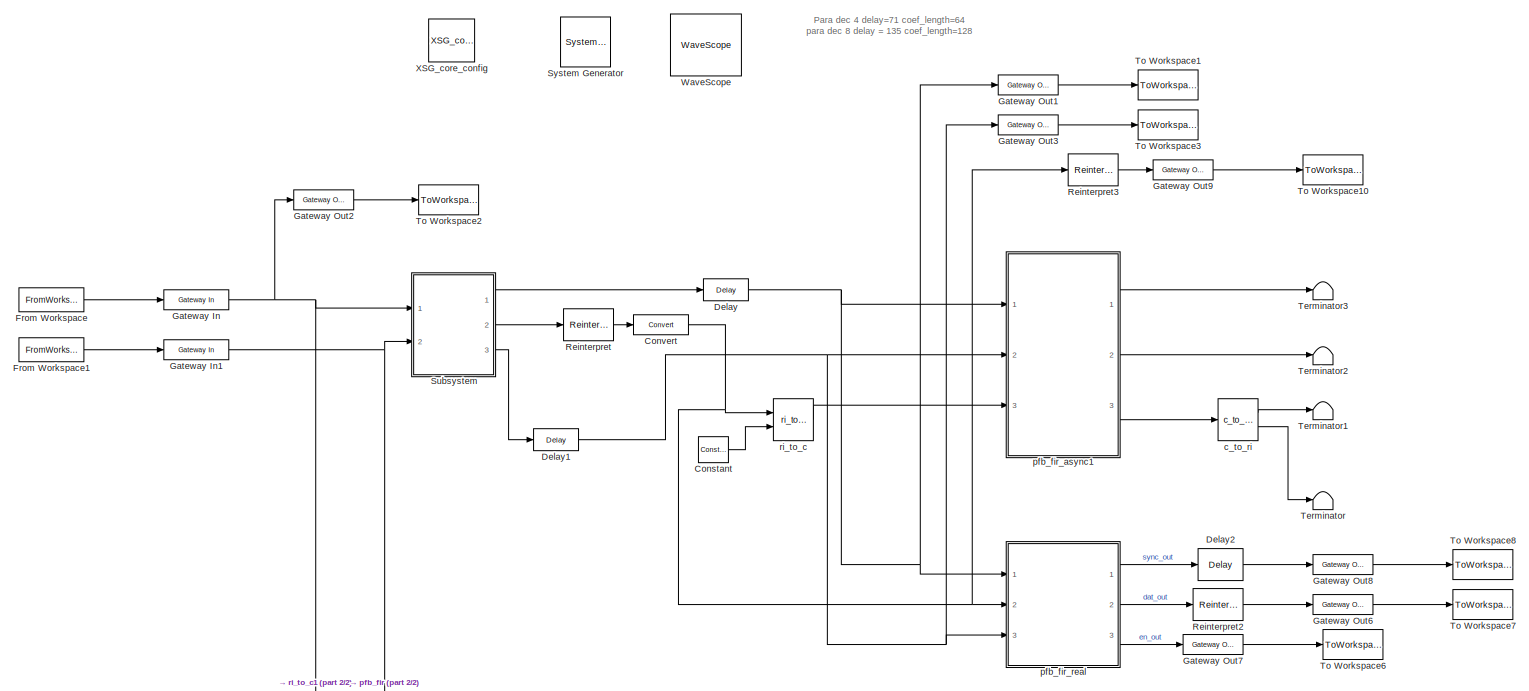
[diagram: root canvas - part 1/2, full width, middle band]
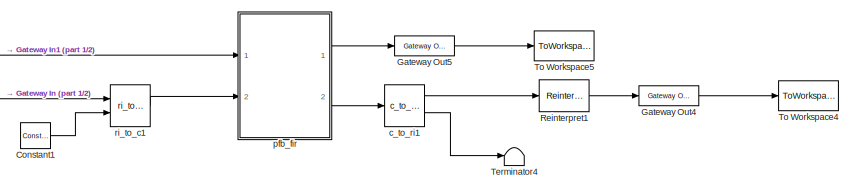
[diagram: root canvas - part 2/2, bottom right region]
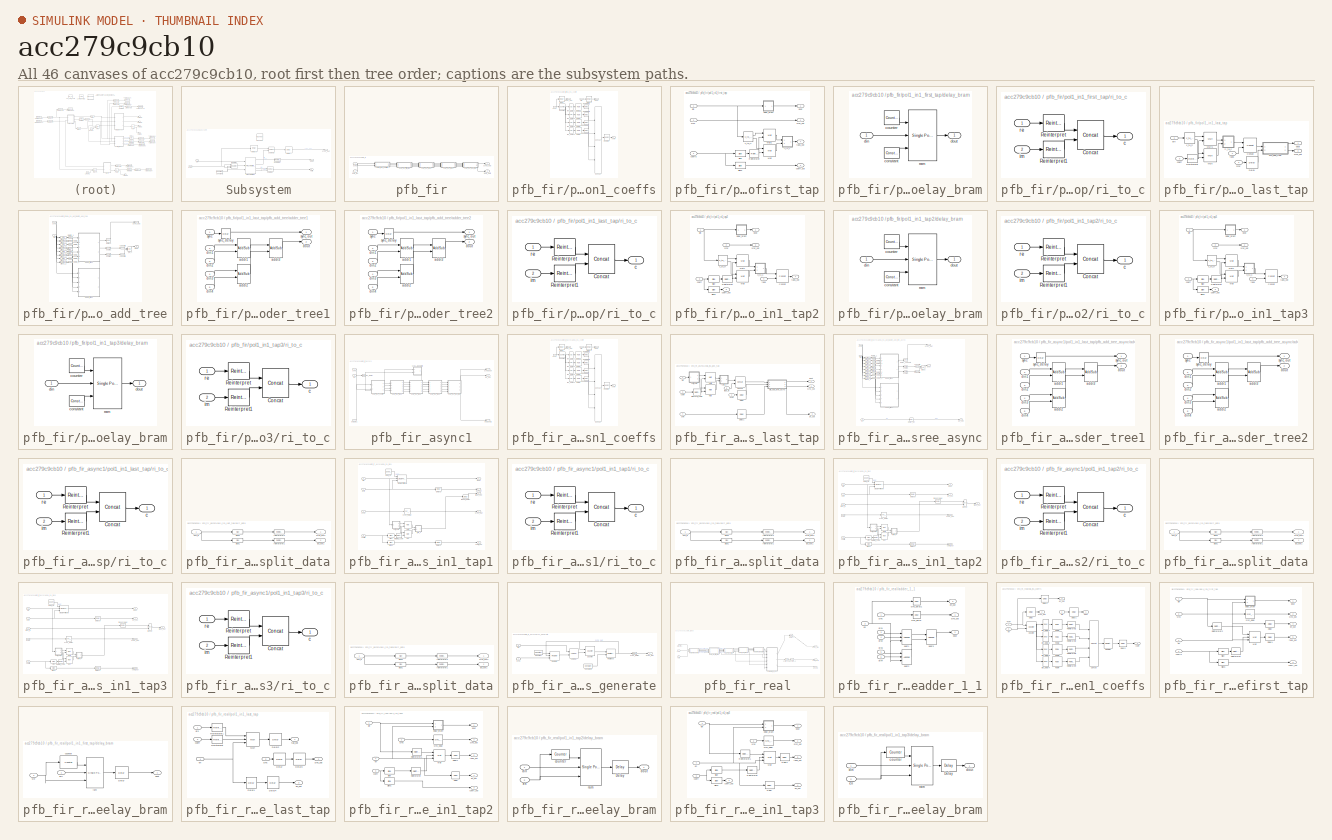
[diagram: thumbnail index - all 46 canvases of the model, root first then tree order]
MODEL slx_acc279c9cb10
KIND model
BLOCK [Reference]  System Generator  REF=xbsIndex_r4/ System Generator
  AttributesFormatString = System\nGenerator
  Impl_file = ISE Defaults
  Ports = []
  SourceBlock = xbsIndex_r4/ System Generator
  SourceType = Xilinx System Generator Block
  Synth_file = XST Defaults
  Tag = genX
  UserDataPersistent = on
  block_type = sysgen
  clock_wrapper = Clock Enables
  core_generation = According to Block Masks
  dbl_ovrd = According to Block Masks
  dcm_input_clock_period = 10
  deprecated_control = off
  directory = ./netlist
  eval_field = 0
  has_advanced_control = 0
  incr_netlist = off
  infoedit = System Generator
  package = fbg676
  part = xc7k325t
  proj_type = Project Navigator
  run_coregen = off
  sg_icon_stat = 50,50,0,0,token,white,0,58c5b5770fe5f7c311f53dbc6e73f0f6,right,,[ ],[ ]
  sg_mask_display = fprintf('','COMMENT: begin icon graphics');\npatch([0 50 50 0 0 ],[0 0 50 50 0 ],[1 1 1 ]);\npatch([1.6375 16.81 27.31 37.81 48.31 27.31 12.1375 1.6375 ],[36.655 36.655 47.155 36.655 47.155 47.155 47.155 36.655 ],[0.933333 0.203922 0.141176 ]);\npatch([12.1375 27.31 16.81 1.6375 12.1375 ],[26.155 26.155 36.655 36.655 26.155 ],[0.698039 0.0313725 0.219608 ]);\npatch([1.6375 16.81 27.31 12.1375 1.6375 ]...<+327ch>
  sggui_pos = -1,-1,-1,-1
  simulink_period = 1
  speed = -3
  synthesis_tool = XST
  sysclk_period = 10
  testbench = off
  trim_vbits = Everywhere in SubSystem
  xilinxfamily = Kintex7
BLOCK [Reference] Constant  REF=xbsIndex_r4/Constant
  Ports = [0, 1]
  SourceBlock = xbsIndex_r4/Constant
  SourceType = Xilinx Constant Block Block
  arith_type = Signed (2's comp)
  bin_pt = 31
  block_type = constant
  carry = CIN
  const = 0
  dbl_ovrd = off
  dsp48_infoedit = The use of this block for DSP48 instructions is deprecated.  Please use the Opmode block.
  equ = P=C
  exp_width = 8
  explicit_period = on
  frac_width = 24
  gui_display_data_type = Fixed-point
  has_advanced_control = 0
  inp1 = P
  inp2 = PCIN>>17
  n_bits = 32
  opr = +
  opselect = C
  period = 1
  preci_type = Single
  sg_icon_stat = 30,26,0,1,white,blue,0,bf4ddd8b,right,,[ ],[ ]
  sg_mask_display = fprintf('','COMMENT: begin icon graphics');\npatch([0 30 30 0 0 ],[0 0 26 26 0 ],[0.77 0.82 0.91 ]);\nplot([0 30 30 0 0 ],[0 0 26 26 0 ]);\npatch([8.325 12.66 15.66 18.66 21.66 15.66 11.325 8.325 ],[16.33 16.33 19.33 16.33 19.33 19.33 19.33 16.33 ],[1 1 1 ]);\npatch([11.325 15.66 12.66 8.325 11.325 ],[13.33 13.33 16.33 16.33 13.33 ],[0.931 0.946 0.973 ]);\npatch([8.325 12.66 15.66 11.325 8.325 ],[10.33...<+317ch>
  sggui_pos = 73,34,337,463
BLOCK [Reference] Constant1  REF=xbsIndex_r4/Constant
  Ports = [0, 1]
  SourceBlock = xbsIndex_r4/Constant
  SourceType = Xilinx Constant Block Block
  arith_type = Signed (2's comp)
  bin_pt = 19
  block_type = constant
  carry = CIN
  const = 0
  dbl_ovrd = off
  dsp48_infoedit = The use of this block for DSP48 instructions is deprecated.  Please use the Opmode block.
  equ = P=C
  exp_width = 8
  explicit_period = on
  frac_width = 24
  gui_display_data_type = Fixed-point
  has_advanced_control = 0
  inp1 = P
  inp2 = PCIN>>17
  n_bits = 20
  opr = +
  opselect = C
  period = 1
  preci_type = Single
  sg_icon_stat = 30,26,0,1,white,blue,0,bf4ddd8b,right,,[ ],[ ]
  sg_mask_display = fprintf('','COMMENT: begin icon graphics');\npatch([0 30 30 0 0 ],[0 0 26 26 0 ],[0.77 0.82 0.91 ]);\nplot([0 30 30 0 0 ],[0 0 26 26 0 ]);\npatch([8.325 12.66 15.66 18.66 21.66 15.66 11.325 8.325 ],[16.33 16.33 19.33 16.33 19.33 19.33 19.33 16.33 ],[1 1 1 ]);\npatch([11.325 15.66 12.66 8.325 11.325 ],[13.33 13.33 16.33 16.33 13.33 ],[0.931 0.946 0.973 ]);\npatch([8.325 12.66 15.66 11.325 8.325 ],[10.33...<+317ch>
  sggui_pos = 63,24,337,463
BLOCK [Reference] Convert  REF=xbsIndex_r4/Convert
  Ports = [1, 1]
  SourceBlock = xbsIndex_r4/Convert
  SourceType = Xilinx Type Converter Block
  arith_type = Unsigned
  bin_pt = 31
  block_type = convert
  block_version = 11.4
  dbl_ovrd = off
  en = off
  exp_bits = 8
  float_type = Single
  fraction_bits = 24
  gui_display_data_type = Fixed-point
  has_advanced_control = 0
  infoedit = Hardware notes: rounding and saturating require hardware resources; truncating and wrapping do not.
  latency = 2
  n_bits = 32
  overflow = Wrap
  pipeline = off
  quantization = Truncate
  sg_icon_stat = 55,20,1,1,white,blue,0,b61d041b,right,,[ ],[ ]
  sg_mask_display = fprintf('','COMMENT: begin icon graphics');\npatch([0 55 55 0 0 ],[0 0 20 20 0 ],[0.77 0.82 0.91 ]);\nplot([0 55 55 0 0 ],[0 0 20 20 0 ]);\npatch([22.55 25.44 27.44 29.44 31.44 27.44 24.55 22.55 ],[12.22 12.22 14.22 12.22 14.22 14.22 14.22 12.22 ],[1 1 1 ]);\npatch([24.55 27.44 25.44 22.55 24.55 ],[10.22 10.22 12.22 12.22 10.22 ],[0.931 0.946 0.973 ]);\npatch([22.55 25.44 27.44 24.55 22.55 ],[8.22 8.22...<+393ch>
  sggui_pos = 53,14,636,624
  xl_area = [0,0,0,0,0,0,0]
  xl_use_area = off
BLOCK [Reference] Delay  REF=xbsIndex_r4/Delay
  Ports = [1, 1]
  SourceBlock = xbsIndex_r4/Delay
  SourceType = Xilinx Delay Block
  block_type = delay
  dbl_ovrd = off
  en = off
  has_advanced_control = 0
  infoedit = Hardware notes: A delay line is a chain, each link of which is an SRL16 followed by a flip-flop.
  infoeditControl = Selection of Reset will increase slice count due to use of real FFs and instead of SRLs
  latency = 2
  reg_retiming = off
  rst = off
  sg_icon_stat = 45,22,1,1,white,blue,0,85ce9542,right,,[ ],[ ]
  sg_mask_display = fprintf('','COMMENT: begin icon graphics');\npatch([0 45 45 0 0 ],[0 0 22 22 0 ],[0.77 0.82 0.91 ]);\nplot([0 45 45 0 0 ],[0 0 22 22 0 ]);\npatch([15.325 19.66 22.66 25.66 28.66 22.66 18.325 15.325 ],[14.33 14.33 17.33 14.33 17.33 17.33 17.33 14.33 ],[1 1 1 ]);\npatch([18.325 22.66 19.66 15.325 18.325 ],[11.33 11.33 14.33 14.33 11.33 ],[0.931 0.946 0.973 ]);\npatch([15.325 19.66 22.66 18.325 15.325 ],[...<+322ch>
  sggui_pos = 73,34,416,361
  xl_area = [0,0,0,0,0,0,0]
  xl_use_area = off
BLOCK [Reference] Delay1  REF=xbsIndex_r4/Delay
  Ports = [1, 1]
  SourceBlock = xbsIndex_r4/Delay
  SourceType = Xilinx Delay Block
  block_type = delay
  dbl_ovrd = off
  en = off
  has_advanced_control = 0
  infoedit = Hardware notes: A delay line is a chain, each link of which is an SRL16 followed by a flip-flop.
  infoeditControl = Selection of Reset will increase slice count due to use of real FFs and instead of SRLs
  latency = 2
  reg_retiming = off
  rst = off
  sg_icon_stat = 45,22,1,1,white,blue,0,85ce9542,right,,[ ],[ ]
  sg_mask_display = fprintf('','COMMENT: begin icon graphics');\npatch([0 45 45 0 0 ],[0 0 22 22 0 ],[0.77 0.82 0.91 ]);\nplot([0 45 45 0 0 ],[0 0 22 22 0 ]);\npatch([15.325 19.66 22.66 25.66 28.66 22.66 18.325 15.325 ],[14.33 14.33 17.33 14.33 17.33 17.33 17.33 14.33 ],[1 1 1 ]);\npatch([18.325 22.66 19.66 15.325 18.325 ],[11.33 11.33 14.33 14.33 11.33 ],[0.931 0.946 0.973 ]);\npatch([15.325 19.66 22.66 18.325 15.325 ],[...<+322ch>
  sggui_pos = 73,34,416,361
  xl_area = [0,0,0,0,0,0,0]
  xl_use_area = off
BLOCK [Reference] Delay2  REF=xbsIndex_r4/Delay
  Ports = [1, 1]
  SourceBlock = xbsIndex_r4/Delay
  SourceType = Xilinx Delay Block
  block_type = delay
  dbl_ovrd = off
  en = off
  has_advanced_control = 0
  infoedit = Hardware notes: A delay line is a chain, each link of which is an SRL16 followed by a flip-flop.
  infoeditControl = Selection of Reset will increase slice count due to use of real FFs and instead of SRLs
  latency = 4
  reg_retiming = off
  rst = off
  sg_icon_stat = 45,32,1,1,white,blue,0,d390c2d8,right,,[ ],[ ]
  sg_mask_display = fprintf('','COMMENT: begin icon graphics');\npatch([0 45 45 0 0 ],[0 0 32 32 0 ],[0.77 0.82 0.91 ]);\nplot([0 45 45 0 0 ],[0 0 32 32 0 ]);\npatch([13.1 18.88 22.88 26.88 30.88 22.88 17.1 13.1 ],[20.44 20.44 24.44 20.44 24.44 24.44 24.44 20.44 ],[1 1 1 ]);\npatch([17.1 22.88 18.88 13.1 17.1 ],[16.44 16.44 20.44 20.44 16.44 ],[0.931 0.946 0.973 ]);\npatch([13.1 18.88 22.88 17.1 13.1 ],[12.44 12.44 16.44 ...<+304ch>
  sggui_pos = 73,34,416,361
  xl_area = [0,0,0,0,0,0,0]
  xl_use_area = off
BLOCK [FromWorkspace] From Workspace
  OutputAfterFinalValue = Holding final value
  SampleTime = 0
  VariableName = data_in
  ZeroCross = on
BLOCK [FromWorkspace] From Workspace1
  OutputAfterFinalValue = Holding final value
  SampleTime = 0
  VariableName = sync
  ZeroCross = on
BLOCK [Reference] Gateway In  REF=xbsIndex_r4/Gateway In
  ADCChannel = '1'
  LOCs = {}
  Ports = [1, 1]
  SourceBlock = xbsIndex_r4/Gateway In
  SourceType = Xilinx Gateway In Block
  UseAsADC = off
  arith_type = Signed  (2's comp)
  bin_pt = 19
  block_type = gatewayin
  dbl_ovrd = off
  exp_width = 8
  frac_width = 24
  gui_display_data_type = Fixed-point
  has_advanced_control = 0
  hdl_port = on
  infoedit = Gateway in block.  Converts inputs of type Simulink integer, single, double and fixed-point to  Xilinx fixed-point or floating-point data type.<br><br>Hardware notes:  In hardware these blocks become top level input ports.
  inherit_from_input = off
  locs_specified = off
  n_bits = 20
  overflow = Saturate
  period = 1
  preci_type = Single
  quantization = Round  (unbiased: +/- Inf)
  sg_icon_stat = 65,20,1,1,white,yellow,1,00d3666e,right,,[ ],[ ]
  sg_mask_display = fprintf('','COMMENT: begin icon graphics');\npatch([0 65 65 0 0 ],[0 0 20 20 0 ],[0.95 0.93 0.65 ]);\nplot([0 65 65 0 0 ],[0 0 20 20 0 ]);\npatch([27.55 30.44 32.44 34.44 36.44 32.44 29.55 27.55 ],[12.22 12.22 14.22 12.22 14.22 14.22 14.22 12.22 ],[1 1 1 ]);\npatch([29.55 32.44 30.44 27.55 29.55 ],[10.22 10.22 12.22 12.22 10.22 ],[0.985 0.979 0.895 ]);\npatch([27.55 30.44 32.44 29.55 27.55 ],[8.22 8.22...<+383ch>
  sggui_pos = 53,14,416,656
  timing_constraint = None
  xl_area = [0,0,0,0,0,0,0]
  xl_use_area = off
BLOCK [Reference] Gateway In1  REF=xbsIndex_r4/Gateway In
  ADCChannel = '1'
  LOCs = {}
  Ports = [1, 1]
  SourceBlock = xbsIndex_r4/Gateway In
  SourceType = Xilinx Gateway In Block
  UseAsADC = off
  arith_type = Boolean
  bin_pt = 14
  block_type = gatewayin
  dbl_ovrd = off
  exp_width = 8
  frac_width = 24
  gui_display_data_type = Boolean
  has_advanced_control = 0
  hdl_port = on
  infoedit = Gateway in block.  Converts inputs of type Simulink integer, single, double and fixed-point to  Xilinx fixed-point or floating-point data type.<br><br>Hardware notes:  In hardware these blocks become top level input ports.
  inherit_from_input = off
  locs_specified = off
  n_bits = 16
  overflow = Saturate
  period = 1
  preci_type = Single
  quantization = Round  (unbiased: +/- Inf)
  sg_icon_stat = 65,20,1,1,white,yellow,1,00d3666e,right,,[ ],[ ]
  sg_mask_display = fprintf('','COMMENT: begin icon graphics');\npatch([0 65 65 0 0 ],[0 0 20 20 0 ],[0.95 0.93 0.65 ]);\nplot([0 65 65 0 0 ],[0 0 20 20 0 ]);\npatch([27.55 30.44 32.44 34.44 36.44 32.44 29.55 27.55 ],[12.22 12.22 14.22 12.22 14.22 14.22 14.22 12.22 ],[1 1 1 ]);\npatch([29.55 32.44 30.44 27.55 29.55 ],[10.22 10.22 12.22 12.22 10.22 ],[0.985 0.979 0.895 ]);\npatch([27.55 30.44 32.44 29.55 27.55 ],[8.22 8.22...<+383ch>
  sggui_pos = 63,24,416,656
  timing_constraint = None
  xl_area = [0,0,0,0,0,0,0]
  xl_use_area = off
BLOCK [Reference] Gateway Out1  REF=xbsIndex_r4/Gateway Out
  DACChannel = '1'
  LOCs = {}
  Ports = [1, 1]
  SourceBlock = xbsIndex_r4/Gateway Out
  SourceType = Xilinx Gateway Out Block
  UseAsDAC = off
  block_type = gatewayout
  has_advanced_control = 0
  hdl_port = on
  infoedit = Gateway out block.  Converts Xilinx fixed-point or floating-point type inputs into ouputs of type Simulink integer, single, double, or fixed-point.<br><br>Hardware notes:  In hardware these blocks become top level output ports or are discarded, depending on how they are configured.  <repeated x9 — deduplicated; at blocks: Gateway Out1, Gateway Out2, Gateway Out3, Gateway Out4, Gateway Out5, Gateway Out6, Gateway Out7, Gateway Out8, Gateway Out9>
  inherit_from_input = on
  locs_specified = off
  sg_icon_stat = 60,20,1,1,white,yellow,1,cc31b7ac,right,,[ ],[ ]
  sg_mask_display = fprintf('','COMMENT: begin icon graphics');\npatch([0 60 60 0 0 ],[0 0 20 20 0 ],[0.95 0.93 0.65 ]);\nplot([0 60 60 0 0 ],[0 0 20 20 0 ]);\npatch([25.55 28.44 30.44 32.44 34.44 30.44 27.55 25.55 ],[12.22 12.22 14.22 12.22 14.22 14.22 14.22 12.22 ],[1 1 1 ]);\npatch([27.55 30.44 28.44 25.55 27.55 ],[10.22 10.22 12.22 12.22 10.22 ],[0.985 0.979 0.895 ]);\npatch([25.55 28.44 30.44 27.55 25.55 ],[8.22 8.22...<+384ch>  <repeated x9 — deduplicated; at blocks: Gateway Out1, Gateway Out2, Gateway Out3, Gateway Out4, Gateway Out5, Gateway Out6, Gateway Out7, Gateway Out8, Gateway Out9>
  sggui_pos = 63,24,400,629
  timing_constraint = None
  xl_area = [0,0,0,0,0,0,0]
  xl_use_area = off
BLOCK [Reference] Gateway Out2  REF=xbsIndex_r4/Gateway Out
  DACChannel = '1'
  LOCs = {}
  Ports = [1, 1]
  SourceBlock = xbsIndex_r4/Gateway Out
  SourceType = Xilinx Gateway Out Block
  UseAsDAC = off
  block_type = gatewayout
  has_advanced_control = 0
  hdl_port = on
  inherit_from_input = on
  locs_specified = off
  sg_icon_stat = 60,20,1,1,white,yellow,1,cc31b7ac,right,,[ ],[ ]
  sggui_pos = 73,34,400,629
  timing_constraint = None
  xl_area = [0,0,0,0,0,0,0]
  xl_use_area = off
BLOCK [Reference] Gateway Out3  REF=xbsIndex_r4/Gateway Out
  DACChannel = '1'
  LOCs = {}
  Ports = [1, 1]
  SourceBlock = xbsIndex_r4/Gateway Out
  SourceType = Xilinx Gateway Out Block
  UseAsDAC = off
  block_type = gatewayout
  has_advanced_control = 0
  hdl_port = on
  inherit_from_input = on
  locs_specified = off
  sg_icon_stat = 60,20,1,1,white,yellow,1,cc31b7ac,right,,[ ],[ ]
  sggui_pos = 63,24,400,629
  timing_constraint = None
  xl_area = [0,0,0,0,0,0,0]
  xl_use_area = off
BLOCK [Reference] Gateway Out4  REF=xbsIndex_r4/Gateway Out
  DACChannel = '1'
  LOCs = {}
  Ports = [1, 1]
  SourceBlock = xbsIndex_r4/Gateway Out
  SourceType = Xilinx Gateway Out Block
  UseAsDAC = off
  block_type = gatewayout
  has_advanced_control = 0
  hdl_port = on
  inherit_from_input = on
  locs_specified = off
  sg_icon_stat = 60,20,1,1,white,yellow,1,cc31b7ac,right,,[ ],[ ]
  sggui_pos = 63,24,400,629
  timing_constraint = None
  xl_area = [0,0,0,0,0,0,0]
  xl_use_area = off
BLOCK [Reference] Gateway Out5  REF=xbsIndex_r4/Gateway Out
  DACChannel = '1'
  LOCs = {}
  Ports = [1, 1]
  SourceBlock = xbsIndex_r4/Gateway Out
  SourceType = Xilinx Gateway Out Block
  UseAsDAC = off
  block_type = gatewayout
  has_advanced_control = 0
  hdl_port = on
  inherit_from_input = on
  locs_specified = off
  sg_icon_stat = 60,20,1,1,white,yellow,1,cc31b7ac,right,,[ ],[ ]
  sggui_pos = 63,24,400,629
  timing_constraint = None
  xl_area = [0,0,0,0,0,0,0]
  xl_use_area = off
BLOCK [Reference] Gateway Out6  REF=xbsIndex_r4/Gateway Out
  DACChannel = '1'
  LOCs = {}
  Ports = [1, 1]
  SourceBlock = xbsIndex_r4/Gateway Out
  SourceType = Xilinx Gateway Out Block
  UseAsDAC = off
  block_type = gatewayout
  has_advanced_control = 0
  hdl_port = on
  inherit_from_input = on
  locs_specified = off
  sg_icon_stat = 60,20,1,1,white,yellow,1,cc31b7ac,right,,[ ],[ ]
  sggui_pos = 73,34,400,629
  timing_constraint = None
  xl_area = [0,0,0,0,0,0,0]
  xl_use_area = off
BLOCK [Reference] Gateway Out7  REF=xbsIndex_r4/Gateway Out
  DACChannel = '1'
  LOCs = {}
  Ports = [1, 1]
  SourceBlock = xbsIndex_r4/Gateway Out
  SourceType = Xilinx Gateway Out Block
  UseAsDAC = off
  block_type = gatewayout
  has_advanced_control = 0
  hdl_port = on
  inherit_from_input = on
  locs_specified = off
  sg_icon_stat = 60,20,1,1,white,yellow,1,cc31b7ac,right,,[ ],[ ]
  sggui_pos = 63,24,400,629
  timing_constraint = None
  xl_area = [0,0,0,0,0,0,0]
  xl_use_area = off
BLOCK [Reference] Gateway Out8  REF=xbsIndex_r4/Gateway Out
  DACChannel = '1'
  LOCs = {}
  Ports = [1, 1]
  SourceBlock = xbsIndex_r4/Gateway Out
  SourceType = Xilinx Gateway Out Block
  UseAsDAC = off
  block_type = gatewayout
  has_advanced_control = 0
  hdl_port = on
  inherit_from_input = on
  locs_specified = off
  sg_icon_stat = 60,20,1,1,white,yellow,1,cc31b7ac,right,,[ ],[ ]
  sggui_pos = 63,24,400,629
  timing_constraint = None
  xl_area = [0,0,0,0,0,0,0]
  xl_use_area = off
BLOCK [Reference] Gateway Out9  REF=xbsIndex_r4/Gateway Out
  DACChannel = '1'
  LOCs = {}
  Ports = [1, 1]
  SourceBlock = xbsIndex_r4/Gateway Out
  SourceType = Xilinx Gateway Out Block
  UseAsDAC = off
  block_type = gatewayout
  has_advanced_control = 0
  hdl_port = on
  inherit_from_input = on
  locs_specified = off
  sg_icon_stat = 60,20,1,1,white,yellow,1,cc31b7ac,right,,[ ],[ ]
  sggui_pos = 63,24,400,629
  timing_constraint = None
  xl_area = [0,0,0,0,0,0,0]
  xl_use_area = off
BLOCK [Reference] Reinterpret  REF=xbsIndex_r4/Reinterpret
  Ports = [1, 1]
  SourceBlock = xbsIndex_r4/Reinterpret
  SourceType = Xilinx Type Reinterpreter Block
  arith_type = Unsigned
  bin_pt = 41
  block_type = reinterpret
  force_arith_type = off
  force_bin_pt = on
  has_advanced_control = 0
  infoedit = Changes signal type without altering the binary representation.   You can change the signal between signed and unsigned, and relocate the binary point.<br><br>Hardware notes: In hardware this block costs nothing.<br><br>Example:  Suppose the input is 6 bits wide, signed, with 2 fractional bits, and the output is forced to unsigned with 0 fractional bits.  Then an input of -2.0 (1110.00 in binary 2...<+58ch>  <repeated x19 — deduplicated; at blocks: Reinterpret, Reinterpret1, Reinterpret2, Reinterpret3, Reinterpret4, Reint2_1, Reint2_2, Reint3_1, Reint3_2, reinterpret1, reinterpret2>
  sg_icon_stat = 50,32,1,1,white,blue,0,6b04d0b0,right,,[ ],[ ]
  sg_mask_display = fprintf('','COMMENT: begin icon graphics');\npatch([0 50 50 0 0 ],[0 0 32 32 0 ],[0.77 0.82 0.91 ]);\nplot([0 50 50 0 0 ],[0 0 32 32 0 ]);\npatch([16.1 21.88 25.88 29.88 33.88 25.88 20.1 16.1 ],[20.44 20.44 24.44 20.44 24.44 24.44 24.44 20.44 ],[1 1 1 ]);\npatch([20.1 25.88 21.88 16.1 20.1 ],[16.44 16.44 20.44 20.44 16.44 ],[0.931 0.946 0.973 ]);\npatch([16.1 21.88 25.88 20.1 16.1 ],[12.44 12.44 16.44 ...<+294ch>  <repeated x5 — deduplicated; at blocks: Reinterpret, Reinterpret1, Reinterpret2, Reinterpret3>
  sggui_pos = 803,120,364,363
BLOCK [Reference] Reinterpret1  REF=xbsIndex_r4/Reinterpret
  Ports = [1, 1]
  SourceBlock = xbsIndex_r4/Reinterpret
  SourceType = Xilinx Type Reinterpreter Block
  arith_type = Unsigned
  bin_pt = 0
  block_type = reinterpret
  force_arith_type = off
  force_bin_pt = on
  has_advanced_control = 0
  sg_icon_stat = 50,32,1,1,white,blue,0,6b04d0b0,right,,[ ],[ ]
  sggui_pos = 63,24,364,363
BLOCK [Reference] Reinterpret2  REF=xbsIndex_r4/Reinterpret
  Ports = [1, 1]
  SourceBlock = xbsIndex_r4/Reinterpret
  SourceType = Xilinx Type Reinterpreter Block
  arith_type = Unsigned
  bin_pt = 0
  block_type = reinterpret
  force_arith_type = off
  force_bin_pt = on
  has_advanced_control = 0
  sg_icon_stat = 50,32,1,1,white,blue,0,6b04d0b0,right,,[ ],[ ]
  sggui_pos = 63,24,364,363
BLOCK [Reference] Reinterpret3  REF=xbsIndex_r4/Reinterpret
  Ports = [1, 1]
  SourceBlock = xbsIndex_r4/Reinterpret
  SourceType = Xilinx Type Reinterpreter Block
  arith_type = Unsigned
  bin_pt = 0
  block_type = reinterpret
  force_arith_type = off
  force_bin_pt = on
  has_advanced_control = 0
  sg_icon_stat = 50,32,1,1,white,blue,0,6b04d0b0,right,,[ ],[ ]
  sggui_pos = 63,24,364,363
BLOCK [SubSystem] Subsystem
  FunctionWithSeparateData = off
  MaskHideContents = off
  MinAlgLoopOccurrences = off
  Opaque = off
  Ports = [2, 3]
  PropExecContextOutsideSubsystem = off
  RTWSystemCode = Auto
  RequestExecContextInheritance = off
BLOCK [Reference] Subsystem/Constant1  REF=xbsIndex_r4/Constant
  Ports = [0, 1]
  SourceBlock = xbsIndex_r4/Constant
  SourceType = Xilinx Constant Block Block
  arith_type = Boolean
  bin_pt = 14
  block_type = constant
  carry = CIN
  const = 0
  dbl_ovrd = off
  dsp48_infoedit = The use of this block for DSP48 instructions is deprecated.  Please use the Opmode block.
  equ = P=C
  exp_width = 8
  explicit_period = on
  frac_width = 24
  gui_display_data_type = Boolean
  has_advanced_control = 0
  inp1 = P
  inp2 = PCIN>>17
  n_bits = 16
  opr = +
  opselect = C
  period = 1
  preci_type = Single
  sg_icon_stat = 55,26,0,1,white,blue,0,bf4ddd8b,right,,[ ],[ ]
  sg_mask_display = fprintf('','COMMENT: begin icon graphics');\npatch([0 55 55 0 0 ],[0 0 26 26 0 ],[0.77 0.82 0.91 ]);\nplot([0 55 55 0 0 ],[0 0 26 26 0 ]);\npatch([20.325 24.66 27.66 30.66 33.66 27.66 23.325 20.325 ],[16.33 16.33 19.33 16.33 19.33 19.33 19.33 16.33 ],[1 1 1 ]);\npatch([23.325 27.66 24.66 20.325 23.325 ],[13.33 13.33 16.33 16.33 13.33 ],[0.931 0.946 0.973 ]);\npatch([20.325 24.66 27.66 23.325 20.325 ],[...<+323ch>
  sggui_pos = 63,24,337,463
BLOCK [Reference] Subsystem/Delay  REF=xbsIndex_r4/Delay
  Ports = [1, 1]
  SourceBlock = xbsIndex_r4/Delay
  SourceType = Xilinx Delay Block
  block_type = delay
  dbl_ovrd = off
  en = off
  has_advanced_control = 0
  infoedit = Hardware notes: A delay line is a chain, each link of which is an SRL16 followed by a flip-flop.
  infoeditControl = Selection of Reset will increase slice count due to use of real FFs and instead of SRLs
  latency = 71
  reg_retiming = off
  rst = off
  sg_icon_stat = 60,56,1,1,white,blue,0,1f2a0db0,right,,[ ],[ ]
  sg_mask_display = fprintf('','COMMENT: begin icon graphics');\npatch([0 60 60 0 0 ],[0 0 56 56 0 ],[0.77 0.82 0.91 ]);\nplot([0 60 60 0 0 ],[0 0 56 56 0 ]);\npatch([12.2 23.76 31.76 39.76 47.76 31.76 20.2 12.2 ],[36.88 36.88 44.88 36.88 44.88 44.88 44.88 36.88 ],[1 1 1 ]);\npatch([20.2 31.76 23.76 12.2 20.2 ],[28.88 28.88 36.88 36.88 28.88 ],[0.931 0.946 0.973 ]);\npatch([12.2 23.76 31.76 20.2 12.2 ],[20.88 20.88 28.88 ...<+309ch>
  sggui_pos = 53,14,416,361
  xl_area = [0,0,0,0,0,0,0]
  xl_use_area = off
BLOCK [Reference] Subsystem/Delay1  REF=xbsIndex_r4/Delay
  Ports = [1, 1]
  SourceBlock = xbsIndex_r4/Delay
  SourceType = Xilinx Delay Block
  block_type = delay
  dbl_ovrd = off
  en = off
  has_advanced_control = 0
  infoedit = Hardware notes: A delay line is a chain, each link of which is an SRL16 followed by a flip-flop.
  infoeditControl = Selection of Reset will increase slice count due to use of real FFs and instead of SRLs
  latency = 1
  reg_retiming = off
  rst = off
  sg_icon_stat = 60,56,1,1,white,blue,0,07b98262,right,,[ ],[ ]
  sg_mask_display = fprintf('','COMMENT: begin icon graphics');\npatch([0 60 60 0 0 ],[0 0 56 56 0 ],[0.77 0.82 0.91 ]);\nplot([0 60 60 0 0 ],[0 0 56 56 0 ]);\npatch([12.2 23.76 31.76 39.76 47.76 31.76 20.2 12.2 ],[36.88 36.88 44.88 36.88 44.88 44.88 44.88 36.88 ],[1 1 1 ]);\npatch([20.2 31.76 23.76 12.2 20.2 ],[28.88 28.88 36.88 36.88 28.88 ],[0.931 0.946 0.973 ]);\npatch([12.2 23.76 31.76 20.2 12.2 ],[20.88 20.88 28.88 ...<+308ch>
  sggui_pos = 53,14,416,361
  xl_area = [0,0,0,0,0,0,0]
  xl_use_area = off
BLOCK [Reference] Subsystem/FDATool  REF=xbsIndex_r4/FDATool
  Ports = []
  SourceBlock = xbsIndex_r4/FDATool
  SourceType = Xilinx FDATool Interface Block
  UserDataPersistent = on
  block_type = fdatool
  has_advanced_control = 0
  infoedit = FDATool
  sg_icon_stat = 54,56,-1,-1,blue,white,0,07734,right,,[ ],[ ]
  sg_mask_display = fprintf('','COMMENT: begin icon graphics');\npatch([0 54 54 0 0 ],[0 0 56 56 0 ],[1 1 1 ]);\nplot([0 54 54 0 0 ],[0 0 56 56 0 ]);\npatch([11.425 21.54 28.54 35.54 42.54 28.54 18.425 11.425 ],[35.77 35.77 42.77 35.77 42.77 42.77 42.77 35.77 ],[0.839 0.874 0.937 ]);\npatch([18.425 28.54 21.54 11.425 18.425 ],[28.77 28.77 35.77 35.77 28.77 ],[0.77 0.82 0.91 ]);\npatch([11.425 21.54 28.54 18.425 11.425 ],[...<+308ch>
  sggui_pos = -1,-1,-1,-1
BLOCK [Reference] Subsystem/FIR Compiler 5.0   REF=xbsIndex_r4/FIR Compiler 5.0 
  Ports = [3, 4]
  SourceBlock = xbsIndex_r4/FIR Compiler 5.0
  SourceType = Xilinx FIR Compiler 5.0 Block
  allow_rounding_approximation = off
  bestprecision = on
  block_type = fir_compiler_v5_0
  chan_in_adv = 0
  coefficient_buffer_type = Automatic
  coefficient_fractional_bits = 21
  coefficient_reload = off
  coefficient_sets = 1
  coefficient_sign = Signed
  coefficient_structure = Non_Symmetric
  coefficient_width = 20
  coefficientvector = xlfda_numerator('FDATool')
  columnconfig = '31'
  data_buffer_type = Automatic
  data_fractional_bits = 0
  data_sign = Signed
  data_width = 16
  decimation_rate = 4
  dsptool_ready = true
  filter_architecture = Transpose_Multiply_Accumulate
  filter_selection = 1
  filter_type = Decimation
  gui_behaviour = Sysgen
  hardwareoversamplingrate = 1
  has_advanced_control = 0
  has_ce = off
  has_data_valid = on
  has_nd = on
  has_sclr = on
  input_buffer_type = Automatic
  inter_column_pipe_length = 4
  interpolation_rate = 1
  ip_name = FIR Compiler
  ip_version = 5.0
  ip_wrap_arbitrary_binary_point = true
  ipcore_fpga_part = xlipgetpartsetting(gcb, {'virtex4', 'xc4vsx35', '-10', 'ff668'})
  ipcore_usecache = true
  ipcore_useipmodelcache = true
  ipcore_xco_need_fpga_part = true
  multi_column_support = Disabled
  number_channels = 1
  number_paths = 1
  optimization_goal = Area
  output_buffer_type = Automatic
  output_rounding_mode = Full_Precision
  output_width = 39
  passband_max = 0.5
  passband_min = 0.0
  port_translation_map = { 'ce' => 'en', 'sclr' => 'rst' }
  preference_for_other_storage = Automatic
  quantization = Quantize_Only
  rate_change_type = Integer
  ratespecification = Sample_Period
  registered_output = true
  run_core_at_system_period = true
  sampleperiod = 1
  sg_icon_stat = 95,145,3,4,white,blue,0,5f02c517,right,,[ ],[ ]
  sg_mask_display = fprintf('','COMMENT: begin icon graphics');\npatch([0 95 95 0 0 ],[0 0 145 145 0 ],[0.77 0.82 0.91 ]);\nplot([0 95 95 0 0 ],[0 0 145 145 0 ]);\npatch([18.075 36.86 49.86 62.86 75.86 49.86 31.075 18.075 ],[86.43 86.43 99.43 86.43 99.43 99.43 99.43 86.43 ],[1 1 1 ]);\npatch([31.075 49.86 36.86 18.075 31.075 ],[73.43 73.43 86.43 86.43 73.43 ],[0.931 0.946 0.973 ]);\npatch([18.075 36.86 49.86 31.075 18.075...<+607ch>
  sggui_pos = 53,14,448,600
  stopband_max = 1.0
  stopband_min = 0.5
  structural_sim = false
  usechan_in_adv = off
  wrapper_available = true
  xl_area = [0,0,0,0,0,0,0]
  xl_use_area = off
  zero_pack_factor = 1
BLOCK [Reference] Subsystem/Logical  REF=xbsIndex_r4/Logical
  Ports = [2, 1]
  SourceBlock = xbsIndex_r4/Logical
  SourceType = Xilinx Logical Block Block
  align_bp = on
  arith_type = Unsigned
  bin_pt = 0
  block_type = logical
  dbl_ovrd = off
  en = off
  has_advanced_control = 0
  inputs = 2
  latency = 0
  logical_function = AND
  n_bits = 16
  precision = Full
  sg_icon_stat = 50,47,2,1,white,blue,0,83a4b621,right,,[ ],[ ]
  sg_mask_display = fprintf('','COMMENT: begin icon graphics');\npatch([0 50 50 0 0 ],[0 0 47 47 0 ],[0.77 0.82 0.91 ]);\nplot([0 50 50 0 0 ],[0 0 47 47 0 ]);\npatch([11.65 20.32 26.32 32.32 38.32 26.32 17.65 11.65 ],[29.66 29.66 35.66 29.66 35.66 35.66 35.66 29.66 ],[1 1 1 ]);\npatch([17.65 26.32 20.32 11.65 17.65 ],[23.66 23.66 29.66 29.66 23.66 ],[0.931 0.946 0.973 ]);\npatch([11.65 20.32 26.32 17.65 11.65 ],[17.66 17....<+303ch>
  sggui_pos = -1,-1,-1,-1
  xl_area = [0,0,0,0,0,0,0]
  xl_use_area = off
BLOCK [Reference] Subsystem/Logical1  REF=xbsIndex_r4/Logical
  Ports = [2, 1]
  SourceBlock = xbsIndex_r4/Logical
  SourceType = Xilinx Logical Block Block
  align_bp = on
  arith_type = Unsigned
  bin_pt = 0
  block_type = logical
  dbl_ovrd = off
  en = off
  has_advanced_control = 0
  inputs = 2
  latency = 0
  logical_function = AND
  n_bits = 16
  precision = Full
  sg_icon_stat = 50,47,2,1,white,blue,0,83a4b621,right,,[ ],[ ]
  sg_mask_display = fprintf('','COMMENT: begin icon graphics');\npatch([0 50 50 0 0 ],[0 0 47 47 0 ],[0.77 0.82 0.91 ]);\nplot([0 50 50 0 0 ],[0 0 47 47 0 ]);\npatch([11.65 20.32 26.32 32.32 38.32 26.32 17.65 11.65 ],[29.66 29.66 35.66 29.66 35.66 35.66 35.66 29.66 ],[1 1 1 ]);\npatch([17.65 26.32 20.32 11.65 17.65 ],[23.66 23.66 29.66 29.66 23.66 ],[0.931 0.946 0.973 ]);\npatch([11.65 20.32 26.32 17.65 11.65 ],[17.66 17....<+303ch>
  sggui_pos = -1,-1,-1,-1
  xl_area = [0,0,0,0,0,0,0]
  xl_use_area = off
BLOCK [Reference] Subsystem/Register  REF=xbsIndex_r4/Register
  Ports = [3, 1]
  SourceBlock = xbsIndex_r4/Register
  SourceType = Xilinx Register Block
  block_type = register
  dbl_ovrd = off
  en = on
  has_advanced_control = 0
  init = 0
  rst = on
  sg_icon_stat = 55,42,3,1,white,blue,0,30546de1,right,,[ ],[ ]
  sg_mask_display = fprintf('','COMMENT: begin icon graphics');\npatch([0 55 55 0 0 ],[0 0 42 42 0 ],[0.77 0.82 0.91 ]);\nplot([0 55 55 0 0 ],[0 0 42 42 0 ]);\npatch([13.65 22.32 28.32 34.32 40.32 28.32 19.65 13.65 ],[27.66 27.66 33.66 27.66 33.66 33.66 33.66 27.66 ],[1 1 1 ]);\npatch([19.65 28.32 22.32 13.65 19.65 ],[21.66 21.66 27.66 27.66 21.66 ],[0.931 0.946 0.973 ]);\npatch([13.65 22.32 28.32 19.65 13.65 ],[15.66 15....<+486ch>
  sggui_pos = 73,34,416,203
  xl_area = [0,0,0,0,0,0,0]
  xl_use_area = off
BLOCK [Reference] Subsystem/Reinterpret  REF=xbsIndex_r4/Reinterpret
  Ports = [1, 1]
  SourceBlock = xbsIndex_r4/Reinterpret
  SourceType = Xilinx Type Reinterpreter Block
  arith_type = Unsigned
  bin_pt = 38
  block_type = reinterpret
  force_arith_type = off
  force_bin_pt = on
  has_advanced_control = 0
  sg_icon_stat = 50,32,1,1,white,blue,0,6b04d0b0,right,,[ ],[ ]
  sggui_pos = 636,62,364,363
BLOCK [Inport] Subsystem/din
  IconDisplay = Port number
BLOCK [Outport] Subsystem/dout
  IconDisplay = Port number
  Port = 2
BLOCK [Inport] Subsystem/sync
  IconDisplay = Port number
  Port = 2
BLOCK [Outport] Subsystem/sync_out
  IconDisplay = Port number
BLOCK [Outport] Subsystem/valid
  IconDisplay = Port number
  Port = 3
BLOCK [Terminator] Terminator
BLOCK [Terminator] Terminator1
BLOCK [Terminator] Terminator2
BLOCK [Terminator] Terminator3
BLOCK [Terminator] Terminator4
BLOCK [ToWorkspace] To Workspace1
  MaxDataPoints = inf
  Ports = [1]
  SampleTime = -1
  SaveFormat = Timeseries
  VariableName = sync_dec
BLOCK [ToWorkspace] To Workspace10
  MaxDataPoints = inf
  Ports = [1]
  SampleTime = -1
  SaveFormat = Timeseries
  VariableName = data_dec
BLOCK [ToWorkspace] To Workspace2
  MaxDataPoints = inf
  Ports = [1]
  SampleTime = -1
  SaveFormat = Timeseries
  VariableName = dat_in
BLOCK [ToWorkspace] To Workspace3
  MaxDataPoints = inf
  Ports = [1]
  SampleTime = -1
  SaveFormat = Timeseries
  VariableName = valid_dec
BLOCK [ToWorkspace] To Workspace4
  MaxDataPoints = inf
  Ports = [1]
  SampleTime = -1
  SaveFormat = Timeseries
  VariableName = data_normal
BLOCK [ToWorkspace] To Workspace5
  MaxDataPoints = inf
  Ports = [1]
  SampleTime = -1
  SaveFormat = Timeseries
  VariableName = sync_norm
BLOCK [ToWorkspace] To Workspace6
  MaxDataPoints = inf
  Ports = [1]
  SampleTime = -1
  SaveFormat = Timeseries
  VariableName = valid
BLOCK [ToWorkspace] To Workspace7
  MaxDataPoints = inf
  Ports = [1]
  SampleTime = -1
  SaveFormat = Timeseries
  VariableName = dat_out
BLOCK [ToWorkspace] To Workspace8
  MaxDataPoints = inf
  Ports = [1]
  SampleTime = -1
  SaveFormat = Timeseries
  VariableName = sync_pfb
BLOCK [Reference] WaveScope  REF=xbsIndex_r4/WaveScope
  Ports = []
  SourceBlock = xbsIndex_r4/WaveScope
  SourceType = Xilinx WaveScope Block
  UserDataPersistent = on
  block_type = wavescope
  has_advanced_control = 0
  infoedit = WaveScope
  sg_icon_stat = 71,62,-1,-1,blue,white,0,07734,right,,[ ],[ ]
  sg_mask_display = fprintf('','COMMENT: begin icon graphics');\npatch([0 71 71 0 0 ],[0 0 62 62 0 ],[1 1 1 ]);\nplot([0 71 71 0 0 ],[0 0 62 62 0 ]);\npatch([17.2 28.76 36.76 44.76 52.76 36.76 25.2 17.2 ],[39.88 39.88 47.88 39.88 47.88 47.88 47.88 39.88 ],[0.839 0.874 0.937 ]);\npatch([25.2 36.76 28.76 17.2 25.2 ],[31.88 31.88 39.88 39.88 31.88 ],[0.77 0.82 0.91 ]);\npatch([17.2 28.76 36.76 25.2 17.2 ],[23.88 23.88 31.88 ...<+536ch>
  sggui_pos = -1,-1,-1,-1
BLOCK [Reference] XSG_core_config  REF=xps_library/XSG_core_config  (lib defined in mdl_00b5cec29cd0, mdl_02ab6ecaa3d1, +5 more)
  MKDIG_clk_src = sys_clk
  Ports = []
  ROACH2_clk_src = sys_clk
  ROACH_clk_src = sys_clk
  SourceBlock = xps_library/XSG_core_config
  SourceType = xsg core config
  Tag = xps:xsg
  clk_rate = 135
  clk_src = sys_clk
  hw_sys = ROACH2:sx475t
  sample_period = 1
  synthesis_tool = XST
BLOCK [Reference] c_to_ri  REF=casper_library_misc/c_to_ri  (lib defined in mdl_357510c33b49, mdl_57b5f564ae26, +4 more)
  AttributesFormatString = 48_47 r/i
  Ports = [1, 2]
  SourceBlock = casper_library_misc/c_to_ri
  SourceType = c_to_ri
  UserDataPersistent = on
  bin_pt = 47
  n_bits = 48
BLOCK [Reference] c_to_ri1  REF=casper_library_misc/c_to_ri  (lib defined in mdl_357510c33b49, mdl_57b5f564ae26, +4 more)
  AttributesFormatString = 48_47 r/i
  Ports = [1, 2]
  SourceBlock = casper_library_misc/c_to_ri
  SourceType = c_to_ri
  UserDataPersistent = on
  bin_pt = 47
  n_bits = 48
BLOCK [SubSystem] pfb_fir
  AncestorBlock = casper_library_pfbs/pfb_fir
  AttributesFormatString = taps=4, add_latency=1\nmax scale 0.596
  FunctionWithSeparateData = off
  MaskHideContents = off
  MinAlgLoopOccurrences = off
  Opaque = off
  Ports = [2, 2]
  PropExecContextOutsideSubsystem = off
  RTWSystemCode = Auto
  RequestExecContextInheritance = off
  Tag = casper:pfb_fir
  UserDataPersistent = on
BLOCK [Inport] pfb_fir/pol1_in1
  IconDisplay = Port number
  Port = 2
BLOCK [SubSystem] pfb_fir/pol1_in1_coeffs
  AncestorBlock = casper_library_pfbs/pfb_coeff_gen
  AttributesFormatString = PFBSize=8, n_inputs=0,\ntaps=4, input=0
  FunctionWithSeparateData = off
  MaskHideContents = off
  MinAlgLoopOccurrences = off
  Opaque = off
  Ports = [2, 3]
  PropExecContextOutsideSubsystem = off
  RTWSystemCode = Auto
  RequestExecContextInheritance = off
  UserDataPersistent = on
BLOCK [Reference] pfb_fir/pol1_in1_coeffs/Concat  REF=xbsIndex_r4/Concat
  Ports = [4, 1]
  SourceBlock = xbsIndex_r4/Concat
  SourceType = Xilinx Bus Concatenator Block
  block_type = concat
  block_version = 9.1.01
  dbl_ovrd = off
  has_advanced_control = 0
  infoedit = Concatenates two or more inputs.  Output will be cast to an unsigned value with the binary point at zero.
  num_inputs = 4
  sg_icon_stat = 55,547,4,1,white,blue,0,47d3d416,right,,[ ],[ ]
  sg_mask_display = fprintf('','COMMENT: begin icon graphics');\npatch([0 55 55 0 0 ],[0 0 547 547 0 ],[0.77 0.82 0.91 ]);\nplot([0 55 55 0 0 ],[0 0 547 547 0 ]);\npatch([11.425 21.54 28.54 35.54 42.54 28.54 18.425 11.425 ],[280.77 280.77 287.77 280.77 287.77 287.77 287.77 280.77 ],[1 1 1 ]);\npatch([18.425 28.54 21.54 11.425 18.425 ],[273.77 273.77 280.77 280.77 273.77 ],[0.931 0.946 0.973 ]);\npatch([11.425 21.54 28.54 ...<+457ch>
  sggui_pos = -1,-1,-1,-1
BLOCK [Reference] pfb_fir/pol1_in1_coeffs/Counter  REF=xbsIndex_r4/Counter
  Ports = [1, 1]
  SourceBlock = xbsIndex_r4/Counter
  SourceType = Xilinx Counter Block
  arith_type = Unsigned
  bin_pt = 0
  block_type = counter
  block_version = 9.1.01
  cnt_by_val = 1
  cnt_to = Inf
  cnt_type = Free Running
  dbl_ovrd = off
  en = off
  explicit_period = on
  has_advanced_control = 0
  implementation = Fabric
  infoedit = Hardware notes: Free running counters are the least expensive in hardware.  A count limited counter is implemented by combining a counter with a comparator.
  load_pin = off
  n_bits = 8
  operation = Up
  period = 1
  rst = on
  sg_icon_stat = 50,50,1,1,white,blue,0,803eba70,right,,[ ],[ ]
  sg_mask_display = fprintf('','COMMENT: begin icon graphics');\npatch([0 50 50 0 0 ],[0 0 50 50 0 ],[0.77 0.82 0.91 ]);\nplot([0 50 50 0 0 ],[0 0 50 50 0 ]);\npatch([9.425 19.54 26.54 33.54 40.54 26.54 16.425 9.425 ],[32.77 32.77 39.77 32.77 39.77 39.77 39.77 32.77 ],[1 1 1 ]);\npatch([16.425 26.54 19.54 9.425 16.425 ],[25.77 25.77 32.77 32.77 25.77 ],[0.931 0.946 0.973 ]);\npatch([9.425 19.54 26.54 16.425 9.425 ],[18.77...<+383ch>
  sggui_pos = -1,-1,-1,-1
  start_count = 0
  use_behavioral_HDL = on
  use_rpm = on
  xl_area = [0, 0, 0, 0, 0, 0, 0]
  xl_use_area = off
BLOCK [Reference] pfb_fir/pol1_in1_coeffs/Delay  REF=xbsIndex_r4/Delay
  Ports = [1, 1]
  SourceBlock = xbsIndex_r4/Delay
  SourceType = Xilinx Delay Block
  block_type = delay
  block_version = 9.1.01
  dbl_ovrd = off
  en = off
  has_advanced_control = 0
  infoedit = Hardware notes: A delay line is a chain, each link of which is an SRL16 followed by a flip-flop.
  infoeditControl = Selection of Reset will increase slice count due to use of real FFs and instead of SRLs
  latency = bram_latency+1+fan_latency
  reg_retiming = on
  rst = off
  sg_icon_stat = 45,46,1,1,white,blue,0,d390c2d8,right,,[ ],[ ]
  sg_mask_display = fprintf('','COMMENT: begin icon graphics');\npatch([0 45 45 0 0 ],[0 0 46 46 0 ],[0.77 0.82 0.91 ]);\nplot([0 45 45 0 0 ],[0 0 46 46 0 ]);\npatch([8.65 17.32 23.32 29.32 35.32 23.32 14.65 8.65 ],[29.66 29.66 35.66 29.66 35.66 35.66 35.66 29.66 ],[1 1 1 ]);\npatch([14.65 23.32 17.32 8.65 14.65 ],[23.66 23.66 29.66 29.66 23.66 ],[0.931 0.946 0.973 ]);\npatch([8.65 17.32 23.32 14.65 8.65 ],[17.66 17.66 23...<+314ch>  <repeated x11 — deduplicated; at blocks: Delay, Delay1, Delay2, Delay3, Delay4>
  sggui_pos = 1257,74,419,315
  xl_area = [0, 0, 0, 0, 0, 0, 0]
  xl_use_area = off
BLOCK [Reference] pfb_fir/pol1_in1_coeffs/Delay1  REF=xbsIndex_r4/Delay
  Ports = [1, 1]
  SourceBlock = xbsIndex_r4/Delay
  SourceType = Xilinx Delay Block
  block_type = delay
  block_version = 9.1.01
  dbl_ovrd = off
  en = off
  has_advanced_control = 0
  infoedit = Hardware notes: A delay line is a chain, each link of which is an SRL16 followed by a flip-flop.
  infoeditControl = Selection of Reset will increase slice count due to use of real FFs and instead of SRLs
  latency = bram_latency+1+fan_latency
  reg_retiming = on
  rst = off
  sg_icon_stat = 45,46,1,1,white,blue,0,d390c2d8,right,,[ ],[ ]
  sggui_pos = 20,44,419,315
  xl_area = [0, 0, 0, 0, 0, 0, 0]
  xl_use_area = off
BLOCK [Reference] pfb_fir/pol1_in1_coeffs/ROM1  REF=xbsIndex_r4/ROM
  Ports = [1, 1]
  SourceBlock = xbsIndex_r4/ROM
  SourceType = Xilinx Single Port Read-Only Memory Block
  arith_type = Signed  (2's comp)
  bin_pt = 19
  block_type = sprom
  block_version = 9.1.01
  dbl_ovrd = off
  depth = 256
  distributed_mem = Block RAM
  en = off
  exp_width = 8
  frac_width = 24
  gui_display_data_type = Fixed-point
  has_advanced_control = 0
  initVector = pfb_coeff_gen_calc(8, 4,'hamming',0, 0,1,1,false)
  init_reg = 0
  latency = bram_latency
  n_bits = 20
  optimize = Area
  preci_type = Single
  rst = off
  sg_icon_stat = 50,52,1,1,white,blue,0,13b85882,right,,[ ],[ ]
  sg_mask_display = fprintf('','COMMENT: begin icon graphics');\npatch([0 50 50 0 0 ],[0 0 52 52 0 ],[0.77 0.82 0.91 ]);\nplot([0 50 50 0 0 ],[0 0 52 52 0 ]);\npatch([9.425 19.54 26.54 33.54 40.54 26.54 16.425 9.425 ],[33.77 33.77 40.77 33.77 40.77 40.77 40.77 33.77 ],[1 1 1 ]);\npatch([16.425 26.54 19.54 9.425 16.425 ],[26.77 26.77 33.77 33.77 26.77 ],[0.931 0.946 0.973 ]);\npatch([9.425 19.54 26.54 16.425 9.425 ],[19.77...<+370ch>  <repeated x12 — deduplicated; at blocks: ROM1, ROM2, ROM3, ROM4>
  sggui_pos = 20,44,419,340
  use_rpm = on
  xl_area = [0, 0, 0, 0, 0, 0, 0]
  xl_use_area = off
BLOCK [Reference] pfb_fir/pol1_in1_coeffs/ROM2  REF=xbsIndex_r4/ROM
  Ports = [1, 1]
  SourceBlock = xbsIndex_r4/ROM
  SourceType = Xilinx Single Port Read-Only Memory Block
  arith_type = Signed  (2's comp)
  bin_pt = 19
  block_type = sprom
  block_version = 9.1.01
  dbl_ovrd = off
  depth = 256
  distributed_mem = Block RAM
  en = off
  exp_width = 8
  frac_width = 24
  gui_display_data_type = Fixed-point
  has_advanced_control = 0
  initVector = pfb_coeff_gen_calc(8, 4,'hamming',0, 0,1,2,false)
  init_reg = 0
  latency = bram_latency
  n_bits = 20
  optimize = Area
  preci_type = Single
  rst = off
  sg_icon_stat = 50,52,1,1,white,blue,0,13b85882,right,,[ ],[ ]
  sggui_pos = 20,44,419,340
  use_rpm = on
  xl_area = [0, 0, 0, 0, 0, 0, 0]
  xl_use_area = off
BLOCK [Reference] pfb_fir/pol1_in1_coeffs/ROM3  REF=xbsIndex_r4/ROM
  Ports = [1, 1]
  SourceBlock = xbsIndex_r4/ROM
  SourceType = Xilinx Single Port Read-Only Memory Block
  arith_type = Signed  (2's comp)
  bin_pt = 19
  block_type = sprom
  dbl_ovrd = off
  depth = 256
  distributed_mem = Block RAM
  en = off
  exp_width = 8
  frac_width = 24
  gui_display_data_type = Fixed-point
  has_advanced_control = 0
  initVector = pfb_coeff_gen_calc(8, 4,'hamming',0, 0,1,3,false)
  init_reg = 0
  latency = bram_latency
  n_bits = 20
  optimize = Area
  preci_type = Single
  rst = off
  sg_icon_stat = 50,52,1,1,white,blue,0,13b85882,right,,[ ],[ ]
  sggui_pos = -1,-1,-1,-1
  use_rpm = on
  xl_area = [0,0,0,0,0,0,0]
  xl_use_area = off
BLOCK [Reference] pfb_fir/pol1_in1_coeffs/ROM4  REF=xbsIndex_r4/ROM
  Ports = [1, 1]
  SourceBlock = xbsIndex_r4/ROM
  SourceType = Xilinx Single Port Read-Only Memory Block
  arith_type = Signed  (2's comp)
  bin_pt = 19
  block_type = sprom
  dbl_ovrd = off
  depth = 256
  distributed_mem = Block RAM
  en = off
  exp_width = 8
  frac_width = 24
  gui_display_data_type = Fixed-point
  has_advanced_control = 0
  initVector = pfb_coeff_gen_calc(8, 4,'hamming',0, 0,1,4,false)
  init_reg = 0
  latency = bram_latency
  n_bits = 20
  optimize = Area
  preci_type = Single
  rst = off
  sg_icon_stat = 50,52,1,1,white,blue,0,13b85882,right,,[ ],[ ]
  sggui_pos = -1,-1,-1,-1
  use_rpm = on
  xl_area = [0,0,0,0,0,0,0]
  xl_use_area = off
BLOCK [Reference] pfb_fir/pol1_in1_coeffs/Register  REF=xbsIndex_r4/Register
  Ports = [1, 1]
  SourceBlock = xbsIndex_r4/Register
  SourceType = Xilinx Register Block
  block_type = register
  block_version = 9.1.01
  dbl_ovrd = off
  en = off
  has_advanced_control = 0
  init = 0
  rst = off
  sg_icon_stat = 45,50,1,1,white,blue,0,c80657c5,right,,[ ],[ ]
  sg_mask_display = fprintf('','COMMENT: begin icon graphics');\npatch([0 45 45 0 0 ],[0 0 50 50 0 ],[0.77 0.82 0.91 ]);\nplot([0 45 45 0 0 ],[0 0 50 50 0 ]);\npatch([8.65 17.32 23.32 29.32 35.32 23.32 14.65 8.65 ],[31.66 31.66 37.66 31.66 37.66 37.66 37.66 31.66 ],[1 1 1 ]);\npatch([14.65 23.32 17.32 8.65 14.65 ],[25.66 25.66 31.66 31.66 25.66 ],[0.931 0.946 0.973 ]);\npatch([8.65 17.32 23.32 14.65 8.65 ],[19.66 19.66 25...<+397ch>  <repeated x3 — deduplicated; at blocks: Register>
  sggui_pos = 1700,25,419,209
  xl_area = [0, 0, 0, 0, 0, 0, 0]
  xl_use_area = off
BLOCK [Reference] pfb_fir/pol1_in1_coeffs/Reinterpret1  REF=xbsIndex_r4/Reinterpret
  Ports = [1, 1]
  SourceBlock = xbsIndex_r4/Reinterpret
  SourceType = Xilinx Type Reinterpreter Block
  arith_type = Unsigned
  bin_pt = 0
  block_type = reinterpret
  block_version = 9.1.01
  force_arith_type = on
  force_bin_pt = on
  has_advanced_control = 0
  infoedit = Changes signal type without altering the binary representation.   You can changed the signal between signed and unsigned, and relocate the binary point.<P><P>Hardware notes: In hardware this block costs nothing.<P><P>Example:  Suppose the input is 6 bits wide, signed, with 2 fractional bits, and the output is forced to unsigned with 0 fractional bits.  Then an input of -2.0 (1110.00 in binary 2's ...<+55ch>  <repeated x38 — deduplicated; at blocks: Reinterpret1, Reinterpret2, Reinterpret, Reinterpret3, Reinterpret4>
  sg_icon_stat = 40,32,1,1,white,blue,0,6b04d0b0,right,,[ ],[ ]
  sg_mask_display = fprintf('','COMMENT: begin icon graphics');\npatch([0 40 40 0 0 ],[0 0 32 32 0 ],[0.77 0.82 0.91 ]);\nplot([0 40 40 0 0 ],[0 0 32 32 0 ]);\npatch([11.1 16.88 20.88 24.88 28.88 20.88 15.1 11.1 ],[20.44 20.44 24.44 20.44 24.44 24.44 24.44 20.44 ],[1 1 1 ]);\npatch([15.1 20.88 16.88 11.1 15.1 ],[16.44 16.44 20.44 20.44 16.44 ],[0.931 0.946 0.973 ]);\npatch([11.1 16.88 20.88 15.1 11.1 ],[12.44 12.44 16.44 ...<+294ch>  <repeated x44 — deduplicated; at blocks: Reinterpret1, Reinterpret2, Reinterpret3, Reinterpret4, Reinterpret, interpret_coeff>
  sggui_pos = -1,-1,-1,-1
BLOCK [Reference] pfb_fir/pol1_in1_coeffs/Reinterpret2  REF=xbsIndex_r4/Reinterpret
  Ports = [1, 1]
  SourceBlock = xbsIndex_r4/Reinterpret
  SourceType = Xilinx Type Reinterpreter Block
  arith_type = Unsigned
  bin_pt = 0
  block_type = reinterpret
  block_version = 9.1.01
  force_arith_type = on
  force_bin_pt = on
  has_advanced_control = 0
  sg_icon_stat = 40,32,1,1,white,blue,0,6b04d0b0,right,,[ ],[ ]
  sggui_pos = -1,-1,-1,-1
BLOCK [Reference] pfb_fir/pol1_in1_coeffs/Reinterpret3  REF=xbsIndex_r4/Reinterpret
  Ports = [1, 1]
  SourceBlock = xbsIndex_r4/Reinterpret
  SourceType = Xilinx Type Reinterpreter Block
  arith_type = Unsigned
  bin_pt = 0
  block_type = reinterpret
  force_arith_type = on
  force_bin_pt = on
  has_advanced_control = 0
  sg_icon_stat = 40,32,1,1,white,blue,0,6b04d0b0,right,,[ ],[ ]
  sggui_pos = -1,-1,-1,-1
BLOCK [Reference] pfb_fir/pol1_in1_coeffs/Reinterpret4  REF=xbsIndex_r4/Reinterpret
  Ports = [1, 1]
  SourceBlock = xbsIndex_r4/Reinterpret
  SourceType = Xilinx Type Reinterpreter Block
  arith_type = Unsigned
  bin_pt = 0
  block_type = reinterpret
  force_arith_type = on
  force_bin_pt = on
  has_advanced_control = 0
  sg_icon_stat = 40,32,1,1,white,blue,0,6b04d0b0,right,,[ ],[ ]
  sggui_pos = -1,-1,-1,-1
BLOCK [Outport] pfb_fir/pol1_in1_coeffs/coeff
  IconDisplay = Port number
  Port = 3
BLOCK [Inport] pfb_fir/pol1_in1_coeffs/din
  IconDisplay = Port number
BLOCK [Outport] pfb_fir/pol1_in1_coeffs/dout
  IconDisplay = Port number
BLOCK [Reference] pfb_fir/pol1_in1_coeffs/fan_delay1  REF=xbsIndex_r4/Delay
  Ports = [1, 1]
  SourceBlock = xbsIndex_r4/Delay
  SourceType = Xilinx Delay Block
  block_type = delay
  block_version = 11.4
  dbl_ovrd = off
  en = off
  has_advanced_control = 0
  infoedit = Hardware notes: A delay line is a chain, each link of which is an SRL16 followed by a flip-flop.
  infoeditControl = Selection of Reset will increase slice count due to use of real FFs and instead of SRLs
  latency = fan_latency
  reg_retiming = on
  rst = off
  sg_icon_stat = 30,52,1,1,white,blue,0,07b98262,right,,[ ],[ ]
  sg_mask_display = fprintf('','COMMENT: begin icon graphics');\npatch([0 30 30 0 0 ],[0 0 52 52 0 ],[0.77 0.82 0.91 ]);\nplot([0 30 30 0 0 ],[0 0 52 52 0 ]);\npatch([6.1 11.88 15.88 19.88 23.88 15.88 10.1 6.1 ],[30.44 30.44 34.44 30.44 34.44 34.44 34.44 30.44 ],[1 1 1 ]);\npatch([10.1 15.88 11.88 6.1 10.1 ],[26.44 26.44 30.44 30.44 26.44 ],[0.931 0.946 0.973 ]);\npatch([6.1 11.88 15.88 10.1 6.1 ],[22.44 22.44 26.44 26.44...<+302ch>  <repeated x12 — deduplicated; at blocks: fan_delay1, fan_delay2, fan_delay3, fan_delay4>
  sggui_pos = -1,-1,-1,-1
  xl_area = [0,0,0,0,0,0,0]
  xl_use_area = off
BLOCK [Reference] pfb_fir/pol1_in1_coeffs/fan_delay2  REF=xbsIndex_r4/Delay
  Ports = [1, 1]
  SourceBlock = xbsIndex_r4/Delay
  SourceType = Xilinx Delay Block
  block_type = delay
  block_version = 11.4
  dbl_ovrd = off
  en = off
  has_advanced_control = 0
  infoedit = Hardware notes: A delay line is a chain, each link of which is an SRL16 followed by a flip-flop.
  infoeditControl = Selection of Reset will increase slice count due to use of real FFs and instead of SRLs
  latency = fan_latency
  reg_retiming = on
  rst = off
  sg_icon_stat = 30,52,1,1,white,blue,0,07b98262,right,,[ ],[ ]
  sggui_pos = -1,-1,-1,-1
  xl_area = [0,0,0,0,0,0,0]
  xl_use_area = off
BLOCK [Reference] pfb_fir/pol1_in1_coeffs/fan_delay3  REF=xbsIndex_r4/Delay
  Ports = [1, 1]
  SourceBlock = xbsIndex_r4/Delay
  SourceType = Xilinx Delay Block
  block_type = delay
  dbl_ovrd = off
  en = off
  has_advanced_control = 0
  infoedit = Hardware notes: A delay line is a chain, each link of which is an SRL16 followed by a flip-flop.
  infoeditControl = Selection of Reset will increase slice count due to use of real FFs and instead of SRLs
  latency = fan_latency
  reg_retiming = off
  rst = off
  sg_icon_stat = 30,52,1,1,white,blue,0,07b98262,right,,[ ],[ ]
  sggui_pos = -1,-1,-1,-1
  xl_area = [0,0,0,0,0,0,0]
  xl_use_area = off
BLOCK [Reference] pfb_fir/pol1_in1_coeffs/fan_delay4  REF=xbsIndex_r4/Delay
  Ports = [1, 1]
  SourceBlock = xbsIndex_r4/Delay
  SourceType = Xilinx Delay Block
  block_type = delay
  dbl_ovrd = off
  en = off
  has_advanced_control = 0
  infoedit = Hardware notes: A delay line is a chain, each link of which is an SRL16 followed by a flip-flop.
  infoeditControl = Selection of Reset will increase slice count due to use of real FFs and instead of SRLs
  latency = fan_latency
  reg_retiming = off
  rst = off
  sg_icon_stat = 30,52,1,1,white,blue,0,07b98262,right,,[ ],[ ]
  sggui_pos = -1,-1,-1,-1
  xl_area = [0,0,0,0,0,0,0]
  xl_use_area = off
BLOCK [Inport] pfb_fir/pol1_in1_coeffs/sync
  IconDisplay = Port number
  Port = 2
BLOCK [Outport] pfb_fir/pol1_in1_coeffs/sync_out
  IconDisplay = Port number
  Port = 2
BLOCK [SubSystem] pfb_fir/pol1_in1_first_tap
  AncestorBlock = casper_library_pfbs/first_tap
  AttributesFormatString = taps=4
  FunctionWithSeparateData = off
  MaskHideContents = off
  MinAlgLoopOccurrences = off
  Opaque = off
  Ports = [3, 4]
  PropExecContextOutsideSubsystem = off
  RTWSystemCode = Auto
  RequestExecContextInheritance = off
  UserDataPersistent = on
BLOCK [Reference] pfb_fir/pol1_in1_first_tap/Mult  REF=xbsIndex_r4/Mult
  Ports = [2, 1]
  SourceBlock = xbsIndex_r4/Mult
  SourceType = Xilinx Multiplier Block
  arith_type = Signed  (2's comp)
  bin_pt = 2
  block_type = mult
  block_version = 9.1.01
  dbl_ovrd = off
  en = off
  has_advanced_control = 0
  infoedit = Hardware notes: To use the internal pipeline stage of the dedicated multiplier you must select 'Pipeline for maximum performance'.
  latency = mult_latency
  n_bits = 8
  opt = Speed
  optimum_pipeline = off
  overflow = Wrap
  pipeline = on
  placement_style = Rectangular shape
  precision = Full
  quantization = Truncate
  sg_icon_stat = 50,51,2,1,white,blue,0,2fbe4d8a,right,,[ ],[ ]
  sg_mask_display = fprintf('','COMMENT: begin icon graphics');\npatch([0 50 50 0 0 ],[0 0 51 51 0 ],[0.77 0.82 0.91 ]);\nplot([0 50 50 0 0 ],[0 0 51 51 0 ]);\npatch([9.425 19.54 26.54 33.54 40.54 26.54 16.425 9.425 ],[32.77 32.77 39.77 32.77 39.77 39.77 39.77 32.77 ],[1 1 1 ]);\npatch([16.425 26.54 19.54 9.425 16.425 ],[25.77 25.77 32.77 32.77 25.77 ],[0.931 0.946 0.973 ]);\npatch([9.425 19.54 26.54 16.425 9.425 ],[18.77...<+516ch>  <repeated x16 — deduplicated; at blocks: Mult, Mult1>
  sggui_pos = 20,20,348,434
  use_behavioral_HDL = on
  use_embedded = off
  use_rpm = on
  xl_area = [0, 0, 0, 0, 0, 0, 0]
  xl_use_area = off
BLOCK [Reference] pfb_fir/pol1_in1_first_tap/Mult1  REF=xbsIndex_r4/Mult
  Ports = [2, 1]
  SourceBlock = xbsIndex_r4/Mult
  SourceType = Xilinx Multiplier Block
  arith_type = Signed  (2's comp)
  bin_pt = 2
  block_type = mult
  block_version = 9.1.01
  dbl_ovrd = off
  en = off
  has_advanced_control = 0
  infoedit = Hardware notes: To use the internal pipeline stage of the dedicated multiplier you must select 'Pipeline for maximum performance'.
  latency = mult_latency
  n_bits = 8
  opt = Speed
  optimum_pipeline = off
  overflow = Wrap
  pipeline = on
  placement_style = Rectangular shape
  precision = Full
  quantization = Truncate
  sg_icon_stat = 50,51,2,1,white,blue,0,2fbe4d8a,right,,[ ],[ ]
  sggui_pos = 20,20,348,434
  use_behavioral_HDL = on
  use_embedded = off
  use_rpm = on
  xl_area = [0, 0, 0, 0, 0, 0, 0]
  xl_use_area = off
BLOCK [Reference] pfb_fir/pol1_in1_first_tap/Reinterpret  REF=xbsIndex_r4/Reinterpret
  Ports = [1, 1]
  SourceBlock = xbsIndex_r4/Reinterpret
  SourceType = Xilinx Type Reinterpreter Block
  arith_type = Signed  (2's comp)
  bin_pt = CoeffBitWidth - 1
  block_type = reinterpret
  block_version = 9.1.01
  force_arith_type = on
  force_bin_pt = on
  has_advanced_control = 0
  sg_icon_stat = 40,32,1,1,white,blue,0,6b04d0b0,right,,[ ],[ ]
  sggui_pos = -1,-1,-1,-1
BLOCK [Reference] pfb_fir/pol1_in1_first_tap/Slice  REF=xbsIndex_r4/Slice
  Ports = [1, 1]
  SourceBlock = xbsIndex_r4/Slice
  SourceType = Xilinx Bit Slice Extractor Block
  base0 = LSB of Input
  base1 = MSB of Input
  bit0 = 0
  bit1 = 0
  block_type = slice
  block_version = 9.1.01
  boolean_output = off
  dbl_ovrd = off
  has_advanced_control = 0
  infoedit = Extracts a given range of bits from each input sample and presents it at the output.  The output type is ordinarily unsigned with binary point at zero, but can be Boolean when the slice is one bit wide.<P><P>Hardware notes: In hardware this block costs nothing.  <repeated x12 — deduplicated; at blocks: Slice, Slice1>
  mode = Lower Bit Location + Width
  nbits = CoeffBitWidth
  sg_icon_stat = 45,28,1,1,white,blue,0,1fd851a7,right,,[ ],[ ]
  sg_mask_display = fprintf('','COMMENT: begin icon graphics');\npatch([0 45 45 0 0 ],[0 0 28 28 0 ],[0.77 0.82 0.91 ]);\nplot([0 45 45 0 0 ],[0 0 28 28 0 ]);\npatch([13.1 18.88 22.88 26.88 30.88 22.88 17.1 13.1 ],[18.44 18.44 22.44 18.44 22.44 22.44 22.44 18.44 ],[1 1 1 ]);\npatch([17.1 22.88 18.88 13.1 17.1 ],[14.44 14.44 18.44 18.44 14.44 ],[0.931 0.946 0.973 ]);\npatch([13.1 18.88 22.88 17.1 13.1 ],[10.44 10.44 14.44 ...<+304ch>  <repeated x18 — deduplicated; at blocks: Slice, Slice1>
  sggui_pos = -1,-1,-1,-1
BLOCK [Reference] pfb_fir/pol1_in1_first_tap/Slice1  REF=xbsIndex_r4/Slice
  Ports = [1, 1]
  SourceBlock = xbsIndex_r4/Slice
  SourceType = Xilinx Bit Slice Extractor Block
  base0 = LSB of Input
  base1 = MSB of Input
  bit0 = CoeffBitWidth
  bit1 = 0
  block_type = slice
  block_version = 9.1.01
  boolean_output = off
  dbl_ovrd = off
  has_advanced_control = 0
  mode = Two Bit Locations
  nbits = CoeffBitWidth * (TotalTaps - 1)
  sg_icon_stat = 45,28,1,1,white,blue,0,1fd851a7,right,,[ ],[ ]
  sggui_pos = -1,-1,-1,-1
BLOCK [Reference] pfb_fir/pol1_in1_first_tap/c_to_ri  REF=casper_library_misc/c_to_ri  (lib defined in mdl_357510c33b49, mdl_57b5f564ae26, +4 more)
  AttributesFormatString = 20_19 r/i
  Ports = [1, 2]
  SourceBlock = casper_library_misc/c_to_ri
  SourceType = c_to_ri
  UserDataPersistent = on
  bin_pt = BitWidthIn-1
  n_bits = BitWidthIn
BLOCK [Outport] pfb_fir/pol1_in1_first_tap/coeff_out
  IconDisplay = Port number
  Port = 3
BLOCK [Inport] pfb_fir/pol1_in1_first_tap/coeffs
  IconDisplay = Port number
  Port = 3
BLOCK [SubSystem] pfb_fir/pol1_in1_first_tap/delay_bram
  AncestorBlock = casper_library_delays/delay_bram
  FunctionWithSeparateData = off
  MaskHideContents = off
  MinAlgLoopOccurrences = off
  Opaque = off
  Ports = [1, 1]
  PropExecContextOutsideSubsystem = off
  RTWSystemCode = Auto
  RequestExecContextInheritance = off
  UserDataPersistent = on
BLOCK [Reference] pfb_fir/pol1_in1_first_tap/delay_bram/constant  REF=xbsIndex_r4/Constant
  Ports = [0, 1]
  SourceBlock = xbsIndex_r4/Constant
  SourceType = Xilinx Constant Block Block
  arith_type = Boolean
  bin_pt = 14
  block_type = constant
  carry = CIN
  const = 1
  dbl_ovrd = off
  dsp48_infoedit = The use of this block for DSP48 instructions is deprecated.  Please use the Opmode block.
  equ = P=C
  exp_width = 8
  explicit_period = on
  frac_width = 24
  gui_display_data_type = Fixed-point
  has_advanced_control = 0
  inp1 = P
  inp2 = PCIN>>17
  n_bits = 16
  opr = +
  opselect = C
  period = 1
  preci_type = Single
  sg_icon_stat = 35,24,0,1,white,blue,0,1c72b5be,right,,[ ],[ ]
  sg_mask_display = fprintf('','COMMENT: begin icon graphics');\npatch([0 35 35 0 0 ],[0 0 24 24 0 ],[0.77 0.82 0.91 ]);\nplot([0 35 35 0 0 ],[0 0 24 24 0 ]);\npatch([10.325 14.66 17.66 20.66 23.66 17.66 13.325 10.325 ],[15.33 15.33 18.33 15.33 18.33 18.33 18.33 15.33 ],[1 1 1 ]);\npatch([13.325 17.66 14.66 10.325 13.325 ],[12.33 12.33 15.33 15.33 12.33 ],[0.931 0.946 0.973 ]);\npatch([10.325 14.66 17.66 13.325 10.325 ],[...<+317ch>  <repeated x3 — deduplicated; at blocks: constant>
  sggui_pos = -1,-1,-1,-1
BLOCK [Reference] pfb_fir/pol1_in1_first_tap/delay_bram/counter  REF=xbsIndex_r4/Counter
  Ports = [0, 1]
  SourceBlock = xbsIndex_r4/Counter
  SourceType = Xilinx Counter Block
  arith_type = Unsigned
  bin_pt = 0
  block_type = counter
  cnt_by_val = 1
  cnt_to = DelayLen - bram_latency - 1
  cnt_type = Count Limited
  dbl_ovrd = off
  en = off
  explicit_period = on
  has_advanced_control = 0
  implementation = Fabric
  infoedit = Hardware notes: Free running counters are the least expensive in hardware.  A count limited counter is implemented by combining a counter with a comparator.
  load_pin = off
  n_bits = 8
  operation = Up
  period = 1
  rst = off
  sg_icon_stat = 35,32,0,1,white,blue,0,4b061529,right,,[ ],[ ]
  sg_mask_display = fprintf('','COMMENT: begin icon graphics');\npatch([0 35 35 0 0 ],[0 0 32 32 0 ],[0.77 0.82 0.91 ]);\nplot([0 35 35 0 0 ],[0 0 32 32 0 ]);\npatch([8.1 13.88 17.88 21.88 25.88 17.88 12.1 8.1 ],[20.44 20.44 24.44 20.44 24.44 24.44 24.44 20.44 ],[1 1 1 ]);\npatch([12.1 17.88 13.88 8.1 12.1 ],[16.44 16.44 20.44 20.44 16.44 ],[0.931 0.946 0.973 ]);\npatch([8.1 13.88 17.88 12.1 8.1 ],[12.44 12.44 16.44 16.44...<+323ch>  <repeated x3 — deduplicated; at blocks: counter>
  sggui_pos = -1,-1,-1,-1
  start_count = 0
  use_behavioral_HDL = on
  use_rpm = off
  xl_area = [0,0,0,0,0,0,0]
  xl_use_area = off
BLOCK [Inport] pfb_fir/pol1_in1_first_tap/delay_bram/din
  IconDisplay = Port number
BLOCK [Outport] pfb_fir/pol1_in1_first_tap/delay_bram/dout
  IconDisplay = Port number
BLOCK [Reference] pfb_fir/pol1_in1_first_tap/delay_bram/ram  REF=xbsIndex_r4/Single Port RAM
  Ports = [3, 1]
  SourceBlock = xbsIndex_r4/Single Port RAM
  SourceType = Xilinx Single Port Random Access Memory Block
  block_type = spram
  dbl_ovrd = off
  depth = 256
  distributed_mem = Block RAM
  en = off
  has_advanced_control = 0
  initVector = 0
  init_reg = 0
  latency = bram_latency
  optimize = Area
  rst = off
  sg_icon_stat = 65,116,3,1,white,blue,0,558c5cad,right,,[ ],[ ]
  sg_mask_display = fprintf('','COMMENT: begin icon graphics');\npatch([0 65 65 0 0 ],[0 0 116 116 0 ],[0.77 0.82 0.91 ]);\nplot([0 65 65 0 0 ],[0 0 116 116 0 ]);\npatch([11.975 24.98 33.98 42.98 51.98 33.98 20.975 11.975 ],[67.99 67.99 76.99 67.99 76.99 76.99 76.99 67.99 ],[1 1 1 ]);\npatch([20.975 33.98 24.98 11.975 20.975 ],[58.99 58.99 67.99 67.99 58.99 ],[0.931 0.946 0.973 ]);\npatch([11.975 24.98 33.98 20.975 11.975...<+468ch>  <repeated x6 — deduplicated; at blocks: ram>
  sggui_pos = -1,-1,-1,-1
  write_mode = Read Before Write
  xl_area = [0,0,0,0,0,0,0]
  xl_use_area = off
BLOCK [Inport] pfb_fir/pol1_in1_first_tap/din
  IconDisplay = Port number
BLOCK [Outport] pfb_fir/pol1_in1_first_tap/dout
  IconDisplay = Port number
BLOCK [SubSystem] pfb_fir/pol1_in1_first_tap/ri_to_c
  FunctionWithSeparateData = off
  MaskHideContents = off
  MinAlgLoopOccurrences = off
  Opaque = off
  Ports = [2, 1]
  PropExecContextOutsideSubsystem = off
  RTWSystemCode = Auto
  RequestExecContextInheritance = off
BLOCK [Reference] pfb_fir/pol1_in1_first_tap/ri_to_c/Concat  REF=xbsIndex_r4/Concat
  Ports = [2, 1]
  SourceBlock = xbsIndex_r4/Concat
  SourceType = Xilinx Bus Concatenator Block
  block_type = concat
  block_version = 9.1.01
  dbl_ovrd = off
  has_advanced_control = 0
  infoedit = Concatenates two or more inputs.  Output will be cast to an unsigned value with the binary point at zero.
  num_inputs = 2
  sg_icon_stat = 50,55,2,1,white,blue,0,16398980,right,,[ ],[ ]
  sg_mask_display = fprintf('','COMMENT: begin icon graphics');\npatch([0 50 50 0 0 ],[0 0 55 55 0 ],[0.77 0.82 0.91 ]);\nplot([0 50 50 0 0 ],[0 0 55 55 0 ]);\npatch([9.425 19.54 26.54 33.54 40.54 26.54 16.425 9.425 ],[34.77 34.77 41.77 34.77 41.77 41.77 41.77 34.77 ],[1 1 1 ]);\npatch([16.425 26.54 19.54 9.425 16.425 ],[27.77 27.77 34.77 34.77 27.77 ],[0.931 0.946 0.973 ]);\npatch([9.425 19.54 26.54 16.425 9.425 ],[20.77...<+420ch>  <repeated x12 — deduplicated; at blocks: Concat>
  sggui_pos = -1,-1,-1,-1
BLOCK [Reference] pfb_fir/pol1_in1_first_tap/ri_to_c/Reinterpret  REF=xbsIndex_r4/Reinterpret
  Ports = [1, 1]
  SourceBlock = xbsIndex_r4/Reinterpret
  SourceType = Xilinx Type Reinterpreter Block
  arith_type = Unsigned
  bin_pt = 0
  block_type = reinterpret
  block_version = 9.1.01
  force_arith_type = on
  force_bin_pt = on
  has_advanced_control = 0
  sg_icon_stat = 40,32,1,1,white,blue,0,6b04d0b0,right,,[ ],[ ]
  sggui_pos = -1,-1,-1,-1
BLOCK [Reference] pfb_fir/pol1_in1_first_tap/ri_to_c/Reinterpret1  REF=xbsIndex_r4/Reinterpret
  Ports = [1, 1]
  SourceBlock = xbsIndex_r4/Reinterpret
  SourceType = Xilinx Type Reinterpreter Block
  arith_type = Unsigned
  bin_pt = 0
  block_type = reinterpret
  block_version = 9.1.01
  force_arith_type = on
  force_bin_pt = on
  has_advanced_control = 0
  sg_icon_stat = 40,32,1,1,white,blue,0,6b04d0b0,right,,[ ],[ ]
  sggui_pos = -1,-1,-1,-1
BLOCK [Outport] pfb_fir/pol1_in1_first_tap/ri_to_c/c
  IconDisplay = Port number
BLOCK [Inport] pfb_fir/pol1_in1_first_tap/ri_to_c/im
  IconDisplay = Port number
  Port = 2
BLOCK [Inport] pfb_fir/pol1_in1_first_tap/ri_to_c/re
  IconDisplay = Port number
BLOCK [Inport] pfb_fir/pol1_in1_first_tap/sync
  IconDisplay = Port number
  Port = 2
BLOCK [Outport] pfb_fir/pol1_in1_first_tap/sync_out
  IconDisplay = Port number
  Port = 2
BLOCK [Outport] pfb_fir/pol1_in1_first_tap/taps_out
  IconDisplay = Port number
  Port = 4
BLOCK [SubSystem] pfb_fir/pol1_in1_last_tap
  AncestorBlock = casper_library_pfbs/last_tap
  AttributesFormatString = taps=4
  FunctionWithSeparateData = off
  MaskHideContents = off
  MinAlgLoopOccurrences = off
  Opaque = off
  Ports = [4, 2]
  PropExecContextOutsideSubsystem = off
  RTWSystemCode = Auto
  RequestExecContextInheritance = off
  UserDataPersistent = on
BLOCK [Reference] pfb_fir/pol1_in1_last_tap/Concat  REF=xbsIndex_r4/Concat
  Ports = [2, 1]
  SourceBlock = xbsIndex_r4/Concat
  SourceType = Xilinx Bus Concatenator Block
  block_type = concat
  block_version = 9.1.01
  dbl_ovrd = off
  has_advanced_control = 0
  infoedit = Concatenates two or more inputs.  Output will be cast to an unsigned value with the binary point at zero.
  num_inputs = 2
  sg_icon_stat = 50,55,2,1,white,blue,0,16398980,right,,[ ],[ ]
  sggui_pos = -1,-1,-1,-1
BLOCK [Reference] pfb_fir/pol1_in1_last_tap/Delay  REF=xbsIndex_r4/Delay
  Ports = [1, 1]
  SourceBlock = xbsIndex_r4/Delay
  SourceType = Xilinx Delay Block
  block_type = delay
  block_version = 9.1.01
  dbl_ovrd = off
  en = off
  has_advanced_control = 0
  infoedit = Hardware notes: A delay line is a chain, each link of which is an SRL16 followed by a flip-flop.
  infoeditControl = Selection of Reset will increase slice count due to use of real FFs and instead of SRLs
  latency = mult_latency
  reg_retiming = on
  rst = off
  sg_icon_stat = 45,46,1,1,white,blue,0,85ce9542,right,,[ ],[ ]
  sggui_pos = -1,-1,-1,-1
  xl_area = [0, 0, 0, 0, 0, 0, 0]
  xl_use_area = off
BLOCK [Reference] pfb_fir/pol1_in1_last_tap/Mult  REF=xbsIndex_r4/Mult
  Ports = [2, 1]
  SourceBlock = xbsIndex_r4/Mult
  SourceType = Xilinx Multiplier Block
  arith_type = Signed  (2's comp)
  bin_pt = 2
  block_type = mult
  block_version = 9.1.01
  dbl_ovrd = off
  en = off
  has_advanced_control = 0
  infoedit = Hardware notes: To use the internal pipeline stage of the dedicated multiplier you must select 'Pipeline for maximum performance'.
  latency = mult_latency
  n_bits = 8
  opt = Speed
  optimum_pipeline = off
  overflow = Wrap
  pipeline = on
  placement_style = Rectangular shape
  precision = Full
  quantization = Truncate
  sg_icon_stat = 50,51,2,1,white,blue,0,2fbe4d8a,right,,[ ],[ ]
  sggui_pos = 20,20,348,434
  use_behavioral_HDL = on
  use_embedded = off
  use_rpm = on
  xl_area = [0, 0, 0, 0, 0, 0, 0]
  xl_use_area = off
BLOCK [Reference] pfb_fir/pol1_in1_last_tap/Mult1  REF=xbsIndex_r4/Mult
  Ports = [2, 1]
  SourceBlock = xbsIndex_r4/Mult
  SourceType = Xilinx Multiplier Block
  arith_type = Signed  (2's comp)
  bin_pt = 2
  block_type = mult
  block_version = 9.1.01
  dbl_ovrd = off
  en = off
  has_advanced_control = 0
  infoedit = Hardware notes: To use the internal pipeline stage of the dedicated multiplier you must select 'Pipeline for maximum performance'.
  latency = mult_latency
  n_bits = 8
  opt = Speed
  optimum_pipeline = off
  overflow = Wrap
  pipeline = on
  placement_style = Rectangular shape
  precision = Full
  quantization = Truncate
  sg_icon_stat = 50,51,2,1,white,blue,0,2fbe4d8a,right,,[ ],[ ]
  sggui_pos = 20,20,348,434
  use_behavioral_HDL = on
  use_embedded = off
  use_rpm = on
  xl_area = [0, 0, 0, 0, 0, 0, 0]
  xl_use_area = off
BLOCK [Reference] pfb_fir/pol1_in1_last_tap/Reinterpret  REF=xbsIndex_r4/Reinterpret
  Ports = [1, 1]
  SourceBlock = xbsIndex_r4/Reinterpret
  SourceType = Xilinx Type Reinterpreter Block
  arith_type = Signed  (2's comp)
  bin_pt = CoeffBitWidth - 1
  block_type = reinterpret
  block_version = 9.1.01
  force_arith_type = on
  force_bin_pt = on
  has_advanced_control = 0
  sg_icon_stat = 40,32,1,1,white,blue,0,6b04d0b0,right,,[ ],[ ]
  sggui_pos = -1,-1,-1,-1
BLOCK [Reference] pfb_fir/pol1_in1_last_tap/c_to_ri  REF=casper_library_misc/c_to_ri  (lib defined in mdl_357510c33b49, mdl_57b5f564ae26, +4 more)
  AttributesFormatString = 20_19 r/i
  Ports = [1, 2]
  SourceBlock = casper_library_misc/c_to_ri
  SourceType = c_to_ri
  UserDataPersistent = on
  bin_pt = BitWidthIn-1
  n_bits = BitWidthIn
BLOCK [Inport] pfb_fir/pol1_in1_last_tap/coeff
  IconDisplay = Port number
  Port = 3
BLOCK [Inport] pfb_fir/pol1_in1_last_tap/din
  IconDisplay = Port number
BLOCK [Outport] pfb_fir/pol1_in1_last_tap/dout
  IconDisplay = Port number
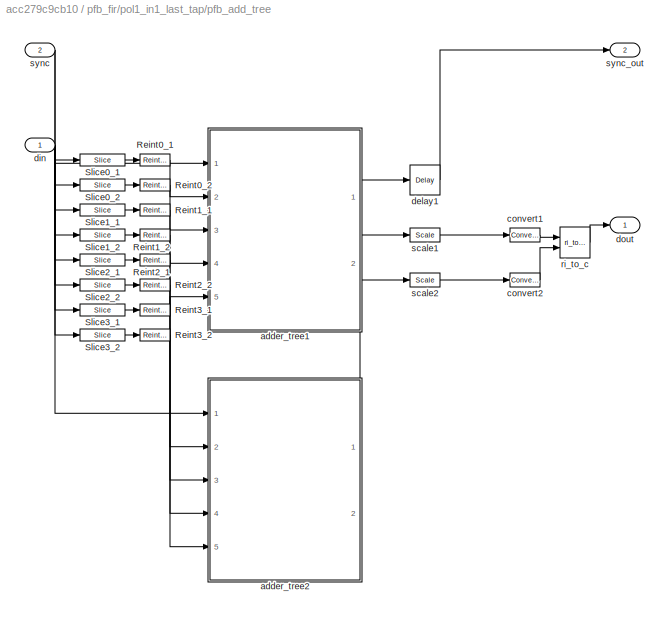
BLOCK [SubSystem] pfb_fir/pol1_in1_last_tap/pfb_add_tree
  AttributesFormatString = taps=4, add_latency=1
  FunctionWithSeparateData = off
  MaskHideContents = off
  MinAlgLoopOccurrences = off
  Opaque = off
  Ports = [2, 2]
  PropExecContextOutsideSubsystem = off
  RTWSystemCode = Auto
  RequestExecContextInheritance = off
  UserDataPersistent = on
BLOCK [Reference] pfb_fir/pol1_in1_last_tap/pfb_add_tree/Reint0_1  REF=xbsIndex_r4/Reinterpret
  Ports = [1, 1]
  SourceBlock = xbsIndex_r4/Reinterpret
  SourceType = Xilinx Type Reinterpreter Block
  arith_type = Signed  (2's comp)
  bin_pt = 38
  block_type = reinterpret
  block_version = 11.4
  force_arith_type = on
  force_bin_pt = on
  has_advanced_control = 0
  infoedit = Changes signal type without altering the binary representation.   You can changed the signal between signed and unsigned, and relocate the binary point.<br><br>Hardware notes: In hardware this block costs nothing.<br><br>Example:  Suppose the input is 6 bits wide, signed, with 2 fractional bits, and the output is forced to unsigned with 0 fractional bits.  Then an input of -2.0 (1110.00 in binary ...<+59ch>  <repeated x16 — deduplicated; at blocks: Reint0_1, Reint0_2, Reint1_1, Reint1_2, Reint2_1, Reint2_2, Reint3_1, Reint3_2, interpret_coeff>
  sg_icon_stat = 30,12,1,1,white,blue,0,6b04d0b0,right,,[ ],[ ]
  sg_mask_display = fprintf('','COMMENT: begin icon graphics');\npatch([0 30 30 0 0 ],[0 0 12 12 0 ],[0.77 0.82 0.91 ]);\nplot([0 30 30 0 0 ],[0 0 12 12 0 ]);\npatch([12.775 14.22 15.22 16.22 17.22 15.22 13.775 12.775 ],[7.11 7.11 8.11 7.11 8.11 8.11 8.11 7.11 ],[1 1 1 ]);\npatch([13.775 15.22 14.22 12.775 13.775 ],[6.11 6.11 7.11 7.11 6.11 ],[0.931 0.946 0.973 ]);\npatch([12.775 14.22 15.22 13.775 12.775 ],[5.11 5.11 6.1...<+297ch>  <repeated x16 — deduplicated; at blocks: Reint0_1, Reint0_2, Reint1_1, Reint1_2, Reint2_1, Reint2_2, Reint3_1, Reint3_2>
  sggui_pos = -1,-1,-1,-1
BLOCK [Reference] pfb_fir/pol1_in1_last_tap/pfb_add_tree/Reint0_2  REF=xbsIndex_r4/Reinterpret
  Ports = [1, 1]
  SourceBlock = xbsIndex_r4/Reinterpret
  SourceType = Xilinx Type Reinterpreter Block
  arith_type = Signed  (2's comp)
  bin_pt = 38
  block_type = reinterpret
  block_version = 11.4
  force_arith_type = on
  force_bin_pt = on
  has_advanced_control = 0
  sg_icon_stat = 30,12,1,1,white,blue,0,6b04d0b0,right,,[ ],[ ]
  sggui_pos = -1,-1,-1,-1
BLOCK [Reference] pfb_fir/pol1_in1_last_tap/pfb_add_tree/Reint1_1  REF=xbsIndex_r4/Reinterpret
  Ports = [1, 1]
  SourceBlock = xbsIndex_r4/Reinterpret
  SourceType = Xilinx Type Reinterpreter Block
  arith_type = Signed  (2's comp)
  bin_pt = 38
  block_type = reinterpret
  block_version = 11.4
  force_arith_type = on
  force_bin_pt = on
  has_advanced_control = 0
  sg_icon_stat = 30,12,1,1,white,blue,0,6b04d0b0,right,,[ ],[ ]
  sggui_pos = -1,-1,-1,-1
BLOCK [Reference] pfb_fir/pol1_in1_last_tap/pfb_add_tree/Reint1_2  REF=xbsIndex_r4/Reinterpret
  Ports = [1, 1]
  SourceBlock = xbsIndex_r4/Reinterpret
  SourceType = Xilinx Type Reinterpreter Block
  arith_type = Signed  (2's comp)
  bin_pt = 38
  block_type = reinterpret
  block_version = 11.4
  force_arith_type = on
  force_bin_pt = on
  has_advanced_control = 0
  sg_icon_stat = 30,12,1,1,white,blue,0,6b04d0b0,right,,[ ],[ ]
  sggui_pos = -1,-1,-1,-1
BLOCK [Reference] pfb_fir/pol1_in1_last_tap/pfb_add_tree/Reint2_1  REF=xbsIndex_r4/Reinterpret
  Ports = [1, 1]
  SourceBlock = xbsIndex_r4/Reinterpret
  SourceType = Xilinx Type Reinterpreter Block
  arith_type = Signed  (2's comp)
  bin_pt = 38
  block_type = reinterpret
  block_version = 11.4
  force_arith_type = on
  force_bin_pt = on
  has_advanced_control = 0
  sg_icon_stat = 30,12,1,1,white,blue,0,6b04d0b0,right,,[ ],[ ]
  sggui_pos = -1,-1,-1,-1
BLOCK [Reference] pfb_fir/pol1_in1_last_tap/pfb_add_tree/Reint2_2  REF=xbsIndex_r4/Reinterpret
  Ports = [1, 1]
  SourceBlock = xbsIndex_r4/Reinterpret
  SourceType = Xilinx Type Reinterpreter Block
  arith_type = Signed  (2's comp)
  bin_pt = 38
  block_type = reinterpret
  block_version = 11.4
  force_arith_type = on
  force_bin_pt = on
  has_advanced_control = 0
  sg_icon_stat = 30,12,1,1,white,blue,0,6b04d0b0,right,,[ ],[ ]
  sggui_pos = -1,-1,-1,-1
BLOCK [Reference] pfb_fir/pol1_in1_last_tap/pfb_add_tree/Reint3_1  REF=xbsIndex_r4/Reinterpret
  Ports = [1, 1]
  SourceBlock = xbsIndex_r4/Reinterpret
  SourceType = Xilinx Type Reinterpreter Block
  arith_type = Signed  (2's comp)
  bin_pt = 38
  block_type = reinterpret
  block_version = 11.4
  force_arith_type = on
  force_bin_pt = on
  has_advanced_control = 0
  sg_icon_stat = 30,12,1,1,white,blue,0,6b04d0b0,right,,[ ],[ ]
  sggui_pos = -1,-1,-1,-1
BLOCK [Reference] pfb_fir/pol1_in1_last_tap/pfb_add_tree/Reint3_2  REF=xbsIndex_r4/Reinterpret
  Ports = [1, 1]
  SourceBlock = xbsIndex_r4/Reinterpret
  SourceType = Xilinx Type Reinterpreter Block
  arith_type = Signed  (2's comp)
  bin_pt = 38
  block_type = reinterpret
  block_version = 11.4
  force_arith_type = on
  force_bin_pt = on
  has_advanced_control = 0
  sg_icon_stat = 30,12,1,1,white,blue,0,6b04d0b0,right,,[ ],[ ]
  sggui_pos = -1,-1,-1,-1
BLOCK [Reference] pfb_fir/pol1_in1_last_tap/pfb_add_tree/Slice0_1  REF=xbsIndex_r4/Slice
  Ports = [1, 1]
  SourceBlock = xbsIndex_r4/Slice
  SourceType = Xilinx Bit Slice Extractor Block
  base0 = MSB of Input
  base1 = MSB of Input
  bit0 = 0
  bit1 = 0
  block_type = slice
  block_version = 11.4
  boolean_output = off
  dbl_ovrd = off
  has_advanced_control = 0
  infoedit = Extracts a given range of bits from each input sample and presents it at the output.  The output type is ordinarily unsigned with binary point at zero, but can be Boolean when the slice is one bit wide.<br><br>Hardware notes: In hardware this block costs nothing.  <repeated x30 — deduplicated; at blocks: Slice0_1, Slice0_2, Slice1_1, Slice1_2, Slice2_1, Slice2_2, Slice3_1, Slice3_2, slice1, slice2, Slice, Slice1>
  mode = Upper Bit Location + Width
  nbits = 40
  sg_icon_stat = 45,12,1,1,white,blue,0,1fd851a7,right,,[ ],[ ]
  sg_mask_display = fprintf('','COMMENT: begin icon graphics');\npatch([0 45 45 0 0 ],[0 0 12 12 0 ],[0.77 0.82 0.91 ]);\nplot([0 45 45 0 0 ],[0 0 12 12 0 ]);\npatch([19.775 21.22 22.22 23.22 24.22 22.22 20.775 19.775 ],[7.11 7.11 8.11 7.11 8.11 8.11 8.11 7.11 ],[1 1 1 ]);\npatch([20.775 22.22 21.22 19.775 20.775 ],[6.11 6.11 7.11 7.11 6.11 ],[0.931 0.946 0.973 ]);\npatch([19.775 21.22 22.22 20.775 19.775 ],[5.11 5.11 6.1...<+307ch>  <repeated x16 — deduplicated; at blocks: Slice0_1, Slice0_2, Slice1_1, Slice1_2, Slice2_1, Slice2_2, Slice3_1, Slice3_2>
  sggui_pos = -1,-1,-1,-1
BLOCK [Reference] pfb_fir/pol1_in1_last_tap/pfb_add_tree/Slice0_2  REF=xbsIndex_r4/Slice
  Ports = [1, 1]
  SourceBlock = xbsIndex_r4/Slice
  SourceType = Xilinx Bit Slice Extractor Block
  base0 = MSB of Input
  base1 = MSB of Input
  bit0 = 0
  bit1 = -40
  block_type = slice
  block_version = 11.4
  boolean_output = off
  dbl_ovrd = off
  has_advanced_control = 0
  mode = Upper Bit Location + Width
  nbits = 40
  sg_icon_stat = 45,12,1,1,white,blue,0,1fd851a7,right,,[ ],[ ]
  sggui_pos = -1,-1,-1,-1
BLOCK [Reference] pfb_fir/pol1_in1_last_tap/pfb_add_tree/Slice1_1  REF=xbsIndex_r4/Slice
  Ports = [1, 1]
  SourceBlock = xbsIndex_r4/Slice
  SourceType = Xilinx Bit Slice Extractor Block
  base0 = MSB of Input
  base1 = MSB of Input
  bit0 = 0
  bit1 = -80
  block_type = slice
  block_version = 11.4
  boolean_output = off
  dbl_ovrd = off
  has_advanced_control = 0
  mode = Upper Bit Location + Width
  nbits = 40
  sg_icon_stat = 45,12,1,1,white,blue,0,1fd851a7,right,,[ ],[ ]
  sggui_pos = -1,-1,-1,-1
BLOCK [Reference] pfb_fir/pol1_in1_last_tap/pfb_add_tree/Slice1_2  REF=xbsIndex_r4/Slice
  Ports = [1, 1]
  SourceBlock = xbsIndex_r4/Slice
  SourceType = Xilinx Bit Slice Extractor Block
  base0 = MSB of Input
  base1 = MSB of Input
  bit0 = 0
  bit1 = -120
  block_type = slice
  block_version = 11.4
  boolean_output = off
  dbl_ovrd = off
  has_advanced_control = 0
  mode = Upper Bit Location + Width
  nbits = 40
  sg_icon_stat = 45,12,1,1,white,blue,0,1fd851a7,right,,[ ],[ ]
  sggui_pos = -1,-1,-1,-1
BLOCK [Reference] pfb_fir/pol1_in1_last_tap/pfb_add_tree/Slice2_1  REF=xbsIndex_r4/Slice
  Ports = [1, 1]
  SourceBlock = xbsIndex_r4/Slice
  SourceType = Xilinx Bit Slice Extractor Block
  base0 = MSB of Input
  base1 = MSB of Input
  bit0 = 0
  bit1 = -160
  block_type = slice
  block_version = 11.4
  boolean_output = off
  dbl_ovrd = off
  has_advanced_control = 0
  mode = Upper Bit Location + Width
  nbits = 40
  sg_icon_stat = 45,12,1,1,white,blue,0,1fd851a7,right,,[ ],[ ]
  sggui_pos = -1,-1,-1,-1
BLOCK [Reference] pfb_fir/pol1_in1_last_tap/pfb_add_tree/Slice2_2  REF=xbsIndex_r4/Slice
  Ports = [1, 1]
  SourceBlock = xbsIndex_r4/Slice
  SourceType = Xilinx Bit Slice Extractor Block
  base0 = MSB of Input
  base1 = MSB of Input
  bit0 = 0
  bit1 = -200
  block_type = slice
  block_version = 11.4
  boolean_output = off
  dbl_ovrd = off
  has_advanced_control = 0
  mode = Upper Bit Location + Width
  nbits = 40
  sg_icon_stat = 45,12,1,1,white,blue,0,1fd851a7,right,,[ ],[ ]
  sggui_pos = -1,-1,-1,-1
BLOCK [Reference] pfb_fir/pol1_in1_last_tap/pfb_add_tree/Slice3_1  REF=xbsIndex_r4/Slice
  Ports = [1, 1]
  SourceBlock = xbsIndex_r4/Slice
  SourceType = Xilinx Bit Slice Extractor Block
  base0 = MSB of Input
  base1 = MSB of Input
  bit0 = 0
  bit1 = -240
  block_type = slice
  block_version = 11.4
  boolean_output = off
  dbl_ovrd = off
  has_advanced_control = 0
  mode = Upper Bit Location + Width
  nbits = 40
  sg_icon_stat = 45,12,1,1,white,blue,0,1fd851a7,right,,[ ],[ ]
  sggui_pos = -1,-1,-1,-1
BLOCK [Reference] pfb_fir/pol1_in1_last_tap/pfb_add_tree/Slice3_2  REF=xbsIndex_r4/Slice
  Ports = [1, 1]
  SourceBlock = xbsIndex_r4/Slice
  SourceType = Xilinx Bit Slice Extractor Block
  base0 = MSB of Input
  base1 = MSB of Input
  bit0 = 0
  bit1 = -280
  block_type = slice
  block_version = 11.4
  boolean_output = off
  dbl_ovrd = off
  has_advanced_control = 0
  mode = Upper Bit Location + Width
  nbits = 40
  sg_icon_stat = 45,12,1,1,white,blue,0,1fd851a7,right,,[ ],[ ]
  sggui_pos = -1,-1,-1,-1
BLOCK [SubSystem] pfb_fir/pol1_in1_last_tap/pfb_add_tree/adder_tree1
  AncestorBlock = casper_library_misc/adder_tree
  AttributesFormatString = latency 2
  FunctionWithSeparateData = off
  MaskHideContents = off
  MinAlgLoopOccurrences = off
  Opaque = off
  Ports = [5, 2]
  PropExecContextOutsideSubsystem = off
  RTWSystemCode = Auto
  RequestExecContextInheritance = off
  UserDataPersistent = on
BLOCK [Reference] pfb_fir/pol1_in1_last_tap/pfb_add_tree/adder_tree1/addr1  REF=xbsIndex_r4/AddSub
  Ports = [2, 1]
  SourceBlock = xbsIndex_r4/AddSub
  SourceType = Xilinx Adder/Subtracter Block
  arith_type = Signed  (2's comp)
  bin_pt = 38
  block_type = addsub
  block_version = 11.4
  dbl_ovrd = off
  en = off
  has_advanced_control = 0
  hw_selection = Fabric
  latency = 1
  mode = Addition
  n_bits = 40
  overflow = Wrap
  pipelined = on
  precision = User Defined
  quantization = Truncate
  sg_icon_stat = 40,60,2,1,white,blue,0,e85d8a90,right,,[ ],[ ]
  sg_mask_display = fprintf('','COMMENT: begin icon graphics');\npatch([0 40 40 0 0 ],[0 0 60 60 0 ],[0.77 0.82 0.91 ]);\nplot([0 40 40 0 0 ],[0 0 60 60 0 ]);\npatch([8.875 16.1 21.1 26.1 31.1 21.1 13.875 8.875 ],[35.55 35.55 40.55 35.55 40.55 40.55 40.55 35.55 ],[1 1 1 ]);\npatch([13.875 21.1 16.1 8.875 13.875 ],[30.55 30.55 35.55 35.55 30.55 ],[0.931 0.946 0.973 ]);\npatch([8.875 16.1 21.1 13.875 8.875 ],[25.55 25.55 30...<+525ch>  <repeated x13 — deduplicated; at blocks: addr1, addr2, addr3>
  sggui_pos = 23,125,419,344
  use_behavioral_HDL = off
  use_carryin = off
  use_carryout = off
  use_rpm = on
  xl_area = [0,0,0,0,0,0,0]
  xl_use_area = off
BLOCK [Reference] pfb_fir/pol1_in1_last_tap/pfb_add_tree/adder_tree1/addr2  REF=xbsIndex_r4/AddSub
  Ports = [2, 1]
  SourceBlock = xbsIndex_r4/AddSub
  SourceType = Xilinx Adder/Subtracter Block
  arith_type = Signed  (2's comp)
  bin_pt = 38
  block_type = addsub
  block_version = 11.4
  dbl_ovrd = off
  en = off
  has_advanced_control = 0
  hw_selection = Fabric
  latency = 1
  mode = Addition
  n_bits = 40
  overflow = Wrap
  pipelined = on
  precision = User Defined
  quantization = Truncate
  sg_icon_stat = 40,60,2,1,white,blue,0,e85d8a90,right,,[ ],[ ]
  sggui_pos = -1,-1,-1,-1
  use_behavioral_HDL = off
  use_carryin = off
  use_carryout = off
  use_rpm = on
  xl_area = [0,0,0,0,0,0,0]
  xl_use_area = off
BLOCK [Reference] pfb_fir/pol1_in1_last_tap/pfb_add_tree/adder_tree1/addr3  REF=xbsIndex_r4/AddSub
  Ports = [2, 1]
  SourceBlock = xbsIndex_r4/AddSub
  SourceType = Xilinx Adder/Subtracter Block
  arith_type = Signed  (2's comp)
  bin_pt = 38
  block_type = addsub
  block_version = 11.4
  dbl_ovrd = off
  en = off
  has_advanced_control = 0
  hw_selection = Fabric
  latency = 1
  mode = Addition
  n_bits = 40
  overflow = Wrap
  pipelined = on
  precision = User Defined
  quantization = Truncate
  sg_icon_stat = 40,60,2,1,white,blue,0,e85d8a90,right,,[ ],[ ]
  sggui_pos = 23,125,419,344
  use_behavioral_HDL = off
  use_carryin = off
  use_carryout = off
  use_rpm = on
  xl_area = [0,0,0,0,0,0,0]
  xl_use_area = off
BLOCK [Inport] pfb_fir/pol1_in1_last_tap/pfb_add_tree/adder_tree1/din1
  IconDisplay = Port number
  Port = 2
BLOCK [Inport] pfb_fir/pol1_in1_last_tap/pfb_add_tree/adder_tree1/din2
  IconDisplay = Port number
  Port = 3
BLOCK [Inport] pfb_fir/pol1_in1_last_tap/pfb_add_tree/adder_tree1/din3
  IconDisplay = Port number
  Port = 4
BLOCK [Inport] pfb_fir/pol1_in1_last_tap/pfb_add_tree/adder_tree1/din4
  IconDisplay = Port number
  Port = 5
BLOCK [Outport] pfb_fir/pol1_in1_last_tap/pfb_add_tree/adder_tree1/dout
  IconDisplay = Port number
  Port = 2
BLOCK [Inport] pfb_fir/pol1_in1_last_tap/pfb_add_tree/adder_tree1/sync
  IconDisplay = Port number
BLOCK [Reference] pfb_fir/pol1_in1_last_tap/pfb_add_tree/adder_tree1/sync_delay  REF=xbsIndex_r4/Delay
  Ports = [1, 1]
  SourceBlock = xbsIndex_r4/Delay
  SourceType = Xilinx Delay Block
  block_type = delay
  block_version = 11.4
  dbl_ovrd = off
  en = off
  has_advanced_control = 0
  infoedit = Hardware notes: A delay line is a chain, each link of which is an SRL16 followed by a flip-flop.
  infoeditControl = Selection of Reset will increase slice count due to use of real FFs and instead of SRLs
  latency = 2
  reg_retiming = on
  rst = off
  sg_icon_stat = 30,30,1,1,white,blue,0,85ce9542,right,,[ ],[ ]
  sg_mask_display = fprintf('','COMMENT: begin icon graphics');\npatch([0 30 30 0 0 ],[0 0 30 30 0 ],[0.77 0.82 0.91 ]);\nplot([0 30 30 0 0 ],[0 0 30 30 0 ]);\npatch([6.1 11.88 15.88 19.88 23.88 15.88 10.1 6.1 ],[19.44 19.44 23.44 19.44 23.44 23.44 23.44 19.44 ],[1 1 1 ]);\npatch([10.1 15.88 11.88 6.1 10.1 ],[15.44 15.44 19.44 19.44 15.44 ],[0.931 0.946 0.973 ]);\npatch([6.1 11.88 15.88 10.1 6.1 ],[11.44 11.44 15.44 15.44...<+298ch>  <repeated x10 — deduplicated; at blocks: sync_delay, delay1, delay_convert, delay_dv, sync_delay1>
  sggui_pos = 21,71,419,315
  xl_area = [0,0,0,0,0,0,0]
  xl_use_area = off
BLOCK [Outport] pfb_fir/pol1_in1_last_tap/pfb_add_tree/adder_tree1/sync_out
  IconDisplay = Port number
BLOCK [SubSystem] pfb_fir/pol1_in1_last_tap/pfb_add_tree/adder_tree2
  AncestorBlock = casper_library_misc/adder_tree
  AttributesFormatString = latency 2
  FunctionWithSeparateData = off
  MaskHideContents = off
  MinAlgLoopOccurrences = off
  Opaque = off
  Ports = [5, 2]
  PropExecContextOutsideSubsystem = off
  RTWSystemCode = Auto
  RequestExecContextInheritance = off
  UserDataPersistent = on
BLOCK [Reference] pfb_fir/pol1_in1_last_tap/pfb_add_tree/adder_tree2/addr1  REF=xbsIndex_r4/AddSub
  Ports = [2, 1]
  SourceBlock = xbsIndex_r4/AddSub
  SourceType = Xilinx Adder/Subtracter Block
  arith_type = Signed  (2's comp)
  bin_pt = 38
  block_type = addsub
  block_version = 11.4
  dbl_ovrd = off
  en = off
  has_advanced_control = 0
  hw_selection = Fabric
  latency = 1
  mode = Addition
  n_bits = 40
  overflow = Wrap
  pipelined = on
  precision = User Defined
  quantization = Truncate
  sg_icon_stat = 40,60,2,1,white,blue,0,e85d8a90,right,,[ ],[ ]
  sggui_pos = 23,125,419,344
  use_behavioral_HDL = off
  use_carryin = off
  use_carryout = off
  use_rpm = on
  xl_area = [0,0,0,0,0,0,0]
  xl_use_area = off
BLOCK [Reference] pfb_fir/pol1_in1_last_tap/pfb_add_tree/adder_tree2/addr2  REF=xbsIndex_r4/AddSub
  Ports = [2, 1]
  SourceBlock = xbsIndex_r4/AddSub
  SourceType = Xilinx Adder/Subtracter Block
  arith_type = Signed  (2's comp)
  bin_pt = 38
  block_type = addsub
  block_version = 11.4
  dbl_ovrd = off
  en = off
  has_advanced_control = 0
  hw_selection = Fabric
  latency = 1
  mode = Addition
  n_bits = 40
  overflow = Wrap
  pipelined = on
  precision = User Defined
  quantization = Truncate
  sg_icon_stat = 40,60,2,1,white,blue,0,e85d8a90,right,,[ ],[ ]
  sggui_pos = -1,-1,-1,-1
  use_behavioral_HDL = off
  use_carryin = off
  use_carryout = off
  use_rpm = on
  xl_area = [0,0,0,0,0,0,0]
  xl_use_area = off
BLOCK [Reference] pfb_fir/pol1_in1_last_tap/pfb_add_tree/adder_tree2/addr3  REF=xbsIndex_r4/AddSub
  Ports = [2, 1]
  SourceBlock = xbsIndex_r4/AddSub
  SourceType = Xilinx Adder/Subtracter Block
  arith_type = Signed  (2's comp)
  bin_pt = 38
  block_type = addsub
  block_version = 11.4
  dbl_ovrd = off
  en = off
  has_advanced_control = 0
  hw_selection = Fabric
  latency = 1
  mode = Addition
  n_bits = 40
  overflow = Wrap
  pipelined = on
  precision = User Defined
  quantization = Truncate
  sg_icon_stat = 40,60,2,1,white,blue,0,e85d8a90,right,,[ ],[ ]
  sggui_pos = 23,125,419,344
  use_behavioral_HDL = off
  use_carryin = off
  use_carryout = off
  use_rpm = on
  xl_area = [0,0,0,0,0,0,0]
  xl_use_area = off
BLOCK [Inport] pfb_fir/pol1_in1_last_tap/pfb_add_tree/adder_tree2/din1
  IconDisplay = Port number
  Port = 2
BLOCK [Inport] pfb_fir/pol1_in1_last_tap/pfb_add_tree/adder_tree2/din2
  IconDisplay = Port number
  Port = 3
BLOCK [Inport] pfb_fir/pol1_in1_last_tap/pfb_add_tree/adder_tree2/din3
  IconDisplay = Port number
  Port = 4
BLOCK [Inport] pfb_fir/pol1_in1_last_tap/pfb_add_tree/adder_tree2/din4
  IconDisplay = Port number
  Port = 5
BLOCK [Outport] pfb_fir/pol1_in1_last_tap/pfb_add_tree/adder_tree2/dout
  IconDisplay = Port number
  Port = 2
BLOCK [Inport] pfb_fir/pol1_in1_last_tap/pfb_add_tree/adder_tree2/sync
  IconDisplay = Port number
BLOCK [Reference] pfb_fir/pol1_in1_last_tap/pfb_add_tree/adder_tree2/sync_delay  REF=xbsIndex_r4/Delay
  Ports = [1, 1]
  SourceBlock = xbsIndex_r4/Delay
  SourceType = Xilinx Delay Block
  block_type = delay
  block_version = 11.4
  dbl_ovrd = off
  en = off
  has_advanced_control = 0
  infoedit = Hardware notes: A delay line is a chain, each link of which is an SRL16 followed by a flip-flop.
  infoeditControl = Selection of Reset will increase slice count due to use of real FFs and instead of SRLs
  latency = 2
  reg_retiming = on
  rst = off
  sg_icon_stat = 30,30,1,1,white,blue,0,85ce9542,right,,[ ],[ ]
  sggui_pos = 21,71,419,315
  xl_area = [0,0,0,0,0,0,0]
  xl_use_area = off
BLOCK [Outport] pfb_fir/pol1_in1_last_tap/pfb_add_tree/adder_tree2/sync_out
  IconDisplay = Port number
BLOCK [Reference] pfb_fir/pol1_in1_last_tap/pfb_add_tree/convert1  REF=xbsIndex_r4/Convert
  Ports = [1, 1]
  SourceBlock = xbsIndex_r4/Convert
  SourceType = Xilinx Type Converter Block
  arith_type = Signed  (2's comp)
  bin_pt = 47
  block_type = convert
  block_version = 11.4
  dbl_ovrd = off
  en = off
  exp_bits = 8
  float_type = Single
  fraction_bits = 24
  gui_display_data_type = Fixed-point
  has_advanced_control = 0
  infoedit = Hardware notes: rounding and saturating require hardware resources; truncating and wrapping do not.
  latency = 1
  n_bits = 48
  overflow = Wrap
  pipeline = on
  quantization = Truncate
  sg_icon_stat = 30,14,1,1,white,blue,0,0c6bad53,right,,[ ],[ ]
  sg_mask_display = fprintf('','COMMENT: begin icon graphics');\npatch([0 30 30 0 0 ],[0 0 14 14 0 ],[0.77 0.82 0.91 ]);\nplot([0 30 30 0 0 ],[0 0 14 14 0 ]);\npatch([10.55 13.44 15.44 17.44 19.44 15.44 12.55 10.55 ],[9.22 9.22 11.22 9.22 11.22 11.22 11.22 9.22 ],[1 1 1 ]);\npatch([12.55 15.44 13.44 10.55 12.55 ],[7.22 7.22 9.22 9.22 7.22 ],[0.931 0.946 0.973 ]);\npatch([10.55 13.44 15.44 12.55 10.55 ],[5.22 5.22 7.22 7.2...<+382ch>  <repeated x4 — deduplicated; at blocks: convert1, convert2>
  sggui_pos = -1,-1,-1,-1
  xl_area = [0,0,0,0,0,0,0]
  xl_use_area = off
BLOCK [Reference] pfb_fir/pol1_in1_last_tap/pfb_add_tree/convert2  REF=xbsIndex_r4/Convert
  Ports = [1, 1]
  SourceBlock = xbsIndex_r4/Convert
  SourceType = Xilinx Type Converter Block
  arith_type = Signed  (2's comp)
  bin_pt = 47
  block_type = convert
  block_version = 11.4
  dbl_ovrd = off
  en = off
  exp_bits = 8
  float_type = Single
  fraction_bits = 24
  gui_display_data_type = Fixed-point
  has_advanced_control = 0
  infoedit = Hardware notes: rounding and saturating require hardware resources; truncating and wrapping do not.
  latency = 1
  n_bits = 48
  overflow = Wrap
  pipeline = off
  quantization = Truncate
  sg_icon_stat = 30,14,1,1,white,blue,0,0c6bad53,right,,[ ],[ ]
  sggui_pos = -1,-1,-1,-1
  xl_area = [0,0,0,0,0,0,0]
  xl_use_area = off
BLOCK [Reference] pfb_fir/pol1_in1_last_tap/pfb_add_tree/delay1  REF=xbsIndex_r4/Delay
  Ports = [1, 1]
  SourceBlock = xbsIndex_r4/Delay
  SourceType = Xilinx Delay Block
  block_type = delay
  block_version = 11.4
  dbl_ovrd = off
  en = off
  has_advanced_control = 0
  infoedit = Hardware notes: A delay line is a chain, each link of which is an SRL16 followed by a flip-flop.
  infoeditControl = Selection of Reset will increase slice count due to use of real FFs and instead of SRLs
  latency = 1
  reg_retiming = on
  rst = off
  sg_icon_stat = 30,30,1,1,white,blue,0,07b98262,right,,[ ],[ ]
  sggui_pos = -1,-1,-1,-1
  xl_area = [0,0,0,0,0,0,0]
  xl_use_area = off
BLOCK [Inport] pfb_fir/pol1_in1_last_tap/pfb_add_tree/din
  IconDisplay = Port number
BLOCK [Outport] pfb_fir/pol1_in1_last_tap/pfb_add_tree/dout
  IconDisplay = Port number
BLOCK [Reference] pfb_fir/pol1_in1_last_tap/pfb_add_tree/ri_to_c  REF=casper_library_misc/ri_to_c  (lib defined in mdl_357510c33b49, mdl_57b5f564ae26, +4 more)
  Ports = [2, 1]
  SourceBlock = casper_library_misc/ri_to_c
  SourceType = ri_to_c
  UserDataPersistent = on
BLOCK [Reference] pfb_fir/pol1_in1_last_tap/pfb_add_tree/scale1  REF=xbsIndex_r4/Scale
  Ports = [1, 1]
  SourceBlock = xbsIndex_r4/Scale
  SourceType = Xilinx Input Scaler Block
  block_type = scale
  block_version = 11.4
  dbl_ovrd = off
  has_advanced_control = 0
  infoedit = Scales input by a power of two by adjusting the binary point position.<br><br>Hardware notes: In hardware this block costs nothing.
  scale_factor = -1
  sg_icon_stat = 30,14,1,1,white,blue,0,315b7d78,right,,[ ],[ ]
  sg_mask_display = fprintf('','COMMENT: begin icon graphics');\npatch([0 30 30 0 0 ],[0 0 14 14 0 ],[0.77 0.82 0.91 ]);\nplot([0 30 30 0 0 ],[0 0 14 14 0 ]);\npatch([10.55 13.44 15.44 17.44 19.44 15.44 12.55 10.55 ],[9.22 9.22 11.22 9.22 11.22 11.22 11.22 9.22 ],[1 1 1 ]);\npatch([12.55 15.44 13.44 10.55 12.55 ],[7.22 7.22 9.22 9.22 7.22 ],[0.931 0.946 0.973 ]);\npatch([10.55 13.44 15.44 12.55 10.55 ],[5.22 5.22 7.22 7.2...<+304ch>  <repeated x4 — deduplicated; at blocks: scale1, scale2>
  sggui_pos = -1,-1,-1,-1
BLOCK [Reference] pfb_fir/pol1_in1_last_tap/pfb_add_tree/scale2  REF=xbsIndex_r4/Scale
  Ports = [1, 1]
  SourceBlock = xbsIndex_r4/Scale
  SourceType = Xilinx Input Scaler Block
  block_type = scale
  block_version = 11.4
  dbl_ovrd = off
  has_advanced_control = 0
  infoedit = Scales input by a power of two by adjusting the binary point position.<br><br>Hardware notes: In hardware this block costs nothing.
  scale_factor = -1
  sg_icon_stat = 30,14,1,1,white,blue,0,315b7d78,right,,[ ],[ ]
  sggui_pos = -1,-1,-1,-1
BLOCK [Inport] pfb_fir/pol1_in1_last_tap/pfb_add_tree/sync
  IconDisplay = Port number
  Port = 2
BLOCK [Outport] pfb_fir/pol1_in1_last_tap/pfb_add_tree/sync_out
  IconDisplay = Port number
  Port = 2
BLOCK [SubSystem] pfb_fir/pol1_in1_last_tap/ri_to_c
  FunctionWithSeparateData = off
  MaskHideContents = off
  MinAlgLoopOccurrences = off
  Opaque = off
  Ports = [2, 1]
  PropExecContextOutsideSubsystem = off
  RTWSystemCode = Auto
  RequestExecContextInheritance = off
BLOCK [Reference] pfb_fir/pol1_in1_last_tap/ri_to_c/Concat  REF=xbsIndex_r4/Concat
  Ports = [2, 1]
  SourceBlock = xbsIndex_r4/Concat
  SourceType = Xilinx Bus Concatenator Block
  block_type = concat
  block_version = 9.1.01
  dbl_ovrd = off
  has_advanced_control = 0
  infoedit = Concatenates two or more inputs.  Output will be cast to an unsigned value with the binary point at zero.
  num_inputs = 2
  sg_icon_stat = 50,55,2,1,white,blue,0,16398980,right,,[ ],[ ]
  sggui_pos = -1,-1,-1,-1
BLOCK [Reference] pfb_fir/pol1_in1_last_tap/ri_to_c/Reinterpret  REF=xbsIndex_r4/Reinterpret
  Ports = [1, 1]
  SourceBlock = xbsIndex_r4/Reinterpret
  SourceType = Xilinx Type Reinterpreter Block
  arith_type = Unsigned
  bin_pt = 0
  block_type = reinterpret
  block_version = 9.1.01
  force_arith_type = on
  force_bin_pt = on
  has_advanced_control = 0
  sg_icon_stat = 40,32,1,1,white,blue,0,6b04d0b0,right,,[ ],[ ]
  sggui_pos = -1,-1,-1,-1
BLOCK [Reference] pfb_fir/pol1_in1_last_tap/ri_to_c/Reinterpret1  REF=xbsIndex_r4/Reinterpret
  Ports = [1, 1]
  SourceBlock = xbsIndex_r4/Reinterpret
  SourceType = Xilinx Type Reinterpreter Block
  arith_type = Unsigned
  bin_pt = 0
  block_type = reinterpret
  block_version = 9.1.01
  force_arith_type = on
  force_bin_pt = on
  has_advanced_control = 0
  sg_icon_stat = 40,32,1,1,white,blue,0,6b04d0b0,right,,[ ],[ ]
  sggui_pos = -1,-1,-1,-1
BLOCK [Outport] pfb_fir/pol1_in1_last_tap/ri_to_c/c
  IconDisplay = Port number
BLOCK [Inport] pfb_fir/pol1_in1_last_tap/ri_to_c/im
  IconDisplay = Port number
  Port = 2
BLOCK [Inport] pfb_fir/pol1_in1_last_tap/ri_to_c/re
  IconDisplay = Port number
BLOCK [Inport] pfb_fir/pol1_in1_last_tap/sync
  IconDisplay = Port number
  Port = 2
BLOCK [Outport] pfb_fir/pol1_in1_last_tap/sync_out
  IconDisplay = Port number
  Port = 2
BLOCK [Inport] pfb_fir/pol1_in1_last_tap/taps
  IconDisplay = Port number
  Port = 4
BLOCK [SubSystem] pfb_fir/pol1_in1_tap2
  AncestorBlock = casper_library_pfbs/tap
  FunctionWithSeparateData = off
  MaskHideContents = off
  MinAlgLoopOccurrences = off
  Opaque = off
  Ports = [4, 4]
  PropExecContextOutsideSubsystem = off
  RTWSystemCode = Auto
  RequestExecContextInheritance = off
BLOCK [Reference] pfb_fir/pol1_in1_tap2/Concat  REF=xbsIndex_r4/Concat
  Ports = [2, 1]
  SourceBlock = xbsIndex_r4/Concat
  SourceType = Xilinx Bus Concatenator Block
  block_type = concat
  block_version = 9.1.01
  dbl_ovrd = off
  has_advanced_control = 0
  infoedit = Concatenates two or more inputs.  Output will be cast to an unsigned value with the binary point at zero.
  num_inputs = 2
  sg_icon_stat = 50,55,2,1,white,blue,0,16398980,right,,[ ],[ ]
  sggui_pos = -1,-1,-1,-1
BLOCK [Reference] pfb_fir/pol1_in1_tap2/Mult  REF=xbsIndex_r4/Mult
  Ports = [2, 1]
  SourceBlock = xbsIndex_r4/Mult
  SourceType = Xilinx Multiplier Block
  arith_type = Signed  (2's comp)
  bin_pt = 2
  block_type = mult
  block_version = 9.1.01
  dbl_ovrd = off
  en = off
  has_advanced_control = 0
  infoedit = Hardware notes: To use the internal pipeline stage of the dedicated multiplier you must select 'Pipeline for maximum performance'.
  latency = mult_latency
  n_bits = 8
  opt = Speed
  optimum_pipeline = off
  overflow = Wrap
  pipeline = on
  placement_style = Rectangular shape
  precision = Full
  quantization = Truncate
  sg_icon_stat = 50,51,2,1,white,blue,0,2fbe4d8a,right,,[ ],[ ]
  sggui_pos = 20,20,457,487
  use_behavioral_HDL = on
  use_embedded = off
  use_rpm = on
  xl_area = [0, 0, 0, 0, 0, 0, 0]
  xl_use_area = off
BLOCK [Reference] pfb_fir/pol1_in1_tap2/Mult1  REF=xbsIndex_r4/Mult
  Ports = [2, 1]
  SourceBlock = xbsIndex_r4/Mult
  SourceType = Xilinx Multiplier Block
  arith_type = Signed  (2's comp)
  bin_pt = 2
  block_type = mult
  block_version = 9.1.01
  dbl_ovrd = off
  en = off
  has_advanced_control = 0
  infoedit = Hardware notes: To use the internal pipeline stage of the dedicated multiplier you must select 'Pipeline for maximum performance'.
  latency = mult_latency
  n_bits = 8
  opt = Speed
  optimum_pipeline = off
  overflow = Wrap
  pipeline = on
  placement_style = Rectangular shape
  precision = Full
  quantization = Truncate
  sg_icon_stat = 50,51,2,1,white,blue,0,2fbe4d8a,right,,[ ],[ ]
  sggui_pos = 20,20,457,487
  use_behavioral_HDL = on
  use_embedded = off
  use_rpm = on
  xl_area = [0, 0, 0, 0, 0, 0, 0]
  xl_use_area = off
BLOCK [Reference] pfb_fir/pol1_in1_tap2/Reinterpret  REF=xbsIndex_r4/Reinterpret
  Ports = [1, 1]
  SourceBlock = xbsIndex_r4/Reinterpret
  SourceType = Xilinx Type Reinterpreter Block
  arith_type = Signed  (2's comp)
  bin_pt = coeff_frac_width
  block_type = reinterpret
  block_version = 9.1.01
  force_arith_type = on
  force_bin_pt = on
  has_advanced_control = 0
  sg_icon_stat = 40,32,1,1,white,blue,0,6b04d0b0,right,,[ ],[ ]
  sggui_pos = 20,20,336,370
BLOCK [Reference] pfb_fir/pol1_in1_tap2/Slice  REF=xbsIndex_r4/Slice
  Ports = [1, 1]
  SourceBlock = xbsIndex_r4/Slice
  SourceType = Xilinx Bit Slice Extractor Block
  base0 = LSB of Input
  base1 = MSB of Input
  bit0 = 0
  bit1 = 0
  block_type = slice
  block_version = 9.1.01
  boolean_output = off
  dbl_ovrd = off
  has_advanced_control = 0
  mode = Lower Bit Location + Width
  nbits = coeff_width
  sg_icon_stat = 45,28,1,1,white,blue,0,1fd851a7,right,,[ ],[ ]
  sggui_pos = 2629,229,533,427
BLOCK [Reference] pfb_fir/pol1_in1_tap2/Slice1  REF=xbsIndex_r4/Slice
  Ports = [1, 1]
  SourceBlock = xbsIndex_r4/Slice
  SourceType = Xilinx Bit Slice Extractor Block
  base0 = LSB of Input
  base1 = MSB of Input
  bit0 = coeff_width
  bit1 = 0
  block_type = slice
  block_version = 9.1.01
  boolean_output = off
  dbl_ovrd = off
  has_advanced_control = 0
  mode = Two Bit Locations
  nbits = 0
  sg_icon_stat = 45,28,1,1,white,blue,0,1fd851a7,right,,[ ],[ ]
  sggui_pos = 20,20,533,427
BLOCK [Reference] pfb_fir/pol1_in1_tap2/c_to_ri  REF=casper_library_misc/c_to_ri  (lib defined in mdl_357510c33b49, mdl_57b5f564ae26, +4 more)
  AttributesFormatString = 20_19 r/i
  Ports = [1, 2]
  SourceBlock = casper_library_misc/c_to_ri
  SourceType = c_to_ri
  UserDataPersistent = on
  bin_pt = data_width-1
  n_bits = data_width
BLOCK [Inport] pfb_fir/pol1_in1_tap2/coeff
  IconDisplay = Port number
  Port = 3
BLOCK [Outport] pfb_fir/pol1_in1_tap2/coeff_out
  IconDisplay = Port number
  Port = 3
BLOCK [SubSystem] pfb_fir/pol1_in1_tap2/delay_bram
  AncestorBlock = casper_library_delays/delay_bram
  FunctionWithSeparateData = off
  MaskHideContents = off
  MinAlgLoopOccurrences = off
  Opaque = off
  Ports = [1, 1]
  PropExecContextOutsideSubsystem = off
  RTWSystemCode = Auto
  RequestExecContextInheritance = off
  UserDataPersistent = on
BLOCK [Reference] pfb_fir/pol1_in1_tap2/delay_bram/constant  REF=xbsIndex_r4/Constant
  Ports = [0, 1]
  SourceBlock = xbsIndex_r4/Constant
  SourceType = Xilinx Constant Block Block
  arith_type = Boolean
  bin_pt = 14
  block_type = constant
  carry = CIN
  const = 1
  dbl_ovrd = off
  dsp48_infoedit = The use of this block for DSP48 instructions is deprecated.  Please use the Opmode block.
  equ = P=C
  exp_width = 8
  explicit_period = on
  frac_width = 24
  gui_display_data_type = Fixed-point
  has_advanced_control = 0
  inp1 = P
  inp2 = PCIN>>17
  n_bits = 16
  opr = +
  opselect = C
  period = 1
  preci_type = Single
  sg_icon_stat = 35,24,0,1,white,blue,0,1c72b5be,right,,[ ],[ ]
  sggui_pos = -1,-1,-1,-1
BLOCK [Reference] pfb_fir/pol1_in1_tap2/delay_bram/counter  REF=xbsIndex_r4/Counter
  Ports = [0, 1]
  SourceBlock = xbsIndex_r4/Counter
  SourceType = Xilinx Counter Block
  arith_type = Unsigned
  bin_pt = 0
  block_type = counter
  cnt_by_val = 1
  cnt_to = DelayLen - bram_latency - 1
  cnt_type = Count Limited
  dbl_ovrd = off
  en = off
  explicit_period = on
  has_advanced_control = 0
  implementation = Fabric
  infoedit = Hardware notes: Free running counters are the least expensive in hardware.  A count limited counter is implemented by combining a counter with a comparator.
  load_pin = off
  n_bits = 8
  operation = Up
  period = 1
  rst = off
  sg_icon_stat = 35,32,0,1,white,blue,0,4b061529,right,,[ ],[ ]
  sggui_pos = -1,-1,-1,-1
  start_count = 0
  use_behavioral_HDL = on
  use_rpm = off
  xl_area = [0,0,0,0,0,0,0]
  xl_use_area = off
BLOCK [Inport] pfb_fir/pol1_in1_tap2/delay_bram/din
  IconDisplay = Port number
BLOCK [Outport] pfb_fir/pol1_in1_tap2/delay_bram/dout
  IconDisplay = Port number
BLOCK [Reference] pfb_fir/pol1_in1_tap2/delay_bram/ram  REF=xbsIndex_r4/Single Port RAM
  Ports = [3, 1]
  SourceBlock = xbsIndex_r4/Single Port RAM
  SourceType = Xilinx Single Port Random Access Memory Block
  block_type = spram
  dbl_ovrd = off
  depth = 256
  distributed_mem = Block RAM
  en = off
  has_advanced_control = 0
  initVector = 0
  init_reg = 0
  latency = bram_latency
  optimize = Area
  rst = off
  sg_icon_stat = 65,116,3,1,white,blue,0,558c5cad,right,,[ ],[ ]
  sggui_pos = -1,-1,-1,-1
  write_mode = Read Before Write
  xl_area = [0,0,0,0,0,0,0]
  xl_use_area = off
BLOCK [Inport] pfb_fir/pol1_in1_tap2/din
  IconDisplay = Port number
BLOCK [Outport] pfb_fir/pol1_in1_tap2/dout
  IconDisplay = Port number
BLOCK [SubSystem] pfb_fir/pol1_in1_tap2/ri_to_c
  FunctionWithSeparateData = off
  MaskHideContents = off
  MinAlgLoopOccurrences = off
  Opaque = off
  Ports = [2, 1]
  PropExecContextOutsideSubsystem = off
  RTWSystemCode = Auto
  RequestExecContextInheritance = off
BLOCK [Reference] pfb_fir/pol1_in1_tap2/ri_to_c/Concat  REF=xbsIndex_r4/Concat
  Ports = [2, 1]
  SourceBlock = xbsIndex_r4/Concat
  SourceType = Xilinx Bus Concatenator Block
  block_type = concat
  block_version = 9.1.01
  dbl_ovrd = off
  has_advanced_control = 0
  infoedit = Concatenates two or more inputs.  Output will be cast to an unsigned value with the binary point at zero.
  num_inputs = 2
  sg_icon_stat = 50,55,2,1,white,blue,0,16398980,right,,[ ],[ ]
  sggui_pos = -1,-1,-1,-1
BLOCK [Reference] pfb_fir/pol1_in1_tap2/ri_to_c/Reinterpret  REF=xbsIndex_r4/Reinterpret
  Ports = [1, 1]
  SourceBlock = xbsIndex_r4/Reinterpret
  SourceType = Xilinx Type Reinterpreter Block
  arith_type = Unsigned
  bin_pt = 0
  block_type = reinterpret
  block_version = 9.1.01
  force_arith_type = on
  force_bin_pt = on
  has_advanced_control = 0
  sg_icon_stat = 40,32,1,1,white,blue,0,6b04d0b0,right,,[ ],[ ]
  sggui_pos = -1,-1,-1,-1
BLOCK [Reference] pfb_fir/pol1_in1_tap2/ri_to_c/Reinterpret1  REF=xbsIndex_r4/Reinterpret
  Ports = [1, 1]
  SourceBlock = xbsIndex_r4/Reinterpret
  SourceType = Xilinx Type Reinterpreter Block
  arith_type = Unsigned
  bin_pt = 0
  block_type = reinterpret
  block_version = 9.1.01
  force_arith_type = on
  force_bin_pt = on
  has_advanced_control = 0
  sg_icon_stat = 40,32,1,1,white,blue,0,6b04d0b0,right,,[ ],[ ]
  sggui_pos = -1,-1,-1,-1
BLOCK [Outport] pfb_fir/pol1_in1_tap2/ri_to_c/c
  IconDisplay = Port number
BLOCK [Inport] pfb_fir/pol1_in1_tap2/ri_to_c/im
  IconDisplay = Port number
  Port = 2
BLOCK [Inport] pfb_fir/pol1_in1_tap2/ri_to_c/re
  IconDisplay = Port number
BLOCK [Inport] pfb_fir/pol1_in1_tap2/sync
  IconDisplay = Port number
  Port = 2
BLOCK [Outport] pfb_fir/pol1_in1_tap2/sync_out
  IconDisplay = Port number
  Port = 2
BLOCK [Inport] pfb_fir/pol1_in1_tap2/taps
  IconDisplay = Port number
  Port = 4
BLOCK [Outport] pfb_fir/pol1_in1_tap2/taps_out
  IconDisplay = Port number
  Port = 4
BLOCK [SubSystem] pfb_fir/pol1_in1_tap3
  AncestorBlock = casper_library_pfbs/tap
  FunctionWithSeparateData = off
  MaskHideContents = off
  MinAlgLoopOccurrences = off
  Opaque = off
  Ports = [4, 4]
  PropExecContextOutsideSubsystem = off
  RTWSystemCode = Auto
  RequestExecContextInheritance = off
BLOCK [Reference] pfb_fir/pol1_in1_tap3/Concat  REF=xbsIndex_r4/Concat
  Ports = [2, 1]
  SourceBlock = xbsIndex_r4/Concat
  SourceType = Xilinx Bus Concatenator Block
  block_type = concat
  block_version = 9.1.01
  dbl_ovrd = off
  has_advanced_control = 0
  infoedit = Concatenates two or more inputs.  Output will be cast to an unsigned value with the binary point at zero.
  num_inputs = 2
  sg_icon_stat = 50,55,2,1,white,blue,0,16398980,right,,[ ],[ ]
  sggui_pos = -1,-1,-1,-1
BLOCK [Reference] pfb_fir/pol1_in1_tap3/Mult  REF=xbsIndex_r4/Mult
  Ports = [2, 1]
  SourceBlock = xbsIndex_r4/Mult
  SourceType = Xilinx Multiplier Block
  arith_type = Signed  (2's comp)
  bin_pt = 2
  block_type = mult
  block_version = 9.1.01
  dbl_ovrd = off
  en = off
  has_advanced_control = 0
  infoedit = Hardware notes: To use the internal pipeline stage of the dedicated multiplier you must select 'Pipeline for maximum performance'.
  latency = mult_latency
  n_bits = 8
  opt = Speed
  optimum_pipeline = off
  overflow = Wrap
  pipeline = on
  placement_style = Rectangular shape
  precision = Full
  quantization = Truncate
  sg_icon_stat = 50,51,2,1,white,blue,0,2fbe4d8a,right,,[ ],[ ]
  sggui_pos = 20,20,457,487
  use_behavioral_HDL = on
  use_embedded = off
  use_rpm = on
  xl_area = [0, 0, 0, 0, 0, 0, 0]
  xl_use_area = off
BLOCK [Reference] pfb_fir/pol1_in1_tap3/Mult1  REF=xbsIndex_r4/Mult
  Ports = [2, 1]
  SourceBlock = xbsIndex_r4/Mult
  SourceType = Xilinx Multiplier Block
  arith_type = Signed  (2's comp)
  bin_pt = 2
  block_type = mult
  block_version = 9.1.01
  dbl_ovrd = off
  en = off
  has_advanced_control = 0
  infoedit = Hardware notes: To use the internal pipeline stage of the dedicated multiplier you must select 'Pipeline for maximum performance'.
  latency = mult_latency
  n_bits = 8
  opt = Speed
  optimum_pipeline = off
  overflow = Wrap
  pipeline = on
  placement_style = Rectangular shape
  precision = Full
  quantization = Truncate
  sg_icon_stat = 50,51,2,1,white,blue,0,2fbe4d8a,right,,[ ],[ ]
  sggui_pos = 20,20,457,487
  use_behavioral_HDL = on
  use_embedded = off
  use_rpm = on
  xl_area = [0, 0, 0, 0, 0, 0, 0]
  xl_use_area = off
BLOCK [Reference] pfb_fir/pol1_in1_tap3/Reinterpret  REF=xbsIndex_r4/Reinterpret
  Ports = [1, 1]
  SourceBlock = xbsIndex_r4/Reinterpret
  SourceType = Xilinx Type Reinterpreter Block
  arith_type = Signed  (2's comp)
  bin_pt = coeff_frac_width
  block_type = reinterpret
  block_version = 9.1.01
  force_arith_type = on
  force_bin_pt = on
  has_advanced_control = 0
  sg_icon_stat = 40,32,1,1,white,blue,0,6b04d0b0,right,,[ ],[ ]
  sggui_pos = 20,20,336,370
BLOCK [Reference] pfb_fir/pol1_in1_tap3/Slice  REF=xbsIndex_r4/Slice
  Ports = [1, 1]
  SourceBlock = xbsIndex_r4/Slice
  SourceType = Xilinx Bit Slice Extractor Block
  base0 = LSB of Input
  base1 = MSB of Input
  bit0 = 0
  bit1 = 0
  block_type = slice
  block_version = 9.1.01
  boolean_output = off
  dbl_ovrd = off
  has_advanced_control = 0
  mode = Lower Bit Location + Width
  nbits = coeff_width
  sg_icon_stat = 45,28,1,1,white,blue,0,1fd851a7,right,,[ ],[ ]
  sggui_pos = 2629,229,533,427
BLOCK [Reference] pfb_fir/pol1_in1_tap3/Slice1  REF=xbsIndex_r4/Slice
  Ports = [1, 1]
  SourceBlock = xbsIndex_r4/Slice
  SourceType = Xilinx Bit Slice Extractor Block
  base0 = LSB of Input
  base1 = MSB of Input
  bit0 = coeff_width
  bit1 = 0
  block_type = slice
  block_version = 9.1.01
  boolean_output = off
  dbl_ovrd = off
  has_advanced_control = 0
  mode = Two Bit Locations
  nbits = 0
  sg_icon_stat = 45,28,1,1,white,blue,0,1fd851a7,right,,[ ],[ ]
  sggui_pos = 20,20,533,427
BLOCK [Reference] pfb_fir/pol1_in1_tap3/c_to_ri  REF=casper_library_misc/c_to_ri  (lib defined in mdl_357510c33b49, mdl_57b5f564ae26, +4 more)
  AttributesFormatString = 20_19 r/i
  Ports = [1, 2]
  SourceBlock = casper_library_misc/c_to_ri
  SourceType = c_to_ri
  UserDataPersistent = on
  bin_pt = data_width-1
  n_bits = data_width
BLOCK [Inport] pfb_fir/pol1_in1_tap3/coeff
  IconDisplay = Port number
  Port = 3
BLOCK [Outport] pfb_fir/pol1_in1_tap3/coeff_out
  IconDisplay = Port number
  Port = 3
BLOCK [SubSystem] pfb_fir/pol1_in1_tap3/delay_bram
  AncestorBlock = casper_library_delays/delay_bram
  FunctionWithSeparateData = off
  MaskHideContents = off
  MinAlgLoopOccurrences = off
  Opaque = off
  Ports = [1, 1]
  PropExecContextOutsideSubsystem = off
  RTWSystemCode = Auto
  RequestExecContextInheritance = off
  UserDataPersistent = on
BLOCK [Reference] pfb_fir/pol1_in1_tap3/delay_bram/constant  REF=xbsIndex_r4/Constant
  Ports = [0, 1]
  SourceBlock = xbsIndex_r4/Constant
  SourceType = Xilinx Constant Block Block
  arith_type = Boolean
  bin_pt = 14
  block_type = constant
  carry = CIN
  const = 1
  dbl_ovrd = off
  dsp48_infoedit = The use of this block for DSP48 instructions is deprecated.  Please use the Opmode block.
  equ = P=C
  exp_width = 8
  explicit_period = on
  frac_width = 24
  gui_display_data_type = Fixed-point
  has_advanced_control = 0
  inp1 = P
  inp2 = PCIN>>17
  n_bits = 16
  opr = +
  opselect = C
  period = 1
  preci_type = Single
  sg_icon_stat = 35,24,0,1,white,blue,0,1c72b5be,right,,[ ],[ ]
  sggui_pos = -1,-1,-1,-1
BLOCK [Reference] pfb_fir/pol1_in1_tap3/delay_bram/counter  REF=xbsIndex_r4/Counter
  Ports = [0, 1]
  SourceBlock = xbsIndex_r4/Counter
  SourceType = Xilinx Counter Block
  arith_type = Unsigned
  bin_pt = 0
  block_type = counter
  cnt_by_val = 1
  cnt_to = DelayLen - bram_latency - 1
  cnt_type = Count Limited
  dbl_ovrd = off
  en = off
  explicit_period = on
  has_advanced_control = 0
  implementation = Fabric
  infoedit = Hardware notes: Free running counters are the least expensive in hardware.  A count limited counter is implemented by combining a counter with a comparator.
  load_pin = off
  n_bits = 8
  operation = Up
  period = 1
  rst = off
  sg_icon_stat = 35,32,0,1,white,blue,0,4b061529,right,,[ ],[ ]
  sggui_pos = -1,-1,-1,-1
  start_count = 0
  use_behavioral_HDL = on
  use_rpm = off
  xl_area = [0,0,0,0,0,0,0]
  xl_use_area = off
BLOCK [Inport] pfb_fir/pol1_in1_tap3/delay_bram/din
  IconDisplay = Port number
BLOCK [Outport] pfb_fir/pol1_in1_tap3/delay_bram/dout
  IconDisplay = Port number
BLOCK [Reference] pfb_fir/pol1_in1_tap3/delay_bram/ram  REF=xbsIndex_r4/Single Port RAM
  Ports = [3, 1]
  SourceBlock = xbsIndex_r4/Single Port RAM
  SourceType = Xilinx Single Port Random Access Memory Block
  block_type = spram
  dbl_ovrd = off
  depth = 256
  distributed_mem = Block RAM
  en = off
  has_advanced_control = 0
  initVector = 0
  init_reg = 0
  latency = bram_latency
  optimize = Area
  rst = off
  sg_icon_stat = 65,116,3,1,white,blue,0,558c5cad,right,,[ ],[ ]
  sggui_pos = -1,-1,-1,-1
  write_mode = Read Before Write
  xl_area = [0,0,0,0,0,0,0]
  xl_use_area = off
BLOCK [Inport] pfb_fir/pol1_in1_tap3/din
  IconDisplay = Port number
BLOCK [Outport] pfb_fir/pol1_in1_tap3/dout
  IconDisplay = Port number
BLOCK [SubSystem] pfb_fir/pol1_in1_tap3/ri_to_c
  FunctionWithSeparateData = off
  MaskHideContents = off
  MinAlgLoopOccurrences = off
  Opaque = off
  Ports = [2, 1]
  PropExecContextOutsideSubsystem = off
  RTWSystemCode = Auto
  RequestExecContextInheritance = off
BLOCK [Reference] pfb_fir/pol1_in1_tap3/ri_to_c/Concat  REF=xbsIndex_r4/Concat
  Ports = [2, 1]
  SourceBlock = xbsIndex_r4/Concat
  SourceType = Xilinx Bus Concatenator Block
  block_type = concat
  block_version = 9.1.01
  dbl_ovrd = off
  has_advanced_control = 0
  infoedit = Concatenates two or more inputs.  Output will be cast to an unsigned value with the binary point at zero.
  num_inputs = 2
  sg_icon_stat = 50,55,2,1,white,blue,0,16398980,right,,[ ],[ ]
  sggui_pos = -1,-1,-1,-1
BLOCK [Reference] pfb_fir/pol1_in1_tap3/ri_to_c/Reinterpret  REF=xbsIndex_r4/Reinterpret
  Ports = [1, 1]
  SourceBlock = xbsIndex_r4/Reinterpret
  SourceType = Xilinx Type Reinterpreter Block
  arith_type = Unsigned
  bin_pt = 0
  block_type = reinterpret
  block_version = 9.1.01
  force_arith_type = on
  force_bin_pt = on
  has_advanced_control = 0
  sg_icon_stat = 40,32,1,1,white,blue,0,6b04d0b0,right,,[ ],[ ]
  sggui_pos = -1,-1,-1,-1
BLOCK [Reference] pfb_fir/pol1_in1_tap3/ri_to_c/Reinterpret1  REF=xbsIndex_r4/Reinterpret
  Ports = [1, 1]
  SourceBlock = xbsIndex_r4/Reinterpret
  SourceType = Xilinx Type Reinterpreter Block
  arith_type = Unsigned
  bin_pt = 0
  block_type = reinterpret
  block_version = 9.1.01
  force_arith_type = on
  force_bin_pt = on
  has_advanced_control = 0
  sg_icon_stat = 40,32,1,1,white,blue,0,6b04d0b0,right,,[ ],[ ]
  sggui_pos = -1,-1,-1,-1
BLOCK [Outport] pfb_fir/pol1_in1_tap3/ri_to_c/c
  IconDisplay = Port number
BLOCK [Inport] pfb_fir/pol1_in1_tap3/ri_to_c/im
  IconDisplay = Port number
  Port = 2
BLOCK [Inport] pfb_fir/pol1_in1_tap3/ri_to_c/re
  IconDisplay = Port number
BLOCK [Inport] pfb_fir/pol1_in1_tap3/sync
  IconDisplay = Port number
  Port = 2
BLOCK [Outport] pfb_fir/pol1_in1_tap3/sync_out
  IconDisplay = Port number
  Port = 2
BLOCK [Inport] pfb_fir/pol1_in1_tap3/taps
  IconDisplay = Port number
  Port = 4
BLOCK [Outport] pfb_fir/pol1_in1_tap3/taps_out
  IconDisplay = Port number
  Port = 4
BLOCK [Outport] pfb_fir/pol1_out1
  IconDisplay = Port number
  Port = 2
BLOCK [Inport] pfb_fir/sync
  IconDisplay = Port number
BLOCK [Outport] pfb_fir/sync_out
  IconDisplay = Port number
BLOCK [SubSystem] pfb_fir_async1
  AncestorBlock = casper_library_pfbs/pfb_fir_async
  AttributesFormatString = taps=4, add_latency=1\nmax scale 0.595
  FunctionWithSeparateData = off
  MaskHideContents = off
  MinAlgLoopOccurrences = off
  Opaque = off
  Ports = [3, 3]
  PropExecContextOutsideSubsystem = off
  RTWSystemCode = Auto
  RequestExecContextInheritance = off
  Tag = casper:pfb_fir_async
  UserDataPersistent = on
BLOCK [Inport] pfb_fir_async1/dv
  IconDisplay = Port number
  Port = 2
BLOCK [Reference] pfb_fir_async1/dv_delay  REF=xbsIndex_r4/Delay
  Ports = [1, 1]
  SourceBlock = xbsIndex_r4/Delay
  SourceType = Xilinx Delay Block
  block_type = delay
  block_version = 11.4
  dbl_ovrd = off
  en = off
  has_advanced_control = 0
  infoedit = Hardware notes: A delay line is a chain, each link of which is an SRL16 followed by a flip-flop.
  infoeditControl = Selection of Reset will increase slice count due to use of real FFs and instead of SRLs
  latency = bram_latency+1
  reg_retiming = on
  rst = off
  sg_icon_stat = 25,16,1,1,white,blue,0,d390c2d8,right,,[ ],[ ]
  sg_mask_display = fprintf('','COMMENT: begin icon graphics');\npatch([0 25 25 0 0 ],[0 0 16 16 0 ],[0.77 0.82 0.91 ]);\nplot([0 25 25 0 0 ],[0 0 16 16 0 ]);\npatch([7.55 10.44 12.44 14.44 16.44 12.44 9.55 7.55 ],[10.22 10.22 12.22 10.22 12.22 12.22 12.22 10.22 ],[1 1 1 ]);\npatch([9.55 12.44 10.44 7.55 9.55 ],[8.22 8.22 10.22 10.22 8.22 ],[0.931 0.946 0.973 ]);\npatch([7.55 10.44 12.44 9.55 7.55 ],[6.22 6.22 8.22 8.22 6...<+293ch>
  sggui_pos = -1,-1,-1,-1
  xl_area = [0,0,0,0,0,0,0]
  xl_use_area = off
BLOCK [Outport] pfb_fir_async1/dv_out
  IconDisplay = Port number
  Port = 2
BLOCK [Inport] pfb_fir_async1/pol1_in1
  IconDisplay = Port number
  Port = 3
BLOCK [SubSystem] pfb_fir_async1/pol1_in1_coeffs
  AncestorBlock = casper_library_pfbs/pfb_coeff_gen
  AttributesFormatString = PFBSize=6, n_inputs=0,\ntaps=4, input=0
  FunctionWithSeparateData = off
  MaskHideContents = off
  MinAlgLoopOccurrences = off
  Opaque = off
  Ports = [2, 3]
  PropExecContextOutsideSubsystem = off
  RTWSystemCode = Auto
  RequestExecContextInheritance = off
  UserDataPersistent = on
BLOCK [Reference] pfb_fir_async1/pol1_in1_coeffs/Concat  REF=xbsIndex_r4/Concat
  Ports = [4, 1]
  SourceBlock = xbsIndex_r4/Concat
  SourceType = Xilinx Bus Concatenator Block
  block_type = concat
  block_version = 9.1.01
  dbl_ovrd = off
  has_advanced_control = 0
  infoedit = Concatenates two or more inputs.  Output will be cast to an unsigned value with the binary point at zero.
  num_inputs = 4
  sg_icon_stat = 55,547,4,1,white,blue,0,47d3d416,right,,[ ],[ ]
  sg_mask_display = fprintf('','COMMENT: begin icon graphics');\npatch([0 55 55 0 0 ],[0 0 547 547 0 ],[0.77 0.82 0.91 ]);\nplot([0 55 55 0 0 ],[0 0 547 547 0 ]);\npatch([11.425 21.54 28.54 35.54 42.54 28.54 18.425 11.425 ],[280.77 280.77 287.77 280.77 287.77 287.77 287.77 280.77 ],[1 1 1 ]);\npatch([18.425 28.54 21.54 11.425 18.425 ],[273.77 273.77 280.77 280.77 273.77 ],[0.931 0.946 0.973 ]);\npatch([11.425 21.54 28.54 ...<+457ch>
  sggui_pos = -1,-1,-1,-1
BLOCK [Reference] pfb_fir_async1/pol1_in1_coeffs/Counter  REF=xbsIndex_r4/Counter
  Ports = [1, 1]
  SourceBlock = xbsIndex_r4/Counter
  SourceType = Xilinx Counter Block
  arith_type = Unsigned
  bin_pt = 0
  block_type = counter
  block_version = 9.1.01
  cnt_by_val = 1
  cnt_to = Inf
  cnt_type = Free Running
  dbl_ovrd = off
  en = off
  explicit_period = on
  has_advanced_control = 0
  implementation = Fabric
  infoedit = Hardware notes: Free running counters are the least expensive in hardware.  A count limited counter is implemented by combining a counter with a comparator.
  load_pin = off
  n_bits = 6
  operation = Up
  period = 1
  rst = on
  sg_icon_stat = 50,50,1,1,white,blue,0,803eba70,right,,[ ],[ ]
  sg_mask_display = fprintf('','COMMENT: begin icon graphics');\npatch([0 50 50 0 0 ],[0 0 50 50 0 ],[0.77 0.82 0.91 ]);\nplot([0 50 50 0 0 ],[0 0 50 50 0 ]);\npatch([9.425 19.54 26.54 33.54 40.54 26.54 16.425 9.425 ],[32.77 32.77 39.77 32.77 39.77 39.77 39.77 32.77 ],[1 1 1 ]);\npatch([16.425 26.54 19.54 9.425 16.425 ],[25.77 25.77 32.77 32.77 25.77 ],[0.931 0.946 0.973 ]);\npatch([9.425 19.54 26.54 16.425 9.425 ],[18.77...<+383ch>
  sggui_pos = -1,-1,-1,-1
  start_count = 0
  use_behavioral_HDL = on
  use_rpm = on
  xl_area = [0, 0, 0, 0, 0, 0, 0]
  xl_use_area = off
BLOCK [Reference] pfb_fir_async1/pol1_in1_coeffs/Delay  REF=xbsIndex_r4/Delay
  Ports = [1, 1]
  SourceBlock = xbsIndex_r4/Delay
  SourceType = Xilinx Delay Block
  block_type = delay
  block_version = 9.1.01
  dbl_ovrd = off
  en = off
  has_advanced_control = 0
  infoedit = Hardware notes: A delay line is a chain, each link of which is an SRL16 followed by a flip-flop.
  infoeditControl = Selection of Reset will increase slice count due to use of real FFs and instead of SRLs
  latency = bram_latency+1+fan_latency
  reg_retiming = on
  rst = off
  sg_icon_stat = 45,46,1,1,white,blue,0,ec356abf,right,,[ ],[ ]
  sggui_pos = 1257,74,419,315
  xl_area = [0, 0, 0, 0, 0, 0, 0]
  xl_use_area = off
BLOCK [Reference] pfb_fir_async1/pol1_in1_coeffs/Delay1  REF=xbsIndex_r4/Delay
  Ports = [1, 1]
  SourceBlock = xbsIndex_r4/Delay
  SourceType = Xilinx Delay Block
  block_type = delay
  block_version = 9.1.01
  dbl_ovrd = off
  en = off
  has_advanced_control = 0
  infoedit = Hardware notes: A delay line is a chain, each link of which is an SRL16 followed by a flip-flop.
  infoeditControl = Selection of Reset will increase slice count due to use of real FFs and instead of SRLs
  latency = bram_latency+1+fan_latency
  reg_retiming = on
  rst = off
  sg_icon_stat = 45,46,1,1,white,blue,0,ec356abf,right,,[ ],[ ]
  sggui_pos = 20,44,419,315
  xl_area = [0, 0, 0, 0, 0, 0, 0]
  xl_use_area = off
BLOCK [Reference] pfb_fir_async1/pol1_in1_coeffs/ROM1  REF=xbsIndex_r4/ROM
  Ports = [1, 1]
  SourceBlock = xbsIndex_r4/ROM
  SourceType = Xilinx Single Port Read-Only Memory Block
  arith_type = Signed  (2's comp)
  bin_pt = 19
  block_type = sprom
  block_version = 9.1.01
  dbl_ovrd = off
  depth = 64
  distributed_mem = Block RAM
  en = off
  exp_width = 8
  frac_width = 24
  gui_display_data_type = Fixed-point
  has_advanced_control = 0
  initVector = pfb_coeff_gen_calc(6, 4,'hamming',0, 0,1,1,false)
  init_reg = 0
  latency = bram_latency
  n_bits = 20
  optimize = Area
  preci_type = Single
  rst = off
  sg_icon_stat = 50,52,1,1,white,blue,0,f667b64a,right,,[ ],[ ]
  sggui_pos = 20,44,419,340
  use_rpm = on
  xl_area = [0, 0, 0, 0, 0, 0, 0]
  xl_use_area = off
BLOCK [Reference] pfb_fir_async1/pol1_in1_coeffs/ROM2  REF=xbsIndex_r4/ROM
  Ports = [1, 1]
  SourceBlock = xbsIndex_r4/ROM
  SourceType = Xilinx Single Port Read-Only Memory Block
  arith_type = Signed  (2's comp)
  bin_pt = 19
  block_type = sprom
  block_version = 9.1.01
  dbl_ovrd = off
  depth = 64
  distributed_mem = Block RAM
  en = off
  exp_width = 8
  frac_width = 24
  gui_display_data_type = Fixed-point
  has_advanced_control = 0
  initVector = pfb_coeff_gen_calc(6, 4,'hamming',0, 0,1,2,false)
  init_reg = 0
  latency = bram_latency
  n_bits = 20
  optimize = Area
  preci_type = Single
  rst = off
  sg_icon_stat = 50,52,1,1,white,blue,0,f667b64a,right,,[ ],[ ]
  sggui_pos = 20,44,419,340
  use_rpm = on
  xl_area = [0, 0, 0, 0, 0, 0, 0]
  xl_use_area = off
BLOCK [Reference] pfb_fir_async1/pol1_in1_coeffs/ROM3  REF=xbsIndex_r4/ROM
  Ports = [1, 1]
  SourceBlock = xbsIndex_r4/ROM
  SourceType = Xilinx Single Port Read-Only Memory Block
  arith_type = Signed  (2's comp)
  bin_pt = 19
  block_type = sprom
  block_version = 9.1.01
  dbl_ovrd = off
  depth = 64
  distributed_mem = Block RAM
  en = off
  exp_width = 8
  frac_width = 24
  gui_display_data_type = Fixed-point
  has_advanced_control = 0
  initVector = pfb_coeff_gen_calc(6, 4,'hamming',0, 0,1,3,false)
  init_reg = 0
  latency = bram_latency
  n_bits = 20
  optimize = Area
  preci_type = Single
  rst = off
  sg_icon_stat = 50,52,1,1,white,blue,0,f667b64a,right,,[ ],[ ]
  sggui_pos = 20,44,419,340
  use_rpm = on
  xl_area = [0, 0, 0, 0, 0, 0, 0]
  xl_use_area = off
BLOCK [Reference] pfb_fir_async1/pol1_in1_coeffs/ROM4  REF=xbsIndex_r4/ROM
  Ports = [1, 1]
  SourceBlock = xbsIndex_r4/ROM
  SourceType = Xilinx Single Port Read-Only Memory Block
  arith_type = Signed  (2's comp)
  bin_pt = 19
  block_type = sprom
  block_version = 9.1.01
  dbl_ovrd = off
  depth = 64
  distributed_mem = Block RAM
  en = off
  exp_width = 8
  frac_width = 24
  gui_display_data_type = Fixed-point
  has_advanced_control = 0
  initVector = pfb_coeff_gen_calc(6, 4,'hamming',0, 0,1,4,false)
  init_reg = 0
  latency = bram_latency
  n_bits = 20
  optimize = Area
  preci_type = Single
  rst = off
  sg_icon_stat = 50,52,1,1,white,blue,0,f667b64a,right,,[ ],[ ]
  sggui_pos = 20,44,419,340
  use_rpm = on
  xl_area = [0, 0, 0, 0, 0, 0, 0]
  xl_use_area = off
BLOCK [Reference] pfb_fir_async1/pol1_in1_coeffs/Register  REF=xbsIndex_r4/Register
  Ports = [1, 1]
  SourceBlock = xbsIndex_r4/Register
  SourceType = Xilinx Register Block
  block_type = register
  block_version = 9.1.01
  dbl_ovrd = off
  en = off
  has_advanced_control = 0
  init = 0
  rst = off
  sg_icon_stat = 45,50,1,1,white,blue,0,c80657c5,right,,[ ],[ ]
  sggui_pos = 1700,25,419,209
  xl_area = [0, 0, 0, 0, 0, 0, 0]
  xl_use_area = off
BLOCK [Reference] pfb_fir_async1/pol1_in1_coeffs/Reinterpret1  REF=xbsIndex_r4/Reinterpret
  Ports = [1, 1]
  SourceBlock = xbsIndex_r4/Reinterpret
  SourceType = Xilinx Type Reinterpreter Block
  arith_type = Unsigned
  bin_pt = 0
  block_type = reinterpret
  block_version = 9.1.01
  force_arith_type = on
  force_bin_pt = on
  has_advanced_control = 0
  sg_icon_stat = 40,32,1,1,white,blue,0,6b04d0b0,right,,[ ],[ ]
  sggui_pos = -1,-1,-1,-1
BLOCK [Reference] pfb_fir_async1/pol1_in1_coeffs/Reinterpret2  REF=xbsIndex_r4/Reinterpret
  Ports = [1, 1]
  SourceBlock = xbsIndex_r4/Reinterpret
  SourceType = Xilinx Type Reinterpreter Block
  arith_type = Unsigned
  bin_pt = 0
  block_type = reinterpret
  block_version = 9.1.01
  force_arith_type = on
  force_bin_pt = on
  has_advanced_control = 0
  sg_icon_stat = 40,32,1,1,white,blue,0,6b04d0b0,right,,[ ],[ ]
  sggui_pos = -1,-1,-1,-1
BLOCK [Reference] pfb_fir_async1/pol1_in1_coeffs/Reinterpret3  REF=xbsIndex_r4/Reinterpret
  Ports = [1, 1]
  SourceBlock = xbsIndex_r4/Reinterpret
  SourceType = Xilinx Type Reinterpreter Block
  arith_type = Unsigned
  bin_pt = 0
  block_type = reinterpret
  block_version = 9.1.01
  force_arith_type = on
  force_bin_pt = on
  has_advanced_control = 0
  sg_icon_stat = 40,32,1,1,white,blue,0,6b04d0b0,right,,[ ],[ ]
  sggui_pos = -1,-1,-1,-1
BLOCK [Reference] pfb_fir_async1/pol1_in1_coeffs/Reinterpret4  REF=xbsIndex_r4/Reinterpret
  Ports = [1, 1]
  SourceBlock = xbsIndex_r4/Reinterpret
  SourceType = Xilinx Type Reinterpreter Block
  arith_type = Unsigned
  bin_pt = 0
  block_type = reinterpret
  block_version = 9.1.01
  force_arith_type = on
  force_bin_pt = on
  has_advanced_control = 0
  sg_icon_stat = 40,32,1,1,white,blue,0,6b04d0b0,right,,[ ],[ ]
  sggui_pos = -1,-1,-1,-1
BLOCK [Outport] pfb_fir_async1/pol1_in1_coeffs/coeff
  IconDisplay = Port number
  Port = 3
BLOCK [Inport] pfb_fir_async1/pol1_in1_coeffs/din
  IconDisplay = Port number
BLOCK [Outport] pfb_fir_async1/pol1_in1_coeffs/dout
  IconDisplay = Port number
BLOCK [Reference] pfb_fir_async1/pol1_in1_coeffs/fan_delay1  REF=xbsIndex_r4/Delay
  Ports = [1, 1]
  SourceBlock = xbsIndex_r4/Delay
  SourceType = Xilinx Delay Block
  block_type = delay
  block_version = 11.4
  dbl_ovrd = off
  en = off
  has_advanced_control = 0
  infoedit = Hardware notes: A delay line is a chain, each link of which is an SRL16 followed by a flip-flop.
  infoeditControl = Selection of Reset will increase slice count due to use of real FFs and instead of SRLs
  latency = fan_latency
  reg_retiming = on
  rst = off
  sg_icon_stat = 30,52,1,1,white,blue,0,07b98262,right,,[ ],[ ]
  sggui_pos = -1,-1,-1,-1
  xl_area = [0,0,0,0,0,0,0]
  xl_use_area = off
BLOCK [Reference] pfb_fir_async1/pol1_in1_coeffs/fan_delay2  REF=xbsIndex_r4/Delay
  Ports = [1, 1]
  SourceBlock = xbsIndex_r4/Delay
  SourceType = Xilinx Delay Block
  block_type = delay
  block_version = 11.4
  dbl_ovrd = off
  en = off
  has_advanced_control = 0
  infoedit = Hardware notes: A delay line is a chain, each link of which is an SRL16 followed by a flip-flop.
  infoeditControl = Selection of Reset will increase slice count due to use of real FFs and instead of SRLs
  latency = fan_latency
  reg_retiming = on
  rst = off
  sg_icon_stat = 30,52,1,1,white,blue,0,07b98262,right,,[ ],[ ]
  sggui_pos = -1,-1,-1,-1
  xl_area = [0,0,0,0,0,0,0]
  xl_use_area = off
BLOCK [Reference] pfb_fir_async1/pol1_in1_coeffs/fan_delay3  REF=xbsIndex_r4/Delay
  Ports = [1, 1]
  SourceBlock = xbsIndex_r4/Delay
  SourceType = Xilinx Delay Block
  block_type = delay
  block_version = 11.4
  dbl_ovrd = off
  en = off
  has_advanced_control = 0
  infoedit = Hardware notes: A delay line is a chain, each link of which is an SRL16 followed by a flip-flop.
  infoeditControl = Selection of Reset will increase slice count due to use of real FFs and instead of SRLs
  latency = fan_latency
  reg_retiming = on
  rst = off
  sg_icon_stat = 30,52,1,1,white,blue,0,07b98262,right,,[ ],[ ]
  sggui_pos = -1,-1,-1,-1
  xl_area = [0,0,0,0,0,0,0]
  xl_use_area = off
BLOCK [Reference] pfb_fir_async1/pol1_in1_coeffs/fan_delay4  REF=xbsIndex_r4/Delay
  Ports = [1, 1]
  SourceBlock = xbsIndex_r4/Delay
  SourceType = Xilinx Delay Block
  block_type = delay
  block_version = 11.4
  dbl_ovrd = off
  en = off
  has_advanced_control = 0
  infoedit = Hardware notes: A delay line is a chain, each link of which is an SRL16 followed by a flip-flop.
  infoeditControl = Selection of Reset will increase slice count due to use of real FFs and instead of SRLs
  latency = fan_latency
  reg_retiming = on
  rst = off
  sg_icon_stat = 30,52,1,1,white,blue,0,07b98262,right,,[ ],[ ]
  sggui_pos = -1,-1,-1,-1
  xl_area = [0,0,0,0,0,0,0]
  xl_use_area = off
BLOCK [Inport] pfb_fir_async1/pol1_in1_coeffs/sync
  IconDisplay = Port number
  Port = 2
BLOCK [Outport] pfb_fir_async1/pol1_in1_coeffs/sync_out
  IconDisplay = Port number
  Port = 2
BLOCK [SubSystem] pfb_fir_async1/pol1_in1_last_tap
  AncestorBlock = casper_library_pfbs/last_tap_async
  AttributesFormatString = input(1), tap(4,4)
  FunctionWithSeparateData = off
  MaskHideContents = off
  MinAlgLoopOccurrences = off
  Opaque = off
  Ports = [5, 3]
  PropExecContextOutsideSubsystem = off
  RTWSystemCode = Auto
  RequestExecContextInheritance = off
  UserDataPersistent = on
BLOCK [Reference] pfb_fir_async1/pol1_in1_last_tap/Concat  REF=xbsIndex_r4/Concat
  Ports = [2, 1]
  SourceBlock = xbsIndex_r4/Concat
  SourceType = Xilinx Bus Concatenator Block
  block_type = concat
  block_version = 9.1.01
  dbl_ovrd = off
  has_advanced_control = 0
  infoedit = Concatenates two or more inputs.  Output will be cast to an unsigned value with the binary point at zero.
  num_inputs = 2
  sg_icon_stat = 50,55,2,1,white,blue,0,16398980,right,,[ ],[ ]
  sggui_pos = -1,-1,-1,-1
BLOCK [Reference] pfb_fir_async1/pol1_in1_last_tap/Delay  REF=xbsIndex_r4/Delay
  Ports = [1, 1]
  SourceBlock = xbsIndex_r4/Delay
  SourceType = Xilinx Delay Block
  block_type = delay
  block_version = 9.1.01
  dbl_ovrd = off
  en = off
  has_advanced_control = 0
  infoedit = Hardware notes: A delay line is a chain, each link of which is an SRL16 followed by a flip-flop.
  infoeditControl = Selection of Reset will increase slice count due to use of real FFs and instead of SRLs
  latency = mult_latency
  reg_retiming = on
  rst = off
  sg_icon_stat = 45,46,1,1,white,blue,0,85ce9542,right,,[ ],[ ]
  sggui_pos = 20,44,419,315
  xl_area = [0, 0, 0, 0, 0, 0, 0]
  xl_use_area = off
BLOCK [Reference] pfb_fir_async1/pol1_in1_last_tap/Delay1  REF=xbsIndex_r4/Delay
  Ports = [1, 1]
  SourceBlock = xbsIndex_r4/Delay
  SourceType = Xilinx Delay Block
  block_type = delay
  block_version = 9.1.01
  dbl_ovrd = off
  en = off
  has_advanced_control = 0
  infoedit = Hardware notes: A delay line is a chain, each link of which is an SRL16 followed by a flip-flop.
  infoeditControl = Selection of Reset will increase slice count due to use of real FFs and instead of SRLs
  latency = mult_latency
  reg_retiming = on
  rst = off
  sg_icon_stat = 45,46,1,1,white,blue,0,85ce9542,right,,[ ],[ ]
  sggui_pos = 20,44,419,315
  xl_area = [0, 0, 0, 0, 0, 0, 0]
  xl_use_area = off
BLOCK [Reference] pfb_fir_async1/pol1_in1_last_tap/Mult  REF=xbsIndex_r4/Mult
  Ports = [2, 1]
  SourceBlock = xbsIndex_r4/Mult
  SourceType = Xilinx Multiplier Block
  arith_type = Signed  (2's comp)
  bin_pt = 2
  block_type = mult
  block_version = 9.1.01
  dbl_ovrd = off
  en = off
  has_advanced_control = 0
  infoedit = Hardware notes: To use the internal pipeline stage of the dedicated multiplier you must select 'Pipeline for maximum performance'.
  latency = mult_latency
  n_bits = 8
  opt = Speed
  optimum_pipeline = off
  overflow = Wrap
  pipeline = on
  placement_style = Rectangular shape
  precision = Full
  quantization = Truncate
  sg_icon_stat = 50,51,2,1,white,blue,0,2fbe4d8a,right,,[ ],[ ]
  sggui_pos = 20,20,348,434
  use_behavioral_HDL = on
  use_embedded = off
  use_rpm = on
  xl_area = [0, 0, 0, 0, 0, 0, 0]
  xl_use_area = off
BLOCK [Reference] pfb_fir_async1/pol1_in1_last_tap/Mult1  REF=xbsIndex_r4/Mult
  Ports = [2, 1]
  SourceBlock = xbsIndex_r4/Mult
  SourceType = Xilinx Multiplier Block
  arith_type = Signed  (2's comp)
  bin_pt = 2
  block_type = mult
  block_version = 9.1.01
  dbl_ovrd = off
  en = off
  has_advanced_control = 0
  infoedit = Hardware notes: To use the internal pipeline stage of the dedicated multiplier you must select 'Pipeline for maximum performance'.
  latency = mult_latency
  n_bits = 8
  opt = Speed
  optimum_pipeline = off
  overflow = Wrap
  pipeline = on
  placement_style = Rectangular shape
  precision = Full
  quantization = Truncate
  sg_icon_stat = 50,51,2,1,white,blue,0,2fbe4d8a,right,,[ ],[ ]
  sggui_pos = 20,24,419,609
  use_behavioral_HDL = on
  use_embedded = off
  use_rpm = on
  xl_area = [0, 0, 0, 0, 0, 0, 0]
  xl_use_area = off
BLOCK [Inport] pfb_fir_async1/pol1_in1_last_tap/coeff
  IconDisplay = Port number
  Port = 3
BLOCK [Inport] pfb_fir_async1/pol1_in1_last_tap/din
  IconDisplay = Port number
BLOCK [Outport] pfb_fir_async1/pol1_in1_last_tap/dout
  IconDisplay = Port number
BLOCK [Outport] pfb_fir_async1/pol1_in1_last_tap/dv_out
  IconDisplay = Port number
  Port = 3
BLOCK [Inport] pfb_fir_async1/pol1_in1_last_tap/dvin
  IconDisplay = Port number
  Port = 4
BLOCK [Reference] pfb_fir_async1/pol1_in1_last_tap/interpret_coeff  REF=xbsIndex_r4/Reinterpret
  Ports = [1, 1]
  SourceBlock = xbsIndex_r4/Reinterpret
  SourceType = Xilinx Type Reinterpreter Block
  arith_type = Signed  (2's comp)
  bin_pt = coeff_bits - 1
  block_type = reinterpret
  block_version = 9.1.01
  force_arith_type = on
  force_bin_pt = on
  has_advanced_control = 0
  sg_icon_stat = 40,32,1,1,white,blue,0,6b04d0b0,right,,[ ],[ ]
  sggui_pos = 20,44,374,364
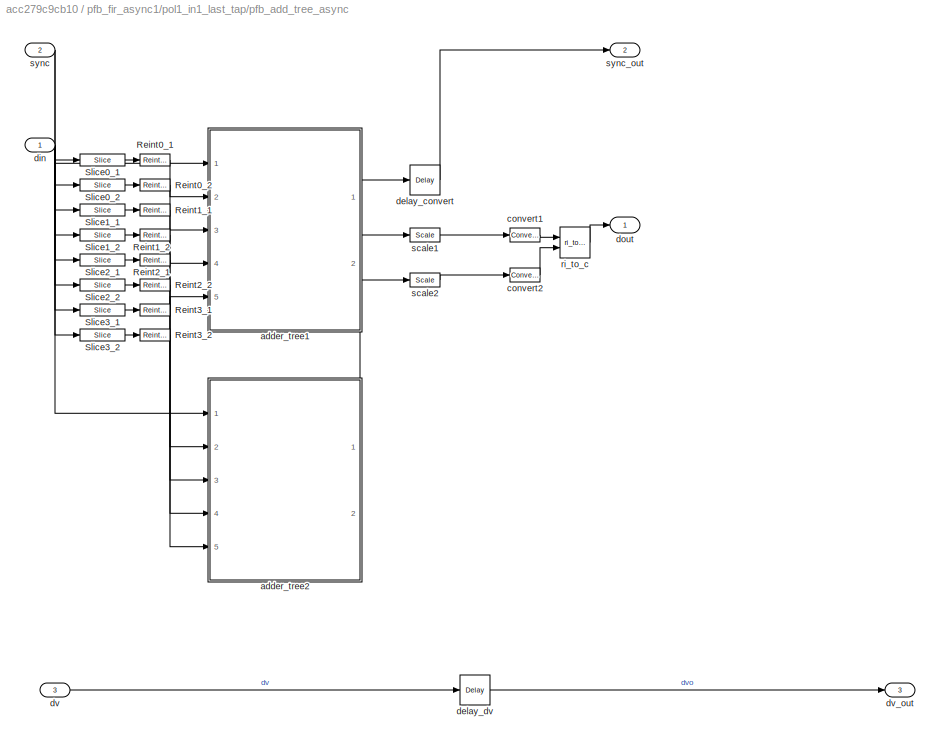
BLOCK [SubSystem] pfb_fir_async1/pol1_in1_last_tap/pfb_add_tree_async
  AttributesFormatString = input(1), taps(4), add_lat(1)
  FunctionWithSeparateData = off
  MaskHideContents = off
  MinAlgLoopOccurrences = off
  Opaque = off
  Ports = [3, 3]
  PropExecContextOutsideSubsystem = off
  RTWSystemCode = Auto
  RequestExecContextInheritance = off
  UserDataPersistent = on
BLOCK [Reference] pfb_fir_async1/pol1_in1_last_tap/pfb_add_tree_async/Reint0_1  REF=xbsIndex_r4/Reinterpret
  Ports = [1, 1]
  SourceBlock = xbsIndex_r4/Reinterpret
  SourceType = Xilinx Type Reinterpreter Block
  arith_type = Signed  (2's comp)
  bin_pt = coeff_bits + data_in_bits - 2
  block_type = reinterpret
  block_version = 11.4
  force_arith_type = on
  force_bin_pt = on
  has_advanced_control = 0
  sg_icon_stat = 30,12,1,1,white,blue,0,6b04d0b0,right,,[ ],[ ]
  sggui_pos = 20,44,374,364
BLOCK [Reference] pfb_fir_async1/pol1_in1_last_tap/pfb_add_tree_async/Reint0_2  REF=xbsIndex_r4/Reinterpret
  Ports = [1, 1]
  SourceBlock = xbsIndex_r4/Reinterpret
  SourceType = Xilinx Type Reinterpreter Block
  arith_type = Signed  (2's comp)
  bin_pt = coeff_bits + data_in_bits - 2
  block_type = reinterpret
  block_version = 11.4
  force_arith_type = on
  force_bin_pt = on
  has_advanced_control = 0
  sg_icon_stat = 30,12,1,1,white,blue,0,6b04d0b0,right,,[ ],[ ]
  sggui_pos = -1,-1,-1,-1
BLOCK [Reference] pfb_fir_async1/pol1_in1_last_tap/pfb_add_tree_async/Reint1_1  REF=xbsIndex_r4/Reinterpret
  Ports = [1, 1]
  SourceBlock = xbsIndex_r4/Reinterpret
  SourceType = Xilinx Type Reinterpreter Block
  arith_type = Signed  (2's comp)
  bin_pt = coeff_bits + data_in_bits - 2
  block_type = reinterpret
  block_version = 11.4
  force_arith_type = on
  force_bin_pt = on
  has_advanced_control = 0
  sg_icon_stat = 30,12,1,1,white,blue,0,6b04d0b0,right,,[ ],[ ]
  sggui_pos = -1,-1,-1,-1
BLOCK [Reference] pfb_fir_async1/pol1_in1_last_tap/pfb_add_tree_async/Reint1_2  REF=xbsIndex_r4/Reinterpret
  Ports = [1, 1]
  SourceBlock = xbsIndex_r4/Reinterpret
  SourceType = Xilinx Type Reinterpreter Block
  arith_type = Signed  (2's comp)
  bin_pt = coeff_bits + data_in_bits - 2
  block_type = reinterpret
  block_version = 11.4
  force_arith_type = on
  force_bin_pt = on
  has_advanced_control = 0
  sg_icon_stat = 30,12,1,1,white,blue,0,6b04d0b0,right,,[ ],[ ]
  sggui_pos = -1,-1,-1,-1
BLOCK [Reference] pfb_fir_async1/pol1_in1_last_tap/pfb_add_tree_async/Reint2_1  REF=xbsIndex_r4/Reinterpret
  Ports = [1, 1]
  SourceBlock = xbsIndex_r4/Reinterpret
  SourceType = Xilinx Type Reinterpreter Block
  arith_type = Signed  (2's comp)
  bin_pt = coeff_bits + data_in_bits - 2
  block_type = reinterpret
  force_arith_type = on
  force_bin_pt = on
  has_advanced_control = 0
  sg_icon_stat = 30,12,1,1,white,blue,0,6b04d0b0,right,,[ ],[ ]
  sggui_pos = -1,-1,-1,-1
BLOCK [Reference] pfb_fir_async1/pol1_in1_last_tap/pfb_add_tree_async/Reint2_2  REF=xbsIndex_r4/Reinterpret
  Ports = [1, 1]
  SourceBlock = xbsIndex_r4/Reinterpret
  SourceType = Xilinx Type Reinterpreter Block
  arith_type = Signed  (2's comp)
  bin_pt = coeff_bits + data_in_bits - 2
  block_type = reinterpret
  force_arith_type = on
  force_bin_pt = on
  has_advanced_control = 0
  sg_icon_stat = 30,12,1,1,white,blue,0,6b04d0b0,right,,[ ],[ ]
  sggui_pos = -1,-1,-1,-1
BLOCK [Reference] pfb_fir_async1/pol1_in1_last_tap/pfb_add_tree_async/Reint3_1  REF=xbsIndex_r4/Reinterpret
  Ports = [1, 1]
  SourceBlock = xbsIndex_r4/Reinterpret
  SourceType = Xilinx Type Reinterpreter Block
  arith_type = Signed  (2's comp)
  bin_pt = coeff_bits + data_in_bits - 2
  block_type = reinterpret
  force_arith_type = on
  force_bin_pt = on
  has_advanced_control = 0
  sg_icon_stat = 30,12,1,1,white,blue,0,6b04d0b0,right,,[ ],[ ]
  sggui_pos = -1,-1,-1,-1
BLOCK [Reference] pfb_fir_async1/pol1_in1_last_tap/pfb_add_tree_async/Reint3_2  REF=xbsIndex_r4/Reinterpret
  Ports = [1, 1]
  SourceBlock = xbsIndex_r4/Reinterpret
  SourceType = Xilinx Type Reinterpreter Block
  arith_type = Signed  (2's comp)
  bin_pt = coeff_bits + data_in_bits - 2
  block_type = reinterpret
  force_arith_type = on
  force_bin_pt = on
  has_advanced_control = 0
  sg_icon_stat = 30,12,1,1,white,blue,0,6b04d0b0,right,,[ ],[ ]
  sggui_pos = -1,-1,-1,-1
BLOCK [Reference] pfb_fir_async1/pol1_in1_last_tap/pfb_add_tree_async/Slice0_1  REF=xbsIndex_r4/Slice
  Ports = [1, 1]
  SourceBlock = xbsIndex_r4/Slice
  SourceType = Xilinx Bit Slice Extractor Block
  base0 = MSB of Input
  base1 = MSB of Input
  bit0 = 0
  bit1 = 0
  block_type = slice
  block_version = 11.4
  boolean_output = off
  dbl_ovrd = off
  has_advanced_control = 0
  mode = Upper Bit Location + Width
  nbits = coeff_bits + data_in_bits
  sg_icon_stat = 45,12,1,1,white,blue,0,1fd851a7,right,,[ ],[ ]
  sggui_pos = 20,44,540,482
BLOCK [Reference] pfb_fir_async1/pol1_in1_last_tap/pfb_add_tree_async/Slice0_2  REF=xbsIndex_r4/Slice
  Ports = [1, 1]
  SourceBlock = xbsIndex_r4/Slice
  SourceType = Xilinx Bit Slice Extractor Block
  base0 = MSB of Input
  base1 = MSB of Input
  bit0 = 0
  bit1 = -52
  block_type = slice
  block_version = 11.4
  boolean_output = off
  dbl_ovrd = off
  has_advanced_control = 0
  mode = Upper Bit Location + Width
  nbits = coeff_bits + data_in_bits
  sg_icon_stat = 45,12,1,1,white,blue,0,1fd851a7,right,,[ ],[ ]
  sggui_pos = 20,44,540,482
BLOCK [Reference] pfb_fir_async1/pol1_in1_last_tap/pfb_add_tree_async/Slice1_1  REF=xbsIndex_r4/Slice
  Ports = [1, 1]
  SourceBlock = xbsIndex_r4/Slice
  SourceType = Xilinx Bit Slice Extractor Block
  base0 = MSB of Input
  base1 = MSB of Input
  bit0 = 0
  bit1 = -104
  block_type = slice
  block_version = 11.4
  boolean_output = off
  dbl_ovrd = off
  has_advanced_control = 0
  mode = Upper Bit Location + Width
  nbits = coeff_bits + data_in_bits
  sg_icon_stat = 45,12,1,1,white,blue,0,1fd851a7,right,,[ ],[ ]
  sggui_pos = -1,-1,-1,-1
BLOCK [Reference] pfb_fir_async1/pol1_in1_last_tap/pfb_add_tree_async/Slice1_2  REF=xbsIndex_r4/Slice
  Ports = [1, 1]
  SourceBlock = xbsIndex_r4/Slice
  SourceType = Xilinx Bit Slice Extractor Block
  base0 = MSB of Input
  base1 = MSB of Input
  bit0 = 0
  bit1 = -156
  block_type = slice
  block_version = 11.4
  boolean_output = off
  dbl_ovrd = off
  has_advanced_control = 0
  mode = Upper Bit Location + Width
  nbits = coeff_bits + data_in_bits
  sg_icon_stat = 45,12,1,1,white,blue,0,1fd851a7,right,,[ ],[ ]
  sggui_pos = -1,-1,-1,-1
BLOCK [Reference] pfb_fir_async1/pol1_in1_last_tap/pfb_add_tree_async/Slice2_1  REF=xbsIndex_r4/Slice
  Ports = [1, 1]
  SourceBlock = xbsIndex_r4/Slice
  SourceType = Xilinx Bit Slice Extractor Block
  base0 = MSB of Input
  base1 = MSB of Input
  bit0 = 0
  bit1 = -208
  block_type = slice
  boolean_output = off
  dbl_ovrd = off
  has_advanced_control = 0
  mode = Upper Bit Location + Width
  nbits = coeff_bits + data_in_bits
  sg_icon_stat = 45,12,1,1,white,blue,0,1fd851a7,right,,[ ],[ ]
  sggui_pos = -1,-1,-1,-1
BLOCK [Reference] pfb_fir_async1/pol1_in1_last_tap/pfb_add_tree_async/Slice2_2  REF=xbsIndex_r4/Slice
  Ports = [1, 1]
  SourceBlock = xbsIndex_r4/Slice
  SourceType = Xilinx Bit Slice Extractor Block
  base0 = MSB of Input
  base1 = MSB of Input
  bit0 = 0
  bit1 = -260
  block_type = slice
  boolean_output = off
  dbl_ovrd = off
  has_advanced_control = 0
  mode = Upper Bit Location + Width
  nbits = coeff_bits + data_in_bits
  sg_icon_stat = 45,12,1,1,white,blue,0,1fd851a7,right,,[ ],[ ]
  sggui_pos = -1,-1,-1,-1
BLOCK [Reference] pfb_fir_async1/pol1_in1_last_tap/pfb_add_tree_async/Slice3_1  REF=xbsIndex_r4/Slice
  Ports = [1, 1]
  SourceBlock = xbsIndex_r4/Slice
  SourceType = Xilinx Bit Slice Extractor Block
  base0 = MSB of Input
  base1 = MSB of Input
  bit0 = 0
  bit1 = -312
  block_type = slice
  boolean_output = off
  dbl_ovrd = off
  has_advanced_control = 0
  mode = Upper Bit Location + Width
  nbits = coeff_bits + data_in_bits
  sg_icon_stat = 45,12,1,1,white,blue,0,1fd851a7,right,,[ ],[ ]
  sggui_pos = -1,-1,-1,-1
BLOCK [Reference] pfb_fir_async1/pol1_in1_last_tap/pfb_add_tree_async/Slice3_2  REF=xbsIndex_r4/Slice
  Ports = [1, 1]
  SourceBlock = xbsIndex_r4/Slice
  SourceType = Xilinx Bit Slice Extractor Block
  base0 = MSB of Input
  base1 = MSB of Input
  bit0 = 0
  bit1 = -364
  block_type = slice
  boolean_output = off
  dbl_ovrd = off
  has_advanced_control = 0
  mode = Upper Bit Location + Width
  nbits = coeff_bits + data_in_bits
  sg_icon_stat = 45,12,1,1,white,blue,0,1fd851a7,right,,[ ],[ ]
  sggui_pos = -1,-1,-1,-1
BLOCK [SubSystem] pfb_fir_async1/pol1_in1_last_tap/pfb_add_tree_async/adder_tree1
  AncestorBlock = casper_library_misc/adder_tree
  AttributesFormatString = latency 2
  FunctionWithSeparateData = off
  MaskHideContents = off
  MinAlgLoopOccurrences = off
  Opaque = off
  Ports = [5, 2]
  PropExecContextOutsideSubsystem = off
  RTWSystemCode = Auto
  RequestExecContextInheritance = off
  UserDataPersistent = on
BLOCK [Reference] pfb_fir_async1/pol1_in1_last_tap/pfb_add_tree_async/adder_tree1/addr1  REF=xbsIndex_r4/AddSub
  Ports = [2, 1]
  SourceBlock = xbsIndex_r4/AddSub
  SourceType = Xilinx Adder/Subtracter Block
  arith_type = Signed  (2's comp)
  bin_pt = 50
  block_type = addsub
  block_version = 11.4
  dbl_ovrd = off
  en = off
  has_advanced_control = 0
  hw_selection = Fabric
  latency = 1
  mode = Addition
  n_bits = 52
  overflow = Wrap
  pipelined = on
  precision = User Defined
  quantization = Truncate
  sg_icon_stat = 40,60,2,1,white,blue,0,e85d8a90,right,,[ ],[ ]
  sggui_pos = 23,125,419,344
  use_behavioral_HDL = off
  use_carryin = off
  use_carryout = off
  use_rpm = on
  xl_area = [0,0,0,0,0,0,0]
  xl_use_area = off
BLOCK [Reference] pfb_fir_async1/pol1_in1_last_tap/pfb_add_tree_async/adder_tree1/addr2  REF=xbsIndex_r4/AddSub
  Ports = [2, 1]
  SourceBlock = xbsIndex_r4/AddSub
  SourceType = Xilinx Adder/Subtracter Block
  arith_type = Signed  (2's comp)
  bin_pt = 50
  block_type = addsub
  dbl_ovrd = off
  en = off
  has_advanced_control = 0
  hw_selection = Fabric
  latency = 1
  mode = Addition
  n_bits = 52
  overflow = Wrap
  pipelined = on
  precision = User Defined
  quantization = Truncate
  sg_icon_stat = 40,60,2,1,white,blue,0,e85d8a90,right,,[ ],[ ]
  sggui_pos = -1,-1,-1,-1
  use_behavioral_HDL = off
  use_carryin = off
  use_carryout = off
  use_rpm = on
  xl_area = [0,0,0,0,0,0,0]
  xl_use_area = off
BLOCK [Reference] pfb_fir_async1/pol1_in1_last_tap/pfb_add_tree_async/adder_tree1/addr3  REF=xbsIndex_r4/AddSub
  Ports = [2, 1]
  SourceBlock = xbsIndex_r4/AddSub
  SourceType = Xilinx Adder/Subtracter Block
  arith_type = Signed  (2's comp)
  bin_pt = 50
  block_type = addsub
  dbl_ovrd = off
  en = off
  has_advanced_control = 0
  hw_selection = Fabric
  latency = 1
  mode = Addition
  n_bits = 52
  overflow = Wrap
  pipelined = on
  precision = User Defined
  quantization = Truncate
  sg_icon_stat = 40,60,2,1,white,blue,0,e85d8a90,right,,[ ],[ ]
  sggui_pos = -1,-1,-1,-1
  use_behavioral_HDL = off
  use_carryin = off
  use_carryout = off
  use_rpm = on
  xl_area = [0,0,0,0,0,0,0]
  xl_use_area = off
BLOCK [Inport] pfb_fir_async1/pol1_in1_last_tap/pfb_add_tree_async/adder_tree1/din1
  IconDisplay = Port number
  Port = 2
BLOCK [Inport] pfb_fir_async1/pol1_in1_last_tap/pfb_add_tree_async/adder_tree1/din2
  IconDisplay = Port number
  Port = 3
BLOCK [Inport] pfb_fir_async1/pol1_in1_last_tap/pfb_add_tree_async/adder_tree1/din3
  IconDisplay = Port number
  Port = 4
BLOCK [Inport] pfb_fir_async1/pol1_in1_last_tap/pfb_add_tree_async/adder_tree1/din4
  IconDisplay = Port number
  Port = 5
BLOCK [Outport] pfb_fir_async1/pol1_in1_last_tap/pfb_add_tree_async/adder_tree1/dout
  IconDisplay = Port number
  Port = 2
BLOCK [Inport] pfb_fir_async1/pol1_in1_last_tap/pfb_add_tree_async/adder_tree1/sync
  IconDisplay = Port number
BLOCK [Reference] pfb_fir_async1/pol1_in1_last_tap/pfb_add_tree_async/adder_tree1/sync_delay  REF=xbsIndex_r4/Delay
  Ports = [1, 1]
  SourceBlock = xbsIndex_r4/Delay
  SourceType = Xilinx Delay Block
  block_type = delay
  block_version = 11.4
  dbl_ovrd = off
  en = off
  has_advanced_control = 0
  infoedit = Hardware notes: A delay line is a chain, each link of which is an SRL16 followed by a flip-flop.
  infoeditControl = Selection of Reset will increase slice count due to use of real FFs and instead of SRLs
  latency = 2
  reg_retiming = on
  rst = off
  sg_icon_stat = 30,30,1,1,white,blue,0,85ce9542,right,,[ ],[ ]
  sggui_pos = 21,71,419,315
  xl_area = [0,0,0,0,0,0,0]
  xl_use_area = off
BLOCK [Outport] pfb_fir_async1/pol1_in1_last_tap/pfb_add_tree_async/adder_tree1/sync_out
  IconDisplay = Port number
BLOCK [SubSystem] pfb_fir_async1/pol1_in1_last_tap/pfb_add_tree_async/adder_tree2
  AncestorBlock = casper_library_misc/adder_tree
  AttributesFormatString = latency 2
  FunctionWithSeparateData = off
  MaskHideContents = off
  MinAlgLoopOccurrences = off
  Opaque = off
  Ports = [5, 2]
  PropExecContextOutsideSubsystem = off
  RTWSystemCode = Auto
  RequestExecContextInheritance = off
  UserDataPersistent = on
BLOCK [Reference] pfb_fir_async1/pol1_in1_last_tap/pfb_add_tree_async/adder_tree2/addr1  REF=xbsIndex_r4/AddSub
  Ports = [2, 1]
  SourceBlock = xbsIndex_r4/AddSub
  SourceType = Xilinx Adder/Subtracter Block
  arith_type = Signed  (2's comp)
  bin_pt = 50
  block_type = addsub
  block_version = 11.4
  dbl_ovrd = off
  en = off
  has_advanced_control = 0
  hw_selection = Fabric
  latency = 1
  mode = Addition
  n_bits = 52
  overflow = Wrap
  pipelined = on
  precision = User Defined
  quantization = Truncate
  sg_icon_stat = 40,60,2,1,white,blue,0,e85d8a90,right,,[ ],[ ]
  sggui_pos = 23,125,419,344
  use_behavioral_HDL = off
  use_carryin = off
  use_carryout = off
  use_rpm = on
  xl_area = [0,0,0,0,0,0,0]
  xl_use_area = off
BLOCK [Reference] pfb_fir_async1/pol1_in1_last_tap/pfb_add_tree_async/adder_tree2/addr2  REF=xbsIndex_r4/AddSub
  Ports = [2, 1]
  SourceBlock = xbsIndex_r4/AddSub
  SourceType = Xilinx Adder/Subtracter Block
  arith_type = Signed  (2's comp)
  bin_pt = 50
  block_type = addsub
  dbl_ovrd = off
  en = off
  has_advanced_control = 0
  hw_selection = Fabric
  latency = 1
  mode = Addition
  n_bits = 52
  overflow = Wrap
  pipelined = on
  precision = User Defined
  quantization = Truncate
  sg_icon_stat = 40,60,2,1,white,blue,0,e85d8a90,right,,[ ],[ ]
  sggui_pos = -1,-1,-1,-1
  use_behavioral_HDL = off
  use_carryin = off
  use_carryout = off
  use_rpm = on
  xl_area = [0,0,0,0,0,0,0]
  xl_use_area = off
BLOCK [Reference] pfb_fir_async1/pol1_in1_last_tap/pfb_add_tree_async/adder_tree2/addr3  REF=xbsIndex_r4/AddSub
  Ports = [2, 1]
  SourceBlock = xbsIndex_r4/AddSub
  SourceType = Xilinx Adder/Subtracter Block
  arith_type = Signed  (2's comp)
  bin_pt = 50
  block_type = addsub
  dbl_ovrd = off
  en = off
  has_advanced_control = 0
  hw_selection = Fabric
  latency = 1
  mode = Addition
  n_bits = 52
  overflow = Wrap
  pipelined = on
  precision = User Defined
  quantization = Truncate
  sg_icon_stat = 40,60,2,1,white,blue,0,e85d8a90,right,,[ ],[ ]
  sggui_pos = -1,-1,-1,-1
  use_behavioral_HDL = off
  use_carryin = off
  use_carryout = off
  use_rpm = on
  xl_area = [0,0,0,0,0,0,0]
  xl_use_area = off
BLOCK [Inport] pfb_fir_async1/pol1_in1_last_tap/pfb_add_tree_async/adder_tree2/din1
  IconDisplay = Port number
  Port = 2
BLOCK [Inport] pfb_fir_async1/pol1_in1_last_tap/pfb_add_tree_async/adder_tree2/din2
  IconDisplay = Port number
  Port = 3
BLOCK [Inport] pfb_fir_async1/pol1_in1_last_tap/pfb_add_tree_async/adder_tree2/din3
  IconDisplay = Port number
  Port = 4
BLOCK [Inport] pfb_fir_async1/pol1_in1_last_tap/pfb_add_tree_async/adder_tree2/din4
  IconDisplay = Port number
  Port = 5
BLOCK [Outport] pfb_fir_async1/pol1_in1_last_tap/pfb_add_tree_async/adder_tree2/dout
  IconDisplay = Port number
  Port = 2
BLOCK [Inport] pfb_fir_async1/pol1_in1_last_tap/pfb_add_tree_async/adder_tree2/sync
  IconDisplay = Port number
BLOCK [Reference] pfb_fir_async1/pol1_in1_last_tap/pfb_add_tree_async/adder_tree2/sync_delay  REF=xbsIndex_r4/Delay
  Ports = [1, 1]
  SourceBlock = xbsIndex_r4/Delay
  SourceType = Xilinx Delay Block
  block_type = delay
  block_version = 11.4
  dbl_ovrd = off
  en = off
  has_advanced_control = 0
  infoedit = Hardware notes: A delay line is a chain, each link of which is an SRL16 followed by a flip-flop.
  infoeditControl = Selection of Reset will increase slice count due to use of real FFs and instead of SRLs
  latency = 2
  reg_retiming = on
  rst = off
  sg_icon_stat = 30,30,1,1,white,blue,0,85ce9542,right,,[ ],[ ]
  sggui_pos = 21,71,419,315
  xl_area = [0,0,0,0,0,0,0]
  xl_use_area = off
BLOCK [Outport] pfb_fir_async1/pol1_in1_last_tap/pfb_add_tree_async/adder_tree2/sync_out
  IconDisplay = Port number
BLOCK [Reference] pfb_fir_async1/pol1_in1_last_tap/pfb_add_tree_async/convert1  REF=xbsIndex_r4/Convert
  Ports = [1, 1]
  SourceBlock = xbsIndex_r4/Convert
  SourceType = Xilinx Type Converter Block
  arith_type = Signed  (2's comp)
  bin_pt = data_out_bits-1
  block_type = convert
  block_version = 11.4
  dbl_ovrd = off
  en = off
  exp_bits = 8
  float_type = Single
  fraction_bits = 24
  gui_display_data_type = Fixed-point
  has_advanced_control = 0
  infoedit = Hardware notes: rounding and saturating require hardware resources; truncating and wrapping do not.
  latency = add_latency
  n_bits = data_out_bits
  overflow = Wrap
  pipeline = on
  quantization = Truncate
  sg_icon_stat = 30,14,1,1,white,blue,0,0c6bad53,right,,[ ],[ ]
  sggui_pos = 20,44,538,429
  xl_area = [0,0,0,0,0,0,0]
  xl_use_area = off
BLOCK [Reference] pfb_fir_async1/pol1_in1_last_tap/pfb_add_tree_async/convert2  REF=xbsIndex_r4/Convert
  Ports = [1, 1]
  SourceBlock = xbsIndex_r4/Convert
  SourceType = Xilinx Type Converter Block
  arith_type = Signed  (2's comp)
  bin_pt = data_out_bits-1
  block_type = convert
  block_version = 11.4
  dbl_ovrd = off
  en = off
  exp_bits = 8
  float_type = Single
  fraction_bits = 24
  gui_display_data_type = Fixed-point
  has_advanced_control = 0
  infoedit = Hardware notes: rounding and saturating require hardware resources; truncating and wrapping do not.
  latency = add_latency
  n_bits = data_out_bits
  overflow = Wrap
  pipeline = on
  quantization = Truncate
  sg_icon_stat = 30,14,1,1,white,blue,0,0c6bad53,right,,[ ],[ ]
  sggui_pos = 20,44,538,429
  xl_area = [0,0,0,0,0,0,0]
  xl_use_area = off
BLOCK [Reference] pfb_fir_async1/pol1_in1_last_tap/pfb_add_tree_async/delay_convert  REF=xbsIndex_r4/Delay
  Ports = [1, 1]
  SourceBlock = xbsIndex_r4/Delay
  SourceType = Xilinx Delay Block
  block_type = delay
  block_version = 11.4
  dbl_ovrd = off
  en = off
  has_advanced_control = 0
  infoedit = Hardware notes: A delay line is a chain, each link of which is an SRL16 followed by a flip-flop.
  infoeditControl = Selection of Reset will increase slice count due to use of real FFs and instead of SRLs
  latency = add_latency
  reg_retiming = on
  rst = off
  sg_icon_stat = 30,30,1,1,white,blue,0,07b98262,right,,[ ],[ ]
  sggui_pos = 20,44,419,315
  xl_area = [0,0,0,0,0,0,0]
  xl_use_area = off
BLOCK [Reference] pfb_fir_async1/pol1_in1_last_tap/pfb_add_tree_async/delay_dv  REF=xbsIndex_r4/Delay
  Ports = [1, 1]
  SourceBlock = xbsIndex_r4/Delay
  SourceType = Xilinx Delay Block
  block_type = delay
  block_version = 11.4
  dbl_ovrd = off
  en = off
  has_advanced_control = 0
  infoedit = Hardware notes: A delay line is a chain, each link of which is an SRL16 followed by a flip-flop.
  infoeditControl = Selection of Reset will increase slice count due to use of real FFs and instead of SRLs
  latency = 3
  reg_retiming = on
  rst = off
  sg_icon_stat = 30,30,1,1,white,blue,0,83e6bb61,right,,[ ],[ ]
  sggui_pos = 20,44,419,315
  xl_area = [0,0,0,0,0,0,0]
  xl_use_area = off
BLOCK [Inport] pfb_fir_async1/pol1_in1_last_tap/pfb_add_tree_async/din
  IconDisplay = Port number
BLOCK [Outport] pfb_fir_async1/pol1_in1_last_tap/pfb_add_tree_async/dout
  IconDisplay = Port number
BLOCK [Inport] pfb_fir_async1/pol1_in1_last_tap/pfb_add_tree_async/dv
  IconDisplay = Port number
  Port = 3
BLOCK [Outport] pfb_fir_async1/pol1_in1_last_tap/pfb_add_tree_async/dv_out
  IconDisplay = Port number
  Port = 3
BLOCK [Reference] pfb_fir_async1/pol1_in1_last_tap/pfb_add_tree_async/ri_to_c  REF=casper_library_misc/ri_to_c  (lib defined in mdl_357510c33b49, mdl_57b5f564ae26, +4 more)
  Ports = [2, 1]
  SourceBlock = casper_library_misc/ri_to_c
  SourceType = ri_to_c
  UserDataPersistent = on
BLOCK [Reference] pfb_fir_async1/pol1_in1_last_tap/pfb_add_tree_async/scale1  REF=xbsIndex_r4/Scale
  Ports = [1, 1]
  SourceBlock = xbsIndex_r4/Scale
  SourceType = Xilinx Input Scaler Block
  block_type = scale
  block_version = 11.4
  dbl_ovrd = off
  has_advanced_control = 0
  infoedit = Scales input by a power of two by adjusting the binary point position.<br><br>Hardware notes: In hardware this block costs nothing.
  scale_factor = -1
  sg_icon_stat = 30,14,1,1,white,blue,0,315b7d78,right,,[ ],[ ]
  sggui_pos = -1,-1,-1,-1
BLOCK [Reference] pfb_fir_async1/pol1_in1_last_tap/pfb_add_tree_async/scale2  REF=xbsIndex_r4/Scale
  Ports = [1, 1]
  SourceBlock = xbsIndex_r4/Scale
  SourceType = Xilinx Input Scaler Block
  block_type = scale
  block_version = 11.4
  dbl_ovrd = off
  has_advanced_control = 0
  infoedit = Scales input by a power of two by adjusting the binary point position.<br><br>Hardware notes: In hardware this block costs nothing.
  scale_factor = -1
  sg_icon_stat = 30,14,1,1,white,blue,0,315b7d78,right,,[ ],[ ]
  sggui_pos = 20,44,348,233
BLOCK [Inport] pfb_fir_async1/pol1_in1_last_tap/pfb_add_tree_async/sync
  IconDisplay = Port number
  Port = 2
BLOCK [Outport] pfb_fir_async1/pol1_in1_last_tap/pfb_add_tree_async/sync_out
  IconDisplay = Port number
  Port = 2
BLOCK [SubSystem] pfb_fir_async1/pol1_in1_last_tap/ri_to_c
  FunctionWithSeparateData = off
  MaskHideContents = off
  MinAlgLoopOccurrences = off
  Opaque = off
  Ports = [2, 1]
  PropExecContextOutsideSubsystem = off
  RTWSystemCode = Auto
  RequestExecContextInheritance = off
BLOCK [Reference] pfb_fir_async1/pol1_in1_last_tap/ri_to_c/Concat  REF=xbsIndex_r4/Concat
  Ports = [2, 1]
  SourceBlock = xbsIndex_r4/Concat
  SourceType = Xilinx Bus Concatenator Block
  block_type = concat
  block_version = 9.1.01
  dbl_ovrd = off
  has_advanced_control = 0
  infoedit = Concatenates two or more inputs.  Output will be cast to an unsigned value with the binary point at zero.
  num_inputs = 2
  sg_icon_stat = 50,55,2,1,white,blue,0,16398980,right,,[ ],[ ]
  sggui_pos = -1,-1,-1,-1
BLOCK [Reference] pfb_fir_async1/pol1_in1_last_tap/ri_to_c/Reinterpret  REF=xbsIndex_r4/Reinterpret
  Ports = [1, 1]
  SourceBlock = xbsIndex_r4/Reinterpret
  SourceType = Xilinx Type Reinterpreter Block
  arith_type = Unsigned
  bin_pt = 0
  block_type = reinterpret
  block_version = 9.1.01
  force_arith_type = on
  force_bin_pt = on
  has_advanced_control = 0
  sg_icon_stat = 40,32,1,1,white,blue,0,6b04d0b0,right,,[ ],[ ]
  sggui_pos = -1,-1,-1,-1
BLOCK [Reference] pfb_fir_async1/pol1_in1_last_tap/ri_to_c/Reinterpret1  REF=xbsIndex_r4/Reinterpret
  Ports = [1, 1]
  SourceBlock = xbsIndex_r4/Reinterpret
  SourceType = Xilinx Type Reinterpreter Block
  arith_type = Unsigned
  bin_pt = 0
  block_type = reinterpret
  block_version = 9.1.01
  force_arith_type = on
  force_bin_pt = on
  has_advanced_control = 0
  sg_icon_stat = 40,32,1,1,white,blue,0,6b04d0b0,right,,[ ],[ ]
  sggui_pos = -1,-1,-1,-1
BLOCK [Outport] pfb_fir_async1/pol1_in1_last_tap/ri_to_c/c
  IconDisplay = Port number
BLOCK [Inport] pfb_fir_async1/pol1_in1_last_tap/ri_to_c/im
  IconDisplay = Port number
  Port = 2
BLOCK [Inport] pfb_fir_async1/pol1_in1_last_tap/ri_to_c/re
  IconDisplay = Port number
BLOCK [SubSystem] pfb_fir_async1/pol1_in1_last_tap/split_data
  AncestorBlock = casper_library_flow_control/bus_expand
  AttributesFormatString = 2 outputs
  FunctionWithSeparateData = off
  MaskHideContents = off
  MinAlgLoopOccurrences = off
  Opaque = off
  Ports = [1, 2]
  PropExecContextOutsideSubsystem = off
  RTWSystemCode = Auto
  RequestExecContextInheritance = off
  UserDataPersistent = on
BLOCK [Inport] pfb_fir_async1/pol1_in1_last_tap/split_data/bus_in
  IconDisplay = Port number
BLOCK [Outport] pfb_fir_async1/pol1_in1_last_tap/split_data/lsb_out1
  IconDisplay = Port number
  Port = 2
BLOCK [Outport] pfb_fir_async1/pol1_in1_last_tap/split_data/msb_out2
  IconDisplay = Port number
BLOCK [Reference] pfb_fir_async1/pol1_in1_last_tap/split_data/reinterpret1  REF=xbsIndex_r4/Reinterpret
  Ports = [1, 1]
  SourceBlock = xbsIndex_r4/Reinterpret
  SourceType = Xilinx Type Reinterpreter Block
  arith_type = Signed  (2's comp)
  bin_pt = 31
  block_type = reinterpret
  force_arith_type = on
  force_bin_pt = on
  has_advanced_control = 0
  sg_icon_stat = 50,20,1,1,white,blue,0,6b04d0b0,right,,[ ],[ ]
  sg_mask_display = fprintf('','COMMENT: begin icon graphics');\npatch([0 50 50 0 0 ],[0 0 20 20 0 ],[0.77 0.82 0.91 ]);\nplot([0 50 50 0 0 ],[0 0 20 20 0 ]);\npatch([20.55 23.44 25.44 27.44 29.44 25.44 22.55 20.55 ],[12.22 12.22 14.22 12.22 14.22 14.22 14.22 12.22 ],[1 1 1 ]);\npatch([22.55 25.44 23.44 20.55 22.55 ],[10.22 10.22 12.22 12.22 10.22 ],[0.931 0.946 0.973 ]);\npatch([20.55 23.44 25.44 22.55 20.55 ],[8.22 8.22...<+300ch>  <repeated x8 — deduplicated; at blocks: reinterpret1, reinterpret2>
  sggui_pos = -1,-1,-1,-1
BLOCK [Reference] pfb_fir_async1/pol1_in1_last_tap/split_data/reinterpret2  REF=xbsIndex_r4/Reinterpret
  Ports = [1, 1]
  SourceBlock = xbsIndex_r4/Reinterpret
  SourceType = Xilinx Type Reinterpreter Block
  arith_type = Signed  (2's comp)
  bin_pt = 31
  block_type = reinterpret
  force_arith_type = on
  force_bin_pt = on
  has_advanced_control = 0
  sg_icon_stat = 50,20,1,1,white,blue,0,6b04d0b0,right,,[ ],[ ]
  sggui_pos = -1,-1,-1,-1
BLOCK [Reference] pfb_fir_async1/pol1_in1_last_tap/split_data/slice1  REF=xbsIndex_r4/Slice
  Ports = [1, 1]
  SourceBlock = xbsIndex_r4/Slice
  SourceType = Xilinx Bit Slice Extractor Block
  base0 = LSB of Input
  base1 = MSB of Input
  bit0 = 0
  bit1 = -32
  block_type = slice
  boolean_output = off
  dbl_ovrd = off
  has_advanced_control = 0
  mode = Upper Bit Location + Width
  nbits = 32
  sg_icon_stat = 50,20,1,1,white,blue,0,1fd851a7,right,,[ ],[ ]
  sg_mask_display = fprintf('','COMMENT: begin icon graphics');\npatch([0 50 50 0 0 ],[0 0 20 20 0 ],[0.77 0.82 0.91 ]);\nplot([0 50 50 0 0 ],[0 0 20 20 0 ]);\npatch([20.55 23.44 25.44 27.44 29.44 25.44 22.55 20.55 ],[12.22 12.22 14.22 12.22 14.22 14.22 14.22 12.22 ],[1 1 1 ]);\npatch([22.55 25.44 23.44 20.55 22.55 ],[10.22 10.22 12.22 12.22 10.22 ],[0.931 0.946 0.973 ]);\npatch([20.55 23.44 25.44 22.55 20.55 ],[8.22 8.22...<+310ch>  <repeated x8 — deduplicated; at blocks: slice1, slice2>
  sggui_pos = 20,45,543,459
BLOCK [Reference] pfb_fir_async1/pol1_in1_last_tap/split_data/slice2  REF=xbsIndex_r4/Slice
  Ports = [1, 1]
  SourceBlock = xbsIndex_r4/Slice
  SourceType = Xilinx Bit Slice Extractor Block
  base0 = LSB of Input
  base1 = MSB of Input
  bit0 = 0
  bit1 = 0
  block_type = slice
  boolean_output = off
  dbl_ovrd = off
  has_advanced_control = 0
  mode = Upper Bit Location + Width
  nbits = 32
  sg_icon_stat = 50,20,1,1,white,blue,0,1fd851a7,right,,[ ],[ ]
  sggui_pos = 20,45,543,459
BLOCK [Inport] pfb_fir_async1/pol1_in1_last_tap/sync
  IconDisplay = Port number
  Port = 2
BLOCK [Outport] pfb_fir_async1/pol1_in1_last_tap/sync_out
  IconDisplay = Port number
  Port = 2
BLOCK [Inport] pfb_fir_async1/pol1_in1_last_tap/taps_in
  IconDisplay = Port number
  Port = 5
BLOCK [SubSystem] pfb_fir_async1/pol1_in1_tap1
  AncestorBlock = casper_library_pfbs/tap_async
  AttributesFormatString = tap(1/4)
  FunctionWithSeparateData = off
  MaskHideContents = off
  MinAlgLoopOccurrences = off
  Opaque = off
  Ports = [4, 5]
  PropExecContextOutsideSubsystem = off
  RTWSystemCode = Auto
  RequestExecContextInheritance = off
  UserDataPersistent = on
BLOCK [Reference] pfb_fir_async1/pol1_in1_tap1/Delay1  REF=xbsIndex_r4/Delay
  Ports = [1, 1]
  SourceBlock = xbsIndex_r4/Delay
  SourceType = Xilinx Delay Block
  block_type = delay
  block_version = 11.4
  dbl_ovrd = off
  en = off
  has_advanced_control = 0
  infoedit = Hardware notes: A delay line is a chain, each link of which is an SRL16 followed by a flip-flop.
  infoeditControl = Selection of Reset will increase slice count due to use of real FFs and instead of SRLs
  latency = bram_latency
  reg_retiming = on
  rst = off
  sg_icon_stat = 40,28,1,1,white,blue,0,83e6bb61,right,,[ ],[ ]
  sg_mask_display = fprintf('','COMMENT: begin icon graphics');\npatch([0 40 40 0 0 ],[0 0 28 28 0 ],[0.77 0.82 0.91 ]);\nplot([0 40 40 0 0 ],[0 0 28 28 0 ]);\npatch([11.1 16.88 20.88 24.88 28.88 20.88 15.1 11.1 ],[18.44 18.44 22.44 18.44 22.44 22.44 22.44 18.44 ],[1 1 1 ]);\npatch([15.1 20.88 16.88 11.1 15.1 ],[14.44 14.44 18.44 18.44 14.44 ],[0.931 0.946 0.973 ]);\npatch([11.1 16.88 20.88 15.1 11.1 ],[10.44 10.44 14.44 ...<+304ch>  <repeated x9 — deduplicated; at blocks: Delay1, Delay2, tapout_delay>
  sggui_pos = 20,44,419,315
  xl_area = [0,0,0,0,0,0,0]
  xl_use_area = off
BLOCK [Reference] pfb_fir_async1/pol1_in1_tap1/Delay2  REF=xbsIndex_r4/Delay
  Ports = [1, 1]
  SourceBlock = xbsIndex_r4/Delay
  SourceType = Xilinx Delay Block
  block_type = delay
  block_version = 11.4
  dbl_ovrd = off
  en = off
  has_advanced_control = 0
  infoedit = Hardware notes: A delay line is a chain, each link of which is an SRL16 followed by a flip-flop.
  infoeditControl = Selection of Reset will increase slice count due to use of real FFs and instead of SRLs
  latency = bram_latency
  reg_retiming = on
  rst = off
  sg_icon_stat = 40,28,1,1,white,blue,0,83e6bb61,right,,[ ],[ ]
  sggui_pos = 20,44,419,315
  xl_area = [0,0,0,0,0,0,0]
  xl_use_area = off
BLOCK [Reference] pfb_fir_async1/pol1_in1_tap1/Mult  REF=xbsIndex_r4/Mult
  Ports = [2, 1]
  SourceBlock = xbsIndex_r4/Mult
  SourceType = Xilinx Multiplier Block
  arith_type = Signed  (2's comp)
  bin_pt = 2
  block_type = mult
  block_version = 9.1.01
  dbl_ovrd = off
  en = off
  has_advanced_control = 0
  infoedit = Hardware notes: To use the internal pipeline stage of the dedicated multiplier you must select 'Pipeline for maximum performance'.
  latency = mult_latency
  n_bits = 8
  opt = Speed
  optimum_pipeline = off
  overflow = Wrap
  pipeline = on
  placement_style = Rectangular shape
  precision = Full
  quantization = Truncate
  sg_icon_stat = 50,51,2,1,white,blue,0,2fbe4d8a,right,,[ ],[ ]
  sggui_pos = 20,24,419,609
  use_behavioral_HDL = on
  use_embedded = off
  use_rpm = on
  xl_area = [0, 0, 0, 0, 0, 0, 0]
  xl_use_area = off
BLOCK [Reference] pfb_fir_async1/pol1_in1_tap1/Mult1  REF=xbsIndex_r4/Mult
  Ports = [2, 1]
  SourceBlock = xbsIndex_r4/Mult
  SourceType = Xilinx Multiplier Block
  arith_type = Signed  (2's comp)
  bin_pt = 2
  block_type = mult
  block_version = 9.1.01
  dbl_ovrd = off
  en = off
  has_advanced_control = 0
  infoedit = Hardware notes: To use the internal pipeline stage of the dedicated multiplier you must select 'Pipeline for maximum performance'.
  latency = mult_latency
  n_bits = 8
  opt = Speed
  optimum_pipeline = off
  overflow = Wrap
  pipeline = on
  placement_style = Rectangular shape
  precision = Full
  quantization = Truncate
  sg_icon_stat = 50,51,2,1,white,blue,0,2fbe4d8a,right,,[ ],[ ]
  sggui_pos = 20,24,419,609
  use_behavioral_HDL = on
  use_embedded = off
  use_rpm = on
  xl_area = [0, 0, 0, 0, 0, 0, 0]
  xl_use_area = off
BLOCK [Reference] pfb_fir_async1/pol1_in1_tap1/Single Port RAM  REF=xbsIndex_r4/Single Port RAM
  Ports = [3, 1]
  SourceBlock = xbsIndex_r4/Single Port RAM
  SourceType = Xilinx Single Port Random Access Memory Block
  block_type = spram
  block_version = 9.1.01
  dbl_ovrd = off
  depth = 2^(pfb_bits - simul_bits)
  distributed_mem = Block RAM
  en = off
  has_advanced_control = 0
  initVector = 0
  init_reg = 0
  latency = bram_latency
  optimize = Area
  rst = off
  sg_icon_stat = 65,54,3,1,white,blue,0,0b4315b4,right,,[ ],[ ]
  sg_mask_display = fprintf('','COMMENT: begin icon graphics');\npatch([0 65 65 0 0 ],[0 0 54 54 0 ],[0.77 0.82 0.91 ]);\nplot([0 65 65 0 0 ],[0 0 54 54 0 ]);\npatch([16.425 26.54 33.54 40.54 47.54 33.54 23.425 16.425 ],[34.77 34.77 41.77 34.77 41.77 41.77 41.77 34.77 ],[1 1 1 ]);\npatch([23.425 33.54 26.54 16.425 23.425 ],[27.77 27.77 34.77 34.77 27.77 ],[0.931 0.946 0.973 ]);\npatch([16.425 26.54 33.54 23.425 16.425 ],[...<+464ch>  <repeated x3 — deduplicated; at blocks: Single Port RAM>
  sggui_pos = 20,44,435,384
  write_mode = Read Before Write
  xl_area = [0, 0, 0, 0, 0, 0, 0]
  xl_use_area = off
BLOCK [Reference] pfb_fir_async1/pol1_in1_tap1/Slice  REF=xbsIndex_r4/Slice
  Ports = [1, 1]
  SourceBlock = xbsIndex_r4/Slice
  SourceType = Xilinx Bit Slice Extractor Block
  base0 = LSB of Input
  base1 = MSB of Input
  bit0 = 0
  bit1 = 0
  block_type = slice
  block_version = 9.1.01
  boolean_output = off
  dbl_ovrd = off
  has_advanced_control = 0
  mode = Lower Bit Location + Width
  nbits = coeff_bits
  sg_icon_stat = 45,28,1,1,white,blue,0,1fd851a7,right,,[ ],[ ]
  sggui_pos = 20,44,540,482
BLOCK [Reference] pfb_fir_async1/pol1_in1_tap1/Slice1  REF=xbsIndex_r4/Slice
  Ports = [1, 1]
  SourceBlock = xbsIndex_r4/Slice
  SourceType = Xilinx Bit Slice Extractor Block
  base0 = LSB of Input
  base1 = MSB of Input
  bit0 = coeff_bits
  bit1 = 0
  block_type = slice
  block_version = 9.1.01
  boolean_output = off
  dbl_ovrd = off
  has_advanced_control = 0
  mode = Two Bit Locations
  nbits = coeff_bits * (total_taps - 1)
  sg_icon_stat = 45,28,1,1,white,blue,0,1fd851a7,right,,[ ],[ ]
  sggui_pos = 20,44,540,482
BLOCK [Reference] pfb_fir_async1/pol1_in1_tap1/addr_ctr  REF=xbsIndex_r4/Counter
  Ports = [0, 1]
  SourceBlock = xbsIndex_r4/Counter
  SourceType = Xilinx Counter Block
  arith_type = Unsigned
  bin_pt = 0
  block_type = counter
  block_version = 9.1.01
  cnt_by_val = 1
  cnt_to = 0
  cnt_type = Free Running
  dbl_ovrd = off
  en = off
  explicit_period = on
  has_advanced_control = 0
  implementation = Fabric
  infoedit = Hardware notes: Free running counters are the least expensive in hardware.  A count limited counter is implemented by combining a counter with a comparator.
  load_pin = off
  n_bits = pfb_bits - simul_bits
  operation = Up
  period = 1
  rst = off
  sg_icon_stat = 40,40,0,1,white,blue,0,7ac47ef5,right,,[ ],[ ]
  sg_mask_display = fprintf('','COMMENT: begin icon graphics');\npatch([0 40 40 0 0 ],[0 0 40 40 0 ],[0.77 0.82 0.91 ]);\nplot([0 40 40 0 0 ],[0 0 40 40 0 ]);\npatch([8.875 16.1 21.1 26.1 31.1 21.1 13.875 8.875 ],[25.55 25.55 30.55 25.55 30.55 30.55 30.55 25.55 ],[1 1 1 ]);\npatch([13.875 21.1 16.1 8.875 13.875 ],[20.55 20.55 25.55 25.55 20.55 ],[0.931 0.946 0.973 ]);\npatch([8.875 16.1 21.1 13.875 8.875 ],[15.55 15.55 20...<+326ch>  <repeated x3 — deduplicated; at blocks: addr_ctr>
  sggui_pos = 20,24,419,748
  start_count = 0
  use_behavioral_HDL = on
  use_rpm = off
  xl_area = [0, 0, 0, 0, 0, 0, 0]
  xl_use_area = off
BLOCK [Outport] pfb_fir_async1/pol1_in1_tap1/coeff_out
  IconDisplay = Port number
  Port = 3
BLOCK [Inport] pfb_fir_async1/pol1_in1_tap1/coeffs
  IconDisplay = Port number
  Port = 3
BLOCK [Inport] pfb_fir_async1/pol1_in1_tap1/din
  IconDisplay = Port number
BLOCK [Outport] pfb_fir_async1/pol1_in1_tap1/dout
  IconDisplay = Port number
BLOCK [Outport] pfb_fir_async1/pol1_in1_tap1/dv_out
  IconDisplay = Port number
  Port = 4
BLOCK [Inport] pfb_fir_async1/pol1_in1_tap1/dvin
  IconDisplay = Port number
  Port = 4
BLOCK [Reference] pfb_fir_async1/pol1_in1_tap1/interpret_coeff  REF=xbsIndex_r4/Reinterpret
  Ports = [1, 1]
  SourceBlock = xbsIndex_r4/Reinterpret
  SourceType = Xilinx Type Reinterpreter Block
  arith_type = Signed  (2's comp)
  bin_pt = coeff_bits - 1
  block_type = reinterpret
  block_version = 9.1.01
  force_arith_type = on
  force_bin_pt = on
  has_advanced_control = 0
  sg_icon_stat = 40,32,1,1,white,blue,0,6b04d0b0,right,,[ ],[ ]
  sggui_pos = 20,44,374,364
BLOCK [SubSystem] pfb_fir_async1/pol1_in1_tap1/ri_to_c
  FunctionWithSeparateData = off
  MaskHideContents = off
  MinAlgLoopOccurrences = off
  Opaque = off
  Ports = [2, 1]
  PropExecContextOutsideSubsystem = off
  RTWSystemCode = Auto
  RequestExecContextInheritance = off
BLOCK [Reference] pfb_fir_async1/pol1_in1_tap1/ri_to_c/Concat  REF=xbsIndex_r4/Concat
  Ports = [2, 1]
  SourceBlock = xbsIndex_r4/Concat
  SourceType = Xilinx Bus Concatenator Block
  block_type = concat
  block_version = 9.1.01
  dbl_ovrd = off
  has_advanced_control = 0
  infoedit = Concatenates two or more inputs.  Output will be cast to an unsigned value with the binary point at zero.
  num_inputs = 2
  sg_icon_stat = 50,55,2,1,white,blue,0,16398980,right,,[ ],[ ]
  sggui_pos = -1,-1,-1,-1
BLOCK [Reference] pfb_fir_async1/pol1_in1_tap1/ri_to_c/Reinterpret  REF=xbsIndex_r4/Reinterpret
  Ports = [1, 1]
  SourceBlock = xbsIndex_r4/Reinterpret
  SourceType = Xilinx Type Reinterpreter Block
  arith_type = Unsigned
  bin_pt = 0
  block_type = reinterpret
  block_version = 9.1.01
  force_arith_type = on
  force_bin_pt = on
  has_advanced_control = 0
  sg_icon_stat = 40,32,1,1,white,blue,0,6b04d0b0,right,,[ ],[ ]
  sggui_pos = 20,44,374,364
BLOCK [Reference] pfb_fir_async1/pol1_in1_tap1/ri_to_c/Reinterpret1  REF=xbsIndex_r4/Reinterpret
  Ports = [1, 1]
  SourceBlock = xbsIndex_r4/Reinterpret
  SourceType = Xilinx Type Reinterpreter Block
  arith_type = Unsigned
  bin_pt = 0
  block_type = reinterpret
  block_version = 9.1.01
  force_arith_type = on
  force_bin_pt = on
  has_advanced_control = 0
  sg_icon_stat = 40,32,1,1,white,blue,0,6b04d0b0,right,,[ ],[ ]
  sggui_pos = -1,-1,-1,-1
BLOCK [Outport] pfb_fir_async1/pol1_in1_tap1/ri_to_c/c
  IconDisplay = Port number
BLOCK [Inport] pfb_fir_async1/pol1_in1_tap1/ri_to_c/im
  IconDisplay = Port number
  Port = 2
BLOCK [Inport] pfb_fir_async1/pol1_in1_tap1/ri_to_c/re
  IconDisplay = Port number
BLOCK [SubSystem] pfb_fir_async1/pol1_in1_tap1/split_data
  AncestorBlock = casper_library_flow_control/bus_expand
  AttributesFormatString = 2 outputs
  FunctionWithSeparateData = off
  MaskHideContents = off
  MinAlgLoopOccurrences = off
  Opaque = off
  Ports = [1, 2]
  PropExecContextOutsideSubsystem = off
  RTWSystemCode = Auto
  RequestExecContextInheritance = off
  UserDataPersistent = on
BLOCK [Inport] pfb_fir_async1/pol1_in1_tap1/split_data/bus_in
  IconDisplay = Port number
BLOCK [Outport] pfb_fir_async1/pol1_in1_tap1/split_data/lsb_out1
  IconDisplay = Port number
  Port = 2
BLOCK [Outport] pfb_fir_async1/pol1_in1_tap1/split_data/msb_out2
  IconDisplay = Port number
BLOCK [Reference] pfb_fir_async1/pol1_in1_tap1/split_data/reinterpret1  REF=xbsIndex_r4/Reinterpret
  Ports = [1, 1]
  SourceBlock = xbsIndex_r4/Reinterpret
  SourceType = Xilinx Type Reinterpreter Block
  arith_type = Signed  (2's comp)
  bin_pt = 31
  block_type = reinterpret
  force_arith_type = on
  force_bin_pt = on
  has_advanced_control = 0
  sg_icon_stat = 50,20,1,1,white,blue,0,6b04d0b0,right,,[ ],[ ]
  sggui_pos = -1,-1,-1,-1
BLOCK [Reference] pfb_fir_async1/pol1_in1_tap1/split_data/reinterpret2  REF=xbsIndex_r4/Reinterpret
  Ports = [1, 1]
  SourceBlock = xbsIndex_r4/Reinterpret
  SourceType = Xilinx Type Reinterpreter Block
  arith_type = Signed  (2's comp)
  bin_pt = 31
  block_type = reinterpret
  force_arith_type = on
  force_bin_pt = on
  has_advanced_control = 0
  sg_icon_stat = 50,20,1,1,white,blue,0,6b04d0b0,right,,[ ],[ ]
  sggui_pos = -1,-1,-1,-1
BLOCK [Reference] pfb_fir_async1/pol1_in1_tap1/split_data/slice1  REF=xbsIndex_r4/Slice
  Ports = [1, 1]
  SourceBlock = xbsIndex_r4/Slice
  SourceType = Xilinx Bit Slice Extractor Block
  base0 = LSB of Input
  base1 = MSB of Input
  bit0 = 0
  bit1 = -32
  block_type = slice
  boolean_output = off
  dbl_ovrd = off
  has_advanced_control = 0
  mode = Upper Bit Location + Width
  nbits = 32
  sg_icon_stat = 50,20,1,1,white,blue,0,1fd851a7,right,,[ ],[ ]
  sggui_pos = 20,45,543,459
BLOCK [Reference] pfb_fir_async1/pol1_in1_tap1/split_data/slice2  REF=xbsIndex_r4/Slice
  Ports = [1, 1]
  SourceBlock = xbsIndex_r4/Slice
  SourceType = Xilinx Bit Slice Extractor Block
  base0 = LSB of Input
  base1 = MSB of Input
  bit0 = 0
  bit1 = 0
  block_type = slice
  boolean_output = off
  dbl_ovrd = off
  has_advanced_control = 0
  mode = Upper Bit Location + Width
  nbits = 32
  sg_icon_stat = 50,20,1,1,white,blue,0,1fd851a7,right,,[ ],[ ]
  sggui_pos = 20,45,543,459
BLOCK [Inport] pfb_fir_async1/pol1_in1_tap1/sync
  IconDisplay = Port number
  Port = 2
BLOCK [Reference] pfb_fir_async1/pol1_in1_tap1/sync_delay  REF=casper_library_delays/sync_delay  (lib defined in mdl_259a08a3fac5, mdl_65009615caaa, +5 more)
  DelayLen = 2^(pfb_bits - simul_bits)
  Ports = [1, 1]
  SourceBlock = casper_library_delays/sync_delay
  SourceType = sync_delay
BLOCK [Outport] pfb_fir_async1/pol1_in1_tap1/sync_out
  IconDisplay = Port number
  Port = 2
BLOCK [Reference] pfb_fir_async1/pol1_in1_tap1/tapout_delay  REF=xbsIndex_r4/Delay
  Ports = [1, 1]
  SourceBlock = xbsIndex_r4/Delay
  SourceType = Xilinx Delay Block
  block_type = delay
  block_version = 11.4
  dbl_ovrd = off
  en = off
  has_advanced_control = 0
  infoedit = Hardware notes: A delay line is a chain, each link of which is an SRL16 followed by a flip-flop.
  infoeditControl = Selection of Reset will increase slice count due to use of real FFs and instead of SRLs
  latency = bram_latency * (total_taps - this_tap)
  reg_retiming = on
  rst = off
  sg_icon_stat = 40,28,1,1,white,blue,0,c2fef566,right,,[ ],[ ]
  sggui_pos = 934,344,419,315
  xl_area = [0,0,0,0,0,0,0]
  xl_use_area = off
BLOCK [Outport] pfb_fir_async1/pol1_in1_tap1/taps_out
  IconDisplay = Port number
  Port = 5
BLOCK [SubSystem] pfb_fir_async1/pol1_in1_tap2
  AncestorBlock = casper_library_pfbs/tap_async
  AttributesFormatString = tap(2/4)
  FunctionWithSeparateData = off
  MaskHideContents = off
  MinAlgLoopOccurrences = off
  Opaque = off
  Ports = [5, 5]
  PropExecContextOutsideSubsystem = off
  RTWSystemCode = Auto
  RequestExecContextInheritance = off
  UserDataPersistent = on
BLOCK [Reference] pfb_fir_async1/pol1_in1_tap2/Delay1  REF=xbsIndex_r4/Delay
  Ports = [1, 1]
  SourceBlock = xbsIndex_r4/Delay
  SourceType = Xilinx Delay Block
  block_type = delay
  block_version = 11.4
  dbl_ovrd = off
  en = off
  has_advanced_control = 0
  infoedit = Hardware notes: A delay line is a chain, each link of which is an SRL16 followed by a flip-flop.
  infoeditControl = Selection of Reset will increase slice count due to use of real FFs and instead of SRLs
  latency = bram_latency
  reg_retiming = on
  rst = off
  sg_icon_stat = 40,28,1,1,white,blue,0,83e6bb61,right,,[ ],[ ]
  sggui_pos = 20,44,419,315
  xl_area = [0,0,0,0,0,0,0]
  xl_use_area = off
BLOCK [Reference] pfb_fir_async1/pol1_in1_tap2/Delay2  REF=xbsIndex_r4/Delay
  Ports = [1, 1]
  SourceBlock = xbsIndex_r4/Delay
  SourceType = Xilinx Delay Block
  block_type = delay
  block_version = 11.4
  dbl_ovrd = off
  en = off
  has_advanced_control = 0
  infoedit = Hardware notes: A delay line is a chain, each link of which is an SRL16 followed by a flip-flop.
  infoeditControl = Selection of Reset will increase slice count due to use of real FFs and instead of SRLs
  latency = bram_latency
  reg_retiming = on
  rst = off
  sg_icon_stat = 40,28,1,1,white,blue,0,83e6bb61,right,,[ ],[ ]
  sggui_pos = 20,44,419,315
  xl_area = [0,0,0,0,0,0,0]
  xl_use_area = off
BLOCK [Reference] pfb_fir_async1/pol1_in1_tap2/Mult  REF=xbsIndex_r4/Mult
  Ports = [2, 1]
  SourceBlock = xbsIndex_r4/Mult
  SourceType = Xilinx Multiplier Block
  arith_type = Signed  (2's comp)
  bin_pt = 2
  block_type = mult
  block_version = 9.1.01
  dbl_ovrd = off
  en = off
  has_advanced_control = 0
  infoedit = Hardware notes: To use the internal pipeline stage of the dedicated multiplier you must select 'Pipeline for maximum performance'.
  latency = mult_latency
  n_bits = 8
  opt = Speed
  optimum_pipeline = off
  overflow = Wrap
  pipeline = on
  placement_style = Rectangular shape
  precision = Full
  quantization = Truncate
  sg_icon_stat = 50,51,2,1,white,blue,0,2fbe4d8a,right,,[ ],[ ]
  sggui_pos = 20,24,419,609
  use_behavioral_HDL = on
  use_embedded = off
  use_rpm = on
  xl_area = [0, 0, 0, 0, 0, 0, 0]
  xl_use_area = off
BLOCK [Reference] pfb_fir_async1/pol1_in1_tap2/Mult1  REF=xbsIndex_r4/Mult
  Ports = [2, 1]
  SourceBlock = xbsIndex_r4/Mult
  SourceType = Xilinx Multiplier Block
  arith_type = Signed  (2's comp)
  bin_pt = 2
  block_type = mult
  block_version = 9.1.01
  dbl_ovrd = off
  en = off
  has_advanced_control = 0
  infoedit = Hardware notes: To use the internal pipeline stage of the dedicated multiplier you must select 'Pipeline for maximum performance'.
  latency = mult_latency
  n_bits = 8
  opt = Speed
  optimum_pipeline = off
  overflow = Wrap
  pipeline = on
  placement_style = Rectangular shape
  precision = Full
  quantization = Truncate
  sg_icon_stat = 50,51,2,1,white,blue,0,2fbe4d8a,right,,[ ],[ ]
  sggui_pos = 20,24,419,609
  use_behavioral_HDL = on
  use_embedded = off
  use_rpm = on
  xl_area = [0, 0, 0, 0, 0, 0, 0]
  xl_use_area = off
BLOCK [Reference] pfb_fir_async1/pol1_in1_tap2/Single Port RAM  REF=xbsIndex_r4/Single Port RAM
  Ports = [3, 1]
  SourceBlock = xbsIndex_r4/Single Port RAM
  SourceType = Xilinx Single Port Random Access Memory Block
  block_type = spram
  block_version = 9.1.01
  dbl_ovrd = off
  depth = 2^(pfb_bits - simul_bits)
  distributed_mem = Block RAM
  en = off
  has_advanced_control = 0
  initVector = 0
  init_reg = 0
  latency = bram_latency
  optimize = Area
  rst = off
  sg_icon_stat = 65,54,3,1,white,blue,0,0b4315b4,right,,[ ],[ ]
  sggui_pos = 20,44,435,384
  write_mode = Read Before Write
  xl_area = [0, 0, 0, 0, 0, 0, 0]
  xl_use_area = off
BLOCK [Reference] pfb_fir_async1/pol1_in1_tap2/Slice  REF=xbsIndex_r4/Slice
  Ports = [1, 1]
  SourceBlock = xbsIndex_r4/Slice
  SourceType = Xilinx Bit Slice Extractor Block
  base0 = LSB of Input
  base1 = MSB of Input
  bit0 = 0
  bit1 = 0
  block_type = slice
  block_version = 9.1.01
  boolean_output = off
  dbl_ovrd = off
  has_advanced_control = 0
  mode = Lower Bit Location + Width
  nbits = coeff_bits
  sg_icon_stat = 45,28,1,1,white,blue,0,1fd851a7,right,,[ ],[ ]
  sggui_pos = 20,44,540,482
BLOCK [Reference] pfb_fir_async1/pol1_in1_tap2/Slice1  REF=xbsIndex_r4/Slice
  Ports = [1, 1]
  SourceBlock = xbsIndex_r4/Slice
  SourceType = Xilinx Bit Slice Extractor Block
  base0 = LSB of Input
  base1 = MSB of Input
  bit0 = coeff_bits
  bit1 = 0
  block_type = slice
  block_version = 9.1.01
  boolean_output = off
  dbl_ovrd = off
  has_advanced_control = 0
  mode = Two Bit Locations
  nbits = coeff_bits * (total_taps - 1)
  sg_icon_stat = 45,28,1,1,white,blue,0,1fd851a7,right,,[ ],[ ]
  sggui_pos = 20,44,540,482
BLOCK [Reference] pfb_fir_async1/pol1_in1_tap2/addr_ctr  REF=xbsIndex_r4/Counter
  Ports = [0, 1]
  SourceBlock = xbsIndex_r4/Counter
  SourceType = Xilinx Counter Block
  arith_type = Unsigned
  bin_pt = 0
  block_type = counter
  block_version = 9.1.01
  cnt_by_val = 1
  cnt_to = 0
  cnt_type = Free Running
  dbl_ovrd = off
  en = off
  explicit_period = on
  has_advanced_control = 0
  implementation = Fabric
  infoedit = Hardware notes: Free running counters are the least expensive in hardware.  A count limited counter is implemented by combining a counter with a comparator.
  load_pin = off
  n_bits = pfb_bits - simul_bits
  operation = Up
  period = 1
  rst = off
  sg_icon_stat = 40,40,0,1,white,blue,0,7ac47ef5,right,,[ ],[ ]
  sggui_pos = 20,24,419,748
  start_count = 0
  use_behavioral_HDL = on
  use_rpm = off
  xl_area = [0, 0, 0, 0, 0, 0, 0]
  xl_use_area = off
BLOCK [Outport] pfb_fir_async1/pol1_in1_tap2/coeff_out
  IconDisplay = Port number
  Port = 3
BLOCK [Inport] pfb_fir_async1/pol1_in1_tap2/coeffs
  IconDisplay = Port number
  Port = 3
BLOCK [Inport] pfb_fir_async1/pol1_in1_tap2/din
  IconDisplay = Port number
BLOCK [Outport] pfb_fir_async1/pol1_in1_tap2/dout
  IconDisplay = Port number
BLOCK [Outport] pfb_fir_async1/pol1_in1_tap2/dv_out
  IconDisplay = Port number
  Port = 4
BLOCK [Inport] pfb_fir_async1/pol1_in1_tap2/dvin
  IconDisplay = Port number
  Port = 4
BLOCK [Reference] pfb_fir_async1/pol1_in1_tap2/interpret_coeff  REF=xbsIndex_r4/Reinterpret
  Ports = [1, 1]
  SourceBlock = xbsIndex_r4/Reinterpret
  SourceType = Xilinx Type Reinterpreter Block
  arith_type = Signed  (2's comp)
  bin_pt = coeff_bits - 1
  block_type = reinterpret
  block_version = 9.1.01
  force_arith_type = on
  force_bin_pt = on
  has_advanced_control = 0
  sg_icon_stat = 40,32,1,1,white,blue,0,6b04d0b0,right,,[ ],[ ]
  sggui_pos = 20,44,374,364
BLOCK [SubSystem] pfb_fir_async1/pol1_in1_tap2/ri_to_c
  FunctionWithSeparateData = off
  MaskHideContents = off
  MinAlgLoopOccurrences = off
  Opaque = off
  Ports = [2, 1]
  PropExecContextOutsideSubsystem = off
  RTWSystemCode = Auto
  RequestExecContextInheritance = off
BLOCK [Reference] pfb_fir_async1/pol1_in1_tap2/ri_to_c/Concat  REF=xbsIndex_r4/Concat
  Ports = [2, 1]
  SourceBlock = xbsIndex_r4/Concat
  SourceType = Xilinx Bus Concatenator Block
  block_type = concat
  block_version = 9.1.01
  dbl_ovrd = off
  has_advanced_control = 0
  infoedit = Concatenates two or more inputs.  Output will be cast to an unsigned value with the binary point at zero.
  num_inputs = 2
  sg_icon_stat = 50,55,2,1,white,blue,0,16398980,right,,[ ],[ ]
  sggui_pos = -1,-1,-1,-1
BLOCK [Reference] pfb_fir_async1/pol1_in1_tap2/ri_to_c/Reinterpret  REF=xbsIndex_r4/Reinterpret
  Ports = [1, 1]
  SourceBlock = xbsIndex_r4/Reinterpret
  SourceType = Xilinx Type Reinterpreter Block
  arith_type = Unsigned
  bin_pt = 0
  block_type = reinterpret
  block_version = 9.1.01
  force_arith_type = on
  force_bin_pt = on
  has_advanced_control = 0
  sg_icon_stat = 40,32,1,1,white,blue,0,6b04d0b0,right,,[ ],[ ]
  sggui_pos = 20,44,374,364
BLOCK [Reference] pfb_fir_async1/pol1_in1_tap2/ri_to_c/Reinterpret1  REF=xbsIndex_r4/Reinterpret
  Ports = [1, 1]
  SourceBlock = xbsIndex_r4/Reinterpret
  SourceType = Xilinx Type Reinterpreter Block
  arith_type = Unsigned
  bin_pt = 0
  block_type = reinterpret
  block_version = 9.1.01
  force_arith_type = on
  force_bin_pt = on
  has_advanced_control = 0
  sg_icon_stat = 40,32,1,1,white,blue,0,6b04d0b0,right,,[ ],[ ]
  sggui_pos = -1,-1,-1,-1
BLOCK [Outport] pfb_fir_async1/pol1_in1_tap2/ri_to_c/c
  IconDisplay = Port number
BLOCK [Inport] pfb_fir_async1/pol1_in1_tap2/ri_to_c/im
  IconDisplay = Port number
  Port = 2
BLOCK [Inport] pfb_fir_async1/pol1_in1_tap2/ri_to_c/re
  IconDisplay = Port number
BLOCK [SubSystem] pfb_fir_async1/pol1_in1_tap2/split_data
  AncestorBlock = casper_library_flow_control/bus_expand
  AttributesFormatString = 2 outputs
  FunctionWithSeparateData = off
  MaskHideContents = off
  MinAlgLoopOccurrences = off
  Opaque = off
  Ports = [1, 2]
  PropExecContextOutsideSubsystem = off
  RTWSystemCode = Auto
  RequestExecContextInheritance = off
  UserDataPersistent = on
BLOCK [Inport] pfb_fir_async1/pol1_in1_tap2/split_data/bus_in
  IconDisplay = Port number
BLOCK [Outport] pfb_fir_async1/pol1_in1_tap2/split_data/lsb_out1
  IconDisplay = Port number
  Port = 2
BLOCK [Outport] pfb_fir_async1/pol1_in1_tap2/split_data/msb_out2
  IconDisplay = Port number
BLOCK [Reference] pfb_fir_async1/pol1_in1_tap2/split_data/reinterpret1  REF=xbsIndex_r4/Reinterpret
  Ports = [1, 1]
  SourceBlock = xbsIndex_r4/Reinterpret
  SourceType = Xilinx Type Reinterpreter Block
  arith_type = Signed  (2's comp)
  bin_pt = 31
  block_type = reinterpret
  force_arith_type = on
  force_bin_pt = on
  has_advanced_control = 0
  sg_icon_stat = 50,20,1,1,white,blue,0,6b04d0b0,right,,[ ],[ ]
  sggui_pos = -1,-1,-1,-1
BLOCK [Reference] pfb_fir_async1/pol1_in1_tap2/split_data/reinterpret2  REF=xbsIndex_r4/Reinterpret
  Ports = [1, 1]
  SourceBlock = xbsIndex_r4/Reinterpret
  SourceType = Xilinx Type Reinterpreter Block
  arith_type = Signed  (2's comp)
  bin_pt = 31
  block_type = reinterpret
  force_arith_type = on
  force_bin_pt = on
  has_advanced_control = 0
  sg_icon_stat = 50,20,1,1,white,blue,0,6b04d0b0,right,,[ ],[ ]
  sggui_pos = -1,-1,-1,-1
BLOCK [Reference] pfb_fir_async1/pol1_in1_tap2/split_data/slice1  REF=xbsIndex_r4/Slice
  Ports = [1, 1]
  SourceBlock = xbsIndex_r4/Slice
  SourceType = Xilinx Bit Slice Extractor Block
  base0 = LSB of Input
  base1 = MSB of Input
  bit0 = 0
  bit1 = -32
  block_type = slice
  boolean_output = off
  dbl_ovrd = off
  has_advanced_control = 0
  mode = Upper Bit Location + Width
  nbits = 32
  sg_icon_stat = 50,20,1,1,white,blue,0,1fd851a7,right,,[ ],[ ]
  sggui_pos = 20,45,543,459
BLOCK [Reference] pfb_fir_async1/pol1_in1_tap2/split_data/slice2  REF=xbsIndex_r4/Slice
  Ports = [1, 1]
  SourceBlock = xbsIndex_r4/Slice
  SourceType = Xilinx Bit Slice Extractor Block
  base0 = LSB of Input
  base1 = MSB of Input
  bit0 = 0
  bit1 = 0
  block_type = slice
  boolean_output = off
  dbl_ovrd = off
  has_advanced_control = 0
  mode = Upper Bit Location + Width
  nbits = 32
  sg_icon_stat = 50,20,1,1,white,blue,0,1fd851a7,right,,[ ],[ ]
  sggui_pos = 20,45,543,459
BLOCK [Inport] pfb_fir_async1/pol1_in1_tap2/sync
  IconDisplay = Port number
  Port = 2
BLOCK [Reference] pfb_fir_async1/pol1_in1_tap2/sync_delay  REF=casper_library_delays/sync_delay  (lib defined in mdl_259a08a3fac5, mdl_65009615caaa, +5 more)
  DelayLen = 2^(pfb_bits - simul_bits)
  Ports = [1, 1]
  SourceBlock = casper_library_delays/sync_delay
  SourceType = sync_delay
BLOCK [Outport] pfb_fir_async1/pol1_in1_tap2/sync_out
  IconDisplay = Port number
  Port = 2
BLOCK [Reference] pfb_fir_async1/pol1_in1_tap2/tapcat  REF=xbsIndex_r4/Concat
  Ports = [2, 1]
  SourceBlock = xbsIndex_r4/Concat
  SourceType = Xilinx Bus Concatenator Block
  block_type = concat
  dbl_ovrd = off
  has_advanced_control = 0
  infoedit = Concatenates two or more inputs.  Output will be cast to an unsigned value with the binary point at zero.
  num_inputs = 2
  sg_icon_stat = 20,51,2,1,white,blue,0,16398980,right,,[ ],[ ]
  sg_mask_display = fprintf('','COMMENT: begin icon graphics');\npatch([0 20 20 0 0 ],[0 0 51 51 0 ],[0.77 0.82 0.91 ]);\nplot([0 20 20 0 0 ],[0 0 51 51 0 ]);\npatch([5.55 8.44 10.44 12.44 14.44 10.44 7.55 5.55 ],[27.22 27.22 29.22 27.22 29.22 29.22 29.22 27.22 ],[1 1 1 ]);\npatch([7.55 10.44 8.44 5.55 7.55 ],[25.22 25.22 27.22 27.22 25.22 ],[0.931 0.946 0.973 ]);\npatch([5.55 8.44 10.44 7.55 5.55 ],[23.22 23.22 25.22 25....<+398ch>
  sggui_pos = -1,-1,-1,-1
BLOCK [Reference] pfb_fir_async1/pol1_in1_tap2/tapout_delay  REF=xbsIndex_r4/Delay
  Ports = [1, 1]
  SourceBlock = xbsIndex_r4/Delay
  SourceType = Xilinx Delay Block
  block_type = delay
  block_version = 11.4
  dbl_ovrd = off
  en = off
  has_advanced_control = 0
  infoedit = Hardware notes: A delay line is a chain, each link of which is an SRL16 followed by a flip-flop.
  infoeditControl = Selection of Reset will increase slice count due to use of real FFs and instead of SRLs
  latency = bram_latency * (total_taps - this_tap)
  reg_retiming = on
  rst = off
  sg_icon_stat = 40,28,1,1,white,blue,0,aa5bc30d,right,,[ ],[ ]
  sggui_pos = 934,344,419,315
  xl_area = [0,0,0,0,0,0,0]
  xl_use_area = off
BLOCK [Inport] pfb_fir_async1/pol1_in1_tap2/taps_in
  IconDisplay = Port number
  Port = 5
BLOCK [Outport] pfb_fir_async1/pol1_in1_tap2/taps_out
  IconDisplay = Port number
  Port = 5
BLOCK [SubSystem] pfb_fir_async1/pol1_in1_tap3
  AncestorBlock = casper_library_pfbs/tap_async
  AttributesFormatString = tap(3/4)
  FunctionWithSeparateData = off
  MaskHideContents = off
  MinAlgLoopOccurrences = off
  Opaque = off
  Ports = [5, 5]
  PropExecContextOutsideSubsystem = off
  RTWSystemCode = Auto
  RequestExecContextInheritance = off
  UserDataPersistent = on
BLOCK [Reference] pfb_fir_async1/pol1_in1_tap3/Delay1  REF=xbsIndex_r4/Delay
  Ports = [1, 1]
  SourceBlock = xbsIndex_r4/Delay
  SourceType = Xilinx Delay Block
  block_type = delay
  block_version = 11.4
  dbl_ovrd = off
  en = off
  has_advanced_control = 0
  infoedit = Hardware notes: A delay line is a chain, each link of which is an SRL16 followed by a flip-flop.
  infoeditControl = Selection of Reset will increase slice count due to use of real FFs and instead of SRLs
  latency = bram_latency
  reg_retiming = on
  rst = off
  sg_icon_stat = 40,28,1,1,white,blue,0,83e6bb61,right,,[ ],[ ]
  sggui_pos = 20,44,419,315
  xl_area = [0,0,0,0,0,0,0]
  xl_use_area = off
BLOCK [Reference] pfb_fir_async1/pol1_in1_tap3/Delay2  REF=xbsIndex_r4/Delay
  Ports = [1, 1]
  SourceBlock = xbsIndex_r4/Delay
  SourceType = Xilinx Delay Block
  block_type = delay
  block_version = 11.4
  dbl_ovrd = off
  en = off
  has_advanced_control = 0
  infoedit = Hardware notes: A delay line is a chain, each link of which is an SRL16 followed by a flip-flop.
  infoeditControl = Selection of Reset will increase slice count due to use of real FFs and instead of SRLs
  latency = bram_latency
  reg_retiming = on
  rst = off
  sg_icon_stat = 40,28,1,1,white,blue,0,83e6bb61,right,,[ ],[ ]
  sggui_pos = 20,44,419,315
  xl_area = [0,0,0,0,0,0,0]
  xl_use_area = off
BLOCK [Reference] pfb_fir_async1/pol1_in1_tap3/Mult  REF=xbsIndex_r4/Mult
  Ports = [2, 1]
  SourceBlock = xbsIndex_r4/Mult
  SourceType = Xilinx Multiplier Block
  arith_type = Signed  (2's comp)
  bin_pt = 2
  block_type = mult
  block_version = 9.1.01
  dbl_ovrd = off
  en = off
  has_advanced_control = 0
  infoedit = Hardware notes: To use the internal pipeline stage of the dedicated multiplier you must select 'Pipeline for maximum performance'.
  latency = mult_latency
  n_bits = 8
  opt = Speed
  optimum_pipeline = off
  overflow = Wrap
  pipeline = on
  placement_style = Rectangular shape
  precision = Full
  quantization = Truncate
  sg_icon_stat = 50,51,2,1,white,blue,0,2fbe4d8a,right,,[ ],[ ]
  sggui_pos = 20,24,419,609
  use_behavioral_HDL = on
  use_embedded = off
  use_rpm = on
  xl_area = [0, 0, 0, 0, 0, 0, 0]
  xl_use_area = off
BLOCK [Reference] pfb_fir_async1/pol1_in1_tap3/Mult1  REF=xbsIndex_r4/Mult
  Ports = [2, 1]
  SourceBlock = xbsIndex_r4/Mult
  SourceType = Xilinx Multiplier Block
  arith_type = Signed  (2's comp)
  bin_pt = 2
  block_type = mult
  block_version = 9.1.01
  dbl_ovrd = off
  en = off
  has_advanced_control = 0
  infoedit = Hardware notes: To use the internal pipeline stage of the dedicated multiplier you must select 'Pipeline for maximum performance'.
  latency = mult_latency
  n_bits = 8
  opt = Speed
  optimum_pipeline = off
  overflow = Wrap
  pipeline = on
  placement_style = Rectangular shape
  precision = Full
  quantization = Truncate
  sg_icon_stat = 50,51,2,1,white,blue,0,2fbe4d8a,right,,[ ],[ ]
  sggui_pos = 20,24,419,609
  use_behavioral_HDL = on
  use_embedded = off
  use_rpm = on
  xl_area = [0, 0, 0, 0, 0, 0, 0]
  xl_use_area = off
BLOCK [Reference] pfb_fir_async1/pol1_in1_tap3/Single Port RAM  REF=xbsIndex_r4/Single Port RAM
  Ports = [3, 1]
  SourceBlock = xbsIndex_r4/Single Port RAM
  SourceType = Xilinx Single Port Random Access Memory Block
  block_type = spram
  block_version = 9.1.01
  dbl_ovrd = off
  depth = 2^(pfb_bits - simul_bits)
  distributed_mem = Block RAM
  en = off
  has_advanced_control = 0
  initVector = 0
  init_reg = 0
  latency = bram_latency
  optimize = Area
  rst = off
  sg_icon_stat = 65,54,3,1,white,blue,0,0b4315b4,right,,[ ],[ ]
  sggui_pos = 20,44,435,384
  write_mode = Read Before Write
  xl_area = [0, 0, 0, 0, 0, 0, 0]
  xl_use_area = off
BLOCK [Reference] pfb_fir_async1/pol1_in1_tap3/Slice  REF=xbsIndex_r4/Slice
  Ports = [1, 1]
  SourceBlock = xbsIndex_r4/Slice
  SourceType = Xilinx Bit Slice Extractor Block
  base0 = LSB of Input
  base1 = MSB of Input
  bit0 = 0
  bit1 = 0
  block_type = slice
  block_version = 9.1.01
  boolean_output = off
  dbl_ovrd = off
  has_advanced_control = 0
  mode = Lower Bit Location + Width
  nbits = coeff_bits
  sg_icon_stat = 45,28,1,1,white,blue,0,1fd851a7,right,,[ ],[ ]
  sggui_pos = 20,44,540,482
BLOCK [Reference] pfb_fir_async1/pol1_in1_tap3/Slice1  REF=xbsIndex_r4/Slice
  Ports = [1, 1]
  SourceBlock = xbsIndex_r4/Slice
  SourceType = Xilinx Bit Slice Extractor Block
  base0 = LSB of Input
  base1 = MSB of Input
  bit0 = coeff_bits
  bit1 = 0
  block_type = slice
  block_version = 9.1.01
  boolean_output = off
  dbl_ovrd = off
  has_advanced_control = 0
  mode = Two Bit Locations
  nbits = coeff_bits * (total_taps - 1)
  sg_icon_stat = 45,28,1,1,white,blue,0,1fd851a7,right,,[ ],[ ]
  sggui_pos = 20,44,540,482
BLOCK [Reference] pfb_fir_async1/pol1_in1_tap3/addr_ctr  REF=xbsIndex_r4/Counter
  Ports = [0, 1]
  SourceBlock = xbsIndex_r4/Counter
  SourceType = Xilinx Counter Block
  arith_type = Unsigned
  bin_pt = 0
  block_type = counter
  block_version = 9.1.01
  cnt_by_val = 1
  cnt_to = 0
  cnt_type = Free Running
  dbl_ovrd = off
  en = off
  explicit_period = on
  has_advanced_control = 0
  implementation = Fabric
  infoedit = Hardware notes: Free running counters are the least expensive in hardware.  A count limited counter is implemented by combining a counter with a comparator.
  load_pin = off
  n_bits = pfb_bits - simul_bits
  operation = Up
  period = 1
  rst = off
  sg_icon_stat = 40,40,0,1,white,blue,0,7ac47ef5,right,,[ ],[ ]
  sggui_pos = 20,24,419,748
  start_count = 0
  use_behavioral_HDL = on
  use_rpm = off
  xl_area = [0, 0, 0, 0, 0, 0, 0]
  xl_use_area = off
BLOCK [Outport] pfb_fir_async1/pol1_in1_tap3/coeff_out
  IconDisplay = Port number
  Port = 3
BLOCK [Inport] pfb_fir_async1/pol1_in1_tap3/coeffs
  IconDisplay = Port number
  Port = 3
BLOCK [Inport] pfb_fir_async1/pol1_in1_tap3/din
  IconDisplay = Port number
BLOCK [Outport] pfb_fir_async1/pol1_in1_tap3/dout
  IconDisplay = Port number
BLOCK [Outport] pfb_fir_async1/pol1_in1_tap3/dv_out
  IconDisplay = Port number
  Port = 4
BLOCK [Inport] pfb_fir_async1/pol1_in1_tap3/dvin
  IconDisplay = Port number
  Port = 4
BLOCK [Reference] pfb_fir_async1/pol1_in1_tap3/interpret_coeff  REF=xbsIndex_r4/Reinterpret
  Ports = [1, 1]
  SourceBlock = xbsIndex_r4/Reinterpret
  SourceType = Xilinx Type Reinterpreter Block
  arith_type = Signed  (2's comp)
  bin_pt = coeff_bits - 1
  block_type = reinterpret
  block_version = 9.1.01
  force_arith_type = on
  force_bin_pt = on
  has_advanced_control = 0
  sg_icon_stat = 40,32,1,1,white,blue,0,6b04d0b0,right,,[ ],[ ]
  sggui_pos = 20,44,374,364
BLOCK [SubSystem] pfb_fir_async1/pol1_in1_tap3/ri_to_c
  FunctionWithSeparateData = off
  MaskHideContents = off
  MinAlgLoopOccurrences = off
  Opaque = off
  Ports = [2, 1]
  PropExecContextOutsideSubsystem = off
  RTWSystemCode = Auto
  RequestExecContextInheritance = off
BLOCK [Reference] pfb_fir_async1/pol1_in1_tap3/ri_to_c/Concat  REF=xbsIndex_r4/Concat
  Ports = [2, 1]
  SourceBlock = xbsIndex_r4/Concat
  SourceType = Xilinx Bus Concatenator Block
  block_type = concat
  block_version = 9.1.01
  dbl_ovrd = off
  has_advanced_control = 0
  infoedit = Concatenates two or more inputs.  Output will be cast to an unsigned value with the binary point at zero.
  num_inputs = 2
  sg_icon_stat = 50,55,2,1,white,blue,0,16398980,right,,[ ],[ ]
  sggui_pos = -1,-1,-1,-1
BLOCK [Reference] pfb_fir_async1/pol1_in1_tap3/ri_to_c/Reinterpret  REF=xbsIndex_r4/Reinterpret
  Ports = [1, 1]
  SourceBlock = xbsIndex_r4/Reinterpret
  SourceType = Xilinx Type Reinterpreter Block
  arith_type = Unsigned
  bin_pt = 0
  block_type = reinterpret
  block_version = 9.1.01
  force_arith_type = on
  force_bin_pt = on
  has_advanced_control = 0
  sg_icon_stat = 40,32,1,1,white,blue,0,6b04d0b0,right,,[ ],[ ]
  sggui_pos = 20,44,374,364
BLOCK [Reference] pfb_fir_async1/pol1_in1_tap3/ri_to_c/Reinterpret1  REF=xbsIndex_r4/Reinterpret
  Ports = [1, 1]
  SourceBlock = xbsIndex_r4/Reinterpret
  SourceType = Xilinx Type Reinterpreter Block
  arith_type = Unsigned
  bin_pt = 0
  block_type = reinterpret
  block_version = 9.1.01
  force_arith_type = on
  force_bin_pt = on
  has_advanced_control = 0
  sg_icon_stat = 40,32,1,1,white,blue,0,6b04d0b0,right,,[ ],[ ]
  sggui_pos = -1,-1,-1,-1
BLOCK [Outport] pfb_fir_async1/pol1_in1_tap3/ri_to_c/c
  IconDisplay = Port number
BLOCK [Inport] pfb_fir_async1/pol1_in1_tap3/ri_to_c/im
  IconDisplay = Port number
  Port = 2
BLOCK [Inport] pfb_fir_async1/pol1_in1_tap3/ri_to_c/re
  IconDisplay = Port number
BLOCK [SubSystem] pfb_fir_async1/pol1_in1_tap3/split_data
  AncestorBlock = casper_library_flow_control/bus_expand
  AttributesFormatString = 2 outputs
  FunctionWithSeparateData = off
  MaskHideContents = off
  MinAlgLoopOccurrences = off
  Opaque = off
  Ports = [1, 2]
  PropExecContextOutsideSubsystem = off
  RTWSystemCode = Auto
  RequestExecContextInheritance = off
  UserDataPersistent = on
BLOCK [Inport] pfb_fir_async1/pol1_in1_tap3/split_data/bus_in
  IconDisplay = Port number
BLOCK [Outport] pfb_fir_async1/pol1_in1_tap3/split_data/lsb_out1
  IconDisplay = Port number
  Port = 2
BLOCK [Outport] pfb_fir_async1/pol1_in1_tap3/split_data/msb_out2
  IconDisplay = Port number
BLOCK [Reference] pfb_fir_async1/pol1_in1_tap3/split_data/reinterpret1  REF=xbsIndex_r4/Reinterpret
  Ports = [1, 1]
  SourceBlock = xbsIndex_r4/Reinterpret
  SourceType = Xilinx Type Reinterpreter Block
  arith_type = Signed  (2's comp)
  bin_pt = 31
  block_type = reinterpret
  force_arith_type = on
  force_bin_pt = on
  has_advanced_control = 0
  sg_icon_stat = 50,20,1,1,white,blue,0,6b04d0b0,right,,[ ],[ ]
  sggui_pos = -1,-1,-1,-1
BLOCK [Reference] pfb_fir_async1/pol1_in1_tap3/split_data/reinterpret2  REF=xbsIndex_r4/Reinterpret
  Ports = [1, 1]
  SourceBlock = xbsIndex_r4/Reinterpret
  SourceType = Xilinx Type Reinterpreter Block
  arith_type = Signed  (2's comp)
  bin_pt = 31
  block_type = reinterpret
  force_arith_type = on
  force_bin_pt = on
  has_advanced_control = 0
  sg_icon_stat = 50,20,1,1,white,blue,0,6b04d0b0,right,,[ ],[ ]
  sggui_pos = -1,-1,-1,-1
BLOCK [Reference] pfb_fir_async1/pol1_in1_tap3/split_data/slice1  REF=xbsIndex_r4/Slice
  Ports = [1, 1]
  SourceBlock = xbsIndex_r4/Slice
  SourceType = Xilinx Bit Slice Extractor Block
  base0 = LSB of Input
  base1 = MSB of Input
  bit0 = 0
  bit1 = -32
  block_type = slice
  boolean_output = off
  dbl_ovrd = off
  has_advanced_control = 0
  mode = Upper Bit Location + Width
  nbits = 32
  sg_icon_stat = 50,20,1,1,white,blue,0,1fd851a7,right,,[ ],[ ]
  sggui_pos = 20,45,543,459
BLOCK [Reference] pfb_fir_async1/pol1_in1_tap3/split_data/slice2  REF=xbsIndex_r4/Slice
  Ports = [1, 1]
  SourceBlock = xbsIndex_r4/Slice
  SourceType = Xilinx Bit Slice Extractor Block
  base0 = LSB of Input
  base1 = MSB of Input
  bit0 = 0
  bit1 = 0
  block_type = slice
  boolean_output = off
  dbl_ovrd = off
  has_advanced_control = 0
  mode = Upper Bit Location + Width
  nbits = 32
  sg_icon_stat = 50,20,1,1,white,blue,0,1fd851a7,right,,[ ],[ ]
  sggui_pos = 20,45,543,459
BLOCK [Inport] pfb_fir_async1/pol1_in1_tap3/sync
  IconDisplay = Port number
  Port = 2
BLOCK [Reference] pfb_fir_async1/pol1_in1_tap3/sync_delay  REF=casper_library_delays/sync_delay  (lib defined in mdl_259a08a3fac5, mdl_65009615caaa, +5 more)
  DelayLen = 2^(pfb_bits - simul_bits)
  Ports = [1, 1]
  SourceBlock = casper_library_delays/sync_delay
  SourceType = sync_delay
BLOCK [Outport] pfb_fir_async1/pol1_in1_tap3/sync_out
  IconDisplay = Port number
  Port = 2
BLOCK [Reference] pfb_fir_async1/pol1_in1_tap3/tapcat  REF=xbsIndex_r4/Concat
  Ports = [2, 1]
  SourceBlock = xbsIndex_r4/Concat
  SourceType = Xilinx Bus Concatenator Block
  block_type = concat
  dbl_ovrd = off
  has_advanced_control = 0
  infoedit = Concatenates two or more inputs.  Output will be cast to an unsigned value with the binary point at zero.
  num_inputs = 2
  sg_icon_stat = 20,51,2,1,white,blue,0,16398980,right,,[ ],[ ]
  sg_mask_display = fprintf('','COMMENT: begin icon graphics');\npatch([0 20 20 0 0 ],[0 0 51 51 0 ],[0.77 0.82 0.91 ]);\nplot([0 20 20 0 0 ],[0 0 51 51 0 ]);\npatch([5.55 8.44 10.44 12.44 14.44 10.44 7.55 5.55 ],[27.22 27.22 29.22 27.22 29.22 29.22 29.22 27.22 ],[1 1 1 ]);\npatch([7.55 10.44 8.44 5.55 7.55 ],[25.22 25.22 27.22 27.22 25.22 ],[0.931 0.946 0.973 ]);\npatch([5.55 8.44 10.44 7.55 5.55 ],[23.22 23.22 25.22 25....<+398ch>
  sggui_pos = -1,-1,-1,-1
BLOCK [Reference] pfb_fir_async1/pol1_in1_tap3/tapout_delay  REF=xbsIndex_r4/Delay
  Ports = [1, 1]
  SourceBlock = xbsIndex_r4/Delay
  SourceType = Xilinx Delay Block
  block_type = delay
  block_version = 11.4
  dbl_ovrd = off
  en = off
  has_advanced_control = 0
  infoedit = Hardware notes: A delay line is a chain, each link of which is an SRL16 followed by a flip-flop.
  infoeditControl = Selection of Reset will increase slice count due to use of real FFs and instead of SRLs
  latency = bram_latency * (total_taps - this_tap)
  reg_retiming = on
  rst = off
  sg_icon_stat = 40,28,1,1,white,blue,0,83e6bb61,right,,[ ],[ ]
  sggui_pos = 934,344,419,315
  xl_area = [0,0,0,0,0,0,0]
  xl_use_area = off
BLOCK [Inport] pfb_fir_async1/pol1_in1_tap3/taps_in
  IconDisplay = Port number
  Port = 5
BLOCK [Outport] pfb_fir_async1/pol1_in1_tap3/taps_out
  IconDisplay = Port number
  Port = 5
BLOCK [Outport] pfb_fir_async1/pol1_out1
  IconDisplay = Port number
  Port = 3
BLOCK [Inport] pfb_fir_async1/sync
  IconDisplay = Port number
BLOCK [SubSystem] pfb_fir_async1/sync_generate
  FunctionWithSeparateData = off
  MaskHideContents = off
  MinAlgLoopOccurrences = off
  Opaque = off
  Ports = [2, 1]
  PropExecContextOutsideSubsystem = off
  RTWSystemCode = Auto
  RequestExecContextInheritance = off
BLOCK [Reference] pfb_fir_async1/sync_generate/Constant  REF=xbsIndex_r4/Constant
  Ports = [0, 1]
  SourceBlock = xbsIndex_r4/Constant
  SourceType = Xilinx Constant Block Block
  arith_type = Boolean
  bin_pt = 14
  block_type = constant
  block_version = 11.4
  carry = CIN
  const = 1
  dbl_ovrd = off
  dsp48_infoedit = The use of this block for DSP48 instructions is deprecated.  Please use the Opmode block.
  equ = P=C
  exp_width = 8
  explicit_period = on
  frac_width = 24
  gui_display_data_type = Fixed-point
  has_advanced_control = 0
  inp1 = P
  inp2 = PCIN>>17
  n_bits = 16
  opr = +
  opselect = C
  period = 1
  preci_type = Single
  sg_icon_stat = 55,26,0,1,white,blue,0,1c72b5be,right,,[ ],[ ]
  sg_list_contents = {'table'=>{'carry'=>'popup(0|1|CIN|~SIGN(P or PCIN)|~SIGN(A*B or A:B)|~SIGND(A*B or A:B))','inp1'=>'popup(0|P|A:B|A*B|C|P+C|A:B+C)','inp2'=>'popup(0|PCIN|P|C|PCIN>>17|P>>17)','opselect'=>'popup(C + A*B|PCIN + A*B|P + A*B|A * B|C + A:B|C - A:B|C|Custom)','userSelections'=>{'carry'=>'CIN','inp1'=>'P','inp2'=>'PCIN>>17','opselect'=>'C'}}}
  sg_mask_display = fprintf('','COMMENT: begin icon graphics');\npatch([0 55 55 0 0 ],[0 0 26 26 0 ],[0.77 0.82 0.91 ]);\nplot([0 55 55 0 0 ],[0 0 26 26 0 ]);\npatch([20.325 24.66 27.66 30.66 33.66 27.66 23.325 20.325 ],[16.33 16.33 19.33 16.33 19.33 19.33 19.33 16.33 ],[1 1 1 ]);\npatch([23.325 27.66 24.66 20.325 23.325 ],[13.33 13.33 16.33 16.33 13.33 ],[0.931 0.946 0.973 ]);\npatch([20.325 24.66 27.66 23.325 20.325 ],[...<+323ch>
  sggui_pos = 20,44,474,439
BLOCK [Reference] pfb_fir_async1/sync_generate/Constant1  REF=xbsIndex_r4/Constant
  Ports = [0, 1]
  SourceBlock = xbsIndex_r4/Constant
  SourceType = Xilinx Constant Block Block
  arith_type = Unsigned
  bin_pt = 0
  block_type = constant
  block_version = 11.4
  carry = CIN
  const = (2^(pfb_bits - simul_bits) * (total_taps-1))+1
  dbl_ovrd = off
  dsp48_infoedit = The use of this block for DSP48 instructions is deprecated.  Please use the Opmode block.
  equ = P=C
  exp_width = 8
  explicit_period = off
  frac_width = 24
  gui_display_data_type = Fixed-point
  has_advanced_control = 0
  inp1 = P
  inp2 = PCIN>>17
  n_bits = 32
  opr = +
  opselect = C
  period = 1
  preci_type = Single
  sg_icon_stat = 55,26,0,1,white,blue,0,1a2d24f8,right,,[ ],[ ]
  sg_list_contents = {'table'=>{'carry'=>'popup(0|1|CIN|~SIGN(P or PCIN)|~SIGN(A*B or A:B)|~SIGND(A*B or A:B))','inp1'=>'popup(0|P|A:B|A*B|C|P+C|A:B+C)','inp2'=>'popup(0|PCIN|P|C|PCIN>>17|P>>17)','opselect'=>'popup(C + A*B|PCIN + A*B|P + A*B|A * B|C + A:B|C - A:B|C|Custom)','userSelections'=>{'carry'=>'CIN','inp1'=>'P','inp2'=>'PCIN>>17','opselect'=>'C'}}}
  sg_mask_display = fprintf('','COMMENT: begin icon graphics');\npatch([0 55 55 0 0 ],[0 0 26 26 0 ],[0.77 0.82 0.91 ]);\nplot([0 55 55 0 0 ],[0 0 26 26 0 ]);\npatch([20.325 24.66 27.66 30.66 33.66 27.66 23.325 20.325 ],[16.33 16.33 19.33 16.33 19.33 19.33 19.33 16.33 ],[1 1 1 ]);\npatch([23.325 27.66 24.66 20.325 23.325 ],[13.33 13.33 16.33 16.33 13.33 ],[0.931 0.946 0.973 ]);\npatch([20.325 24.66 27.66 23.325 20.325 ],[...<+325ch>
  sggui_pos = 20,44,474,439
BLOCK [Reference] pfb_fir_async1/sync_generate/Counter  REF=xbsIndex_r4/Counter
  Ports = [2, 1]
  SourceBlock = xbsIndex_r4/Counter
  SourceType = Xilinx Counter Block
  arith_type = Unsigned
  bin_pt = 0
  block_type = counter
  block_version = 11.4
  cnt_by_val = 1
  cnt_to = Inf
  cnt_type = Free Running
  dbl_ovrd = off
  en = on
  explicit_period = on
  has_advanced_control = 0
  implementation = Fabric
  infoedit = Hardware notes: Free running counters are the least expensive in hardware.  A count limited counter is implemented by combining a counter with a comparator.
  load_pin = off
  n_bits = 32
  operation = Up
  period = 1
  rst = on
  sg_icon_stat = 60,60,2,1,white,blue,0,ae3608d6,right,,[ ],[ ]
  sg_mask_display = fprintf('','COMMENT: begin icon graphics');\npatch([0 60 60 0 0 ],[0 0 60 60 0 ],[0.77 0.82 0.91 ]);\nplot([0 60 60 0 0 ],[0 0 60 60 0 ]);\npatch([12.2 23.76 31.76 39.76 47.76 31.76 20.2 12.2 ],[38.88 38.88 46.88 38.88 46.88 46.88 46.88 38.88 ],[1 1 1 ]);\npatch([20.2 31.76 23.76 12.2 20.2 ],[30.88 30.88 38.88 38.88 30.88 ],[0.931 0.946 0.973 ]);\npatch([12.2 23.76 31.76 20.2 12.2 ],[22.88 22.88 30.88 ...<+408ch>
  sggui_pos = 20,44,419,748
  start_count = 0
  use_behavioral_HDL = on
  xl_area = [0,0,0,0,0,0,0]
  xl_use_area = off
BLOCK [Reference] pfb_fir_async1/sync_generate/Logical  REF=xbsIndex_r4/Logical
  Ports = [2, 1]
  SourceBlock = xbsIndex_r4/Logical
  SourceType = Xilinx Logical Block Block
  align_bp = on
  arith_type = Unsigned
  bin_pt = 0
  block_type = logical
  block_version = 11.4
  dbl_ovrd = off
  en = off
  has_advanced_control = 0
  inputs = 2
  latency = 0
  logical_function = AND
  n_bits = 16
  precision = Full
  sg_icon_stat = 55,60,2,1,white,blue,0,83a4b621,right,,[ ],[ ]
  sg_mask_display = fprintf('','COMMENT: begin icon graphics');\npatch([0 55 55 0 0 ],[0 0 60 60 0 ],[0.77 0.82 0.91 ]);\nplot([0 55 55 0 0 ],[0 0 60 60 0 ]);\npatch([11.425 21.54 28.54 35.54 42.54 28.54 18.425 11.425 ],[37.77 37.77 44.77 37.77 44.77 44.77 44.77 37.77 ],[1 1 1 ]);\npatch([18.425 28.54 21.54 11.425 18.425 ],[30.77 30.77 37.77 37.77 30.77 ],[0.931 0.946 0.973 ]);\npatch([11.425 21.54 28.54 18.425 11.425 ],[...<+315ch>
  sggui_pos = -1,-1,-1,-1
  xl_area = [0,0,0,0,0,0,0]
  xl_use_area = off
BLOCK [Reference] pfb_fir_async1/sync_generate/Register  REF=xbsIndex_r4/Register
  Ports = [3, 1]
  SourceBlock = xbsIndex_r4/Register
  SourceType = Xilinx Register Block
  block_type = register
  block_version = 11.4
  dbl_ovrd = off
  en = on
  has_advanced_control = 0
  init = 0
  rst = on
  sg_icon_stat = 60,56,3,1,white,blue,0,30546de1,right,,[ ],[ ]
  sg_mask_display = fprintf('','COMMENT: begin icon graphics');\npatch([0 60 60 0 0 ],[0 0 56 56 0 ],[0.77 0.82 0.91 ]);\nplot([0 60 60 0 0 ],[0 0 56 56 0 ]);\npatch([12.2 23.76 31.76 39.76 47.76 31.76 20.2 12.2 ],[36.88 36.88 44.88 36.88 44.88 44.88 44.88 36.88 ],[1 1 1 ]);\npatch([20.2 31.76 23.76 12.2 20.2 ],[28.88 28.88 36.88 36.88 28.88 ],[0.931 0.946 0.973 ]);\npatch([12.2 23.76 31.76 20.2 12.2 ],[20.88 20.88 28.88 ...<+478ch>
  sggui_pos = 20,44,419,209
  xl_area = [0,0,0,0,0,0,0]
  xl_use_area = off
BLOCK [Reference] pfb_fir_async1/sync_generate/Relational  REF=xbsIndex_r4/Relational
  Ports = [2, 1]
  SourceBlock = xbsIndex_r4/Relational
  SourceType = Xilinx Arithmetic Relational Operator Block
  block_type = relational
  block_version = 11.4
  dbl_ovrd = off
  en = off
  has_advanced_control = 0
  latency = 1
  mode = a=b
  sg_icon_stat = 55,56,2,1,white,blue,0,3618233f,right,,[ ],[ ]
  sg_list_contents = {'table'=>{'mode'=>'popup(a=b|a!=b|a<b|a>b|a<=b|a>=b)','userSelections'=>{'mode'=>'a=b'}}}
  sg_mask_display = fprintf('','COMMENT: begin icon graphics');\npatch([0 55 55 0 0 ],[0 0 56 56 0 ],[0.77 0.82 0.91 ]);\nplot([0 55 55 0 0 ],[0 0 56 56 0 ]);\npatch([11.425 21.54 28.54 35.54 42.54 28.54 18.425 11.425 ],[35.77 35.77 42.77 35.77 42.77 42.77 42.77 35.77 ],[1 1 1 ]);\npatch([18.425 28.54 21.54 11.425 18.425 ],[28.77 28.77 35.77 35.77 28.77 ],[0.931 0.946 0.973 ]);\npatch([11.425 21.54 28.54 18.425 11.425 ],[...<+517ch>
  sggui_pos = 20,44,419,209
  xl_area = [0,0,0,0,0,0,0]
  xl_use_area = off
BLOCK [Inport] pfb_fir_async1/sync_generate/dv
  IconDisplay = Port number
  Port = 2
BLOCK [Inport] pfb_fir_async1/sync_generate/sync
  IconDisplay = Port number
BLOCK [Reference] pfb_fir_async1/sync_generate/sync_delay  REF=xbsIndex_r4/Delay
  Ports = [1, 1]
  SourceBlock = xbsIndex_r4/Delay
  SourceType = Xilinx Delay Block
  block_type = delay
  block_version = 11.4
  dbl_ovrd = off
  en = off
  has_advanced_control = 0
  infoedit = Hardware notes: A delay line is a chain, each link of which is an SRL16 followed by a flip-flop.
  infoeditControl = Selection of Reset will increase slice count due to use of real FFs and instead of SRLs
  latency = (bram_latency * (total_taps-1)) - 3
  reg_retiming = on
  rst = off
  sg_icon_stat = 25,16,1,1,white,blue,0,aa5bc30d,right,,[ ],[ ]
  sg_mask_display = fprintf('','COMMENT: begin icon graphics');\npatch([0 25 25 0 0 ],[0 0 16 16 0 ],[0.77 0.82 0.91 ]);\nplot([0 25 25 0 0 ],[0 0 16 16 0 ]);\npatch([7.55 10.44 12.44 14.44 16.44 12.44 9.55 7.55 ],[10.22 10.22 12.22 10.22 12.22 12.22 12.22 10.22 ],[1 1 1 ]);\npatch([9.55 12.44 10.44 7.55 9.55 ],[8.22 8.22 10.22 10.22 8.22 ],[0.931 0.946 0.973 ]);\npatch([7.55 10.44 12.44 9.55 7.55 ],[6.22 6.22 8.22 8.22 6...<+293ch>
  sggui_pos = 20,44,419,315
  xl_area = [0,0,0,0,0,0,0]
  xl_use_area = off
BLOCK [Outport] pfb_fir_async1/sync_generate/sync_out
  IconDisplay = Port number
BLOCK [Outport] pfb_fir_async1/sync_out
  IconDisplay = Port number
BLOCK [SubSystem] pfb_fir_real
  AncestorBlock = casper_library_pfbs/pfb_fir_real
  AttributesFormatString = taps=4, add_latency=1
  FunctionWithSeparateData = off
  MaskHideContents = off
  MinAlgLoopOccurrences = off
  Opaque = off
  Ports = [3, 3]
  PropExecContextOutsideSubsystem = off
  RTWSystemCode = Auto
  RequestExecContextInheritance = off
  Tag = casper:pfb_fir_real
  UserDataPersistent = on
BLOCK [SubSystem] pfb_fir_real/adder_1_1
  AncestorBlock = casper_library_misc/adder_tree
  AttributesFormatString = latency 2
  FunctionWithSeparateData = off
  MaskHideContents = off
  MinAlgLoopOccurrences = off
  Opaque = off
  Ports = [6, 3]
  PropExecContextOutsideSubsystem = off
  RTWSystemCode = Auto
  RequestExecContextInheritance = off
  UserDataPersistent = on
BLOCK [Reference] pfb_fir_real/adder_1_1/addr1  REF=xbsIndex_r4/AddSub
  Ports = [3, 1]
  SourceBlock = xbsIndex_r4/AddSub
  SourceType = Xilinx Adder/Subtracter Block
  arith_type = Signed  (2's comp)
  bin_pt = 48
  block_type = addsub
  block_version = 11.4
  dbl_ovrd = off
  en = on
  has_advanced_control = 0
  hw_selection = Fabric
  latency = 1
  mode = Addition
  n_bits = 50
  overflow = Wrap
  pipelined = on
  precision = User Defined
  quantization = Truncate
  sg_icon_stat = 40,60,3,1,white,blue,0,96ed0f94,right,,[ ],[ ]
  sg_mask_display = fprintf('','COMMENT: begin icon graphics');\npatch([0 40 40 0 0 ],[0 0 60 60 0 ],[0.77 0.82 0.91 ]);\nplot([0 40 40 0 0 ],[0 0 60 60 0 ]);\npatch([8.875 16.1 21.1 26.1 31.1 21.1 13.875 8.875 ],[35.55 35.55 40.55 35.55 40.55 40.55 40.55 35.55 ],[1 1 1 ]);\npatch([13.875 21.1 16.1 8.875 13.875 ],[30.55 30.55 35.55 35.55 30.55 ],[0.931 0.946 0.973 ]);\npatch([8.875 16.1 21.1 13.875 8.875 ],[25.55 25.55 30...<+568ch>
  sggui_pos = 53,88,419,344
  use_behavioral_HDL = on
  use_carryin = off
  use_carryout = off
  use_rpm = on
  xl_area = [0,0,0,0,0,0,0]
  xl_use_area = off
BLOCK [Reference] pfb_fir_real/adder_1_1/addr2  REF=xbsIndex_r4/AddSub
  Ports = [3, 1]
  SourceBlock = xbsIndex_r4/AddSub
  SourceType = Xilinx Adder/Subtracter Block
  arith_type = Signed  (2's comp)
  bin_pt = 48
  block_type = addsub
  dbl_ovrd = off
  en = on
  has_advanced_control = 0
  hw_selection = Fabric
  latency = 1
  mode = Addition
  n_bits = 50
  overflow = Wrap
  pipelined = on
  precision = User Defined
  quantization = Truncate
  sg_icon_stat = 40,60,3,1,white,blue,0,96ed0f94,right,,[ ],[ ]
  sg_mask_display = fprintf('','COMMENT: begin icon graphics');\npatch([0 40 40 0 0 ],[0 0 60 60 0 ],[0.77 0.82 0.91 ]);\nplot([0 40 40 0 0 ],[0 0 60 60 0 ]);\npatch([8.875 16.1 21.1 26.1 31.1 21.1 13.875 8.875 ],[35.55 35.55 40.55 35.55 40.55 40.55 40.55 35.55 ],[1 1 1 ]);\npatch([13.875 21.1 16.1 8.875 13.875 ],[30.55 30.55 35.55 35.55 30.55 ],[0.931 0.946 0.973 ]);\npatch([8.875 16.1 21.1 13.875 8.875 ],[25.55 25.55 30...<+568ch>
  sggui_pos = 73,34,416,343
  use_behavioral_HDL = on
  use_carryin = off
  use_carryout = off
  use_rpm = on
  xl_area = [0,0,0,0,0,0,0]
  xl_use_area = off
BLOCK [Reference] pfb_fir_real/adder_1_1/addr3  REF=xbsIndex_r4/AddSub
  Ports = [2, 1]
  SourceBlock = xbsIndex_r4/AddSub
  SourceType = Xilinx Adder/Subtracter Block
  arith_type = Signed  (2's comp)
  bin_pt = 48
  block_type = addsub
  dbl_ovrd = off
  en = off
  has_advanced_control = 0
  hw_selection = Fabric
  latency = 1
  mode = Addition
  n_bits = 50
  overflow = Wrap
  pipelined = on
  precision = User Defined
  quantization = Truncate
  sg_icon_stat = 40,60,2,1,white,blue,0,e85d8a90,right,,[ ],[ ]
  sggui_pos = -1,-1,-1,-1
  use_behavioral_HDL = off
  use_carryin = off
  use_carryout = off
  use_rpm = on
  xl_area = [0,0,0,0,0,0,0]
  xl_use_area = off
BLOCK [Inport] pfb_fir_real/adder_1_1/din1
  IconDisplay = Port number
  Port = 3
BLOCK [Inport] pfb_fir_real/adder_1_1/din2
  IconDisplay = Port number
  Port = 4
BLOCK [Inport] pfb_fir_real/adder_1_1/din3
  IconDisplay = Port number
  Port = 5
BLOCK [Inport] pfb_fir_real/adder_1_1/din4
  IconDisplay = Port number
  Port = 6
BLOCK [Outport] pfb_fir_real/adder_1_1/dout
  IconDisplay = Port number
  Port = 2
BLOCK [Inport] pfb_fir_real/adder_1_1/en
  IconDisplay = Port number
  Port = 2
BLOCK [Outport] pfb_fir_real/adder_1_1/en_out
  IconDisplay = Port number
  Port = 3
BLOCK [Inport] pfb_fir_real/adder_1_1/sync
  IconDisplay = Port number
BLOCK [Reference] pfb_fir_real/adder_1_1/sync_delay  REF=xbsIndex_r4/Delay
  Ports = [1, 1]
  SourceBlock = xbsIndex_r4/Delay
  SourceType = Xilinx Delay Block
  block_type = delay
  block_version = 11.4
  dbl_ovrd = off
  en = off
  has_advanced_control = 0
  infoedit = Hardware notes: A delay line is a chain, each link of which is an SRL16 followed by a flip-flop.
  infoeditControl = Selection of Reset will increase slice count due to use of real FFs and instead of SRLs
  latency = 2
  reg_retiming = on
  rst = off
  sg_icon_stat = 30,30,1,1,white,blue,0,85ce9542,right,,[ ],[ ]
  sggui_pos = 53,61,419,361
  xl_area = [0,0,0,0,0,0,0]
  xl_use_area = off
BLOCK [Reference] pfb_fir_real/adder_1_1/sync_delay1  REF=xbsIndex_r4/Delay
  Ports = [1, 1]
  SourceBlock = xbsIndex_r4/Delay
  SourceType = Xilinx Delay Block
  block_type = delay
  block_version = 11.4
  dbl_ovrd = off
  en = off
  has_advanced_control = 0
  infoedit = Hardware notes: A delay line is a chain, each link of which is an SRL16 followed by a flip-flop.
  infoeditControl = Selection of Reset will increase slice count due to use of real FFs and instead of SRLs
  latency = 2
  reg_retiming = on
  rst = off
  sg_icon_stat = 30,30,1,1,white,blue,0,85ce9542,right,,[ ],[ ]
  sggui_pos = 21,71,419,315
  xl_area = [0,0,0,0,0,0,0]
  xl_use_area = off
BLOCK [Outport] pfb_fir_real/adder_1_1/sync_out
  IconDisplay = Port number
BLOCK [Reference] pfb_fir_real/convert_1_1  REF=xbsIndex_r4/Convert
  Ports = [1, 1]
  SourceBlock = xbsIndex_r4/Convert
  SourceType = Xilinx Type Converter Block
  arith_type = Signed  (2's comp)
  bin_pt = 47
  block_type = convert
  dbl_ovrd = off
  en = off
  exp_bits = 8
  float_type = Single
  fraction_bits = 24
  gui_display_data_type = Fixed-point
  has_advanced_control = 0
  infoedit = Hardware notes: rounding and saturating require hardware resources; truncating and wrapping do not.
  latency = 1
  n_bits = 48
  overflow = Wrap
  pipeline = on
  quantization = Round  (unbiased: Even Values)
  sg_icon_stat = 30,26,1,1,white,blue,0,0c6bad53,right,,[ ],[ ]
  sg_mask_display = fprintf('','COMMENT: begin icon graphics');\npatch([0 30 30 0 0 ],[0 0 26 26 0 ],[0.77 0.82 0.91 ]);\nplot([0 30 30 0 0 ],[0 0 26 26 0 ]);\npatch([8.325 12.66 15.66 18.66 21.66 15.66 11.325 8.325 ],[16.33 16.33 19.33 16.33 19.33 19.33 19.33 16.33 ],[1 1 1 ]);\npatch([11.325 15.66 12.66 8.325 11.325 ],[13.33 13.33 16.33 16.33 13.33 ],[0.931 0.946 0.973 ]);\npatch([8.325 12.66 15.66 11.325 8.325 ],[10.33...<+405ch>
  sggui_pos = -1,-1,-1,-1
  xl_area = [0,0,0,0,0,0,0]
  xl_use_area = off
BLOCK [Reference] pfb_fir_real/delay1  REF=xbsIndex_r4/Delay
  Ports = [1, 1]
  SourceBlock = xbsIndex_r4/Delay
  SourceType = Xilinx Delay Block
  block_type = delay
  dbl_ovrd = off
  en = off
  has_advanced_control = 0
  infoedit = Hardware notes: A delay line is a chain, each link of which is an SRL16 followed by a flip-flop.
  infoeditControl = Selection of Reset will increase slice count due to use of real FFs and instead of SRLs
  latency = 1
  reg_retiming = on
  rst = off
  sg_icon_stat = 30,30,1,1,white,blue,0,07b98262,right,,[ ],[ ]
  sggui_pos = -1,-1,-1,-1
  xl_area = [0,0,0,0,0,0,0]
  xl_use_area = off
BLOCK [Outport] pfb_fir_real/en_out
  IconDisplay = Port number
  Port = 3
BLOCK [Inport] pfb_fir_real/pol1_in1
  IconDisplay = Port number
  Port = 2
BLOCK [SubSystem] pfb_fir_real/pol1_in1_coeffs
  AncestorBlock = casper_library_pfbs/pfb_coeff_gen
  AttributesFormatString = PFBSize=6, n_inputs=0,\ntaps=4, input=0
  FunctionWithSeparateData = off
  MaskHideContents = off
  MinAlgLoopOccurrences = off
  Opaque = off
  Ports = [3, 4]
  PropExecContextOutsideSubsystem = off
  RTWSystemCode = Auto
  RequestExecContextInheritance = off
  UserDataPersistent = on
BLOCK [Reference] pfb_fir_real/pol1_in1_coeffs/Concat  REF=xbsIndex_r4/Concat
  Ports = [4, 1]
  SourceBlock = xbsIndex_r4/Concat
  SourceType = Xilinx Bus Concatenator Block
  block_type = concat
  block_version = 9.1.01
  dbl_ovrd = off
  has_advanced_control = 0
  infoedit = Concatenates two or more inputs.  Output will be cast to an unsigned value with the binary point at zero.
  num_inputs = 4
  sg_icon_stat = 45,240,4,1,white,blue,0,47d3d416,right,,[ ],[ ]
  sg_mask_display = fprintf('','COMMENT: begin icon graphics');\npatch([0 45 45 0 0 ],[0 0 240 240 0 ],[0.77 0.82 0.91 ]);\nplot([0 45 45 0 0 ],[0 0 240 240 0 ]);\npatch([8.65 17.32 23.32 29.32 35.32 23.32 14.65 8.65 ],[126.66 126.66 132.66 126.66 132.66 132.66 132.66 126.66 ],[1 1 1 ]);\npatch([14.65 23.32 17.32 8.65 14.65 ],[120.66 120.66 126.66 126.66 120.66 ],[0.931 0.946 0.973 ]);\npatch([8.65 17.32 23.32 14.65 8.65 ...<+439ch>
  sggui_pos = -1,-1,-1,-1
BLOCK [Reference] pfb_fir_real/pol1_in1_coeffs/Counter  REF=xbsIndex_r4/Counter
  Ports = [2, 1]
  SourceBlock = xbsIndex_r4/Counter
  SourceType = Xilinx Counter Block
  arith_type = Unsigned
  bin_pt = 0
  block_type = counter
  block_version = 9.1.01
  cnt_by_val = 1
  cnt_to = Inf
  cnt_type = Free Running
  dbl_ovrd = off
  en = on
  explicit_period = on
  has_advanced_control = 0
  implementation = Fabric
  infoedit = Hardware notes: Free running counters are the least expensive in hardware.  A count limited counter is implemented by combining a counter with a comparator.
  load_pin = off
  n_bits = 6
  operation = Up
  period = 1
  rst = on
  sg_icon_stat = 50,53,2,1,white,blue,0,ae3608d6,right,,[ ],[ ]
  sg_mask_display = fprintf('','COMMENT: begin icon graphics');\npatch([0 50 50 0 0 ],[0 0 53 53 0 ],[0.77 0.82 0.91 ]);\nplot([0 50 50 0 0 ],[0 0 53 53 0 ]);\npatch([9.425 19.54 26.54 33.54 40.54 26.54 16.425 9.425 ],[33.77 33.77 40.77 33.77 40.77 40.77 40.77 33.77 ],[1 1 1 ]);\npatch([16.425 26.54 19.54 9.425 16.425 ],[26.77 26.77 33.77 33.77 26.77 ],[0.931 0.946 0.973 ]);\npatch([9.425 19.54 26.54 16.425 9.425 ],[19.77...<+426ch>
  sggui_pos = 53,14,416,716
  start_count = 0
  use_behavioral_HDL = on
  use_rpm = on
  xl_area = [0, 0, 0, 0, 0, 0, 0]
  xl_use_area = off
BLOCK [Reference] pfb_fir_real/pol1_in1_coeffs/Delay  REF=xbsIndex_r4/Delay
  Ports = [1, 1]
  SourceBlock = xbsIndex_r4/Delay
  SourceType = Xilinx Delay Block
  block_type = delay
  block_version = 9.1.01
  dbl_ovrd = off
  en = off
  has_advanced_control = 0
  infoedit = Hardware notes: A delay line is a chain, each link of which is an SRL16 followed by a flip-flop.
  infoeditControl = Selection of Reset will increase slice count due to use of real FFs and instead of SRLs
  latency = (bram_latency+1+fan_latency)*4
  reg_retiming = on
  rst = off
  sg_icon_stat = 45,46,1,1,white,blue,0,f89f7887,right,,[ ],[ ]
  sg_mask_display = fprintf('','COMMENT: begin icon graphics');\npatch([0 45 45 0 0 ],[0 0 46 46 0 ],[0.77 0.82 0.91 ]);\nplot([0 45 45 0 0 ],[0 0 46 46 0 ]);\npatch([8.65 17.32 23.32 29.32 35.32 23.32 14.65 8.65 ],[29.66 29.66 35.66 29.66 35.66 35.66 35.66 29.66 ],[1 1 1 ]);\npatch([14.65 23.32 17.32 8.65 14.65 ],[23.66 23.66 29.66 29.66 23.66 ],[0.931 0.946 0.973 ]);\npatch([8.65 17.32 23.32 14.65 8.65 ],[17.66 17.66 23...<+315ch>
  sggui_pos = 907,34,419,361
  xl_area = [0, 0, 0, 0, 0, 0, 0]
  xl_use_area = off
BLOCK [Reference] pfb_fir_real/pol1_in1_coeffs/Delay1  REF=xbsIndex_r4/Delay
  Ports = [1, 1]
  SourceBlock = xbsIndex_r4/Delay
  SourceType = Xilinx Delay Block
  block_type = delay
  block_version = 9.1.01
  dbl_ovrd = off
  en = off
  has_advanced_control = 0
  infoedit = Hardware notes: A delay line is a chain, each link of which is an SRL16 followed by a flip-flop.
  infoeditControl = Selection of Reset will increase slice count due to use of real FFs and instead of SRLs
  latency = (bram_latency+1+fan_latency)*4
  reg_retiming = on
  rst = off
  sg_icon_stat = 45,46,1,1,white,blue,0,f89f7887,right,,[ ],[ ]
  sg_mask_display = fprintf('','COMMENT: begin icon graphics');\npatch([0 45 45 0 0 ],[0 0 46 46 0 ],[0.77 0.82 0.91 ]);\nplot([0 45 45 0 0 ],[0 0 46 46 0 ]);\npatch([8.65 17.32 23.32 29.32 35.32 23.32 14.65 8.65 ],[29.66 29.66 35.66 29.66 35.66 35.66 35.66 29.66 ],[1 1 1 ]);\npatch([14.65 23.32 17.32 8.65 14.65 ],[23.66 23.66 29.66 29.66 23.66 ],[0.931 0.946 0.973 ]);\npatch([8.65 17.32 23.32 14.65 8.65 ],[17.66 17.66 23...<+315ch>
  sggui_pos = 53,24,419,361
  xl_area = [0, 0, 0, 0, 0, 0, 0]
  xl_use_area = off
BLOCK [Reference] pfb_fir_real/pol1_in1_coeffs/Delay2  REF=xbsIndex_r4/Delay
  Ports = [1, 1]
  SourceBlock = xbsIndex_r4/Delay
  SourceType = Xilinx Delay Block
  block_type = delay
  dbl_ovrd = off
  en = off
  has_advanced_control = 0
  infoedit = Hardware notes: A delay line is a chain, each link of which is an SRL16 followed by a flip-flop.
  infoeditControl = Selection of Reset will increase slice count due to use of real FFs and instead of SRLs
  latency = 4*4
  reg_retiming = off
  rst = off
  sg_icon_stat = 40,36,1,1,white,blue,0,f89f7887,right,,[ ],[ ]
  sg_mask_display = fprintf('','COMMENT: begin icon graphics');\npatch([0 40 40 0 0 ],[0 0 36 36 0 ],[0.77 0.82 0.91 ]);\nplot([0 40 40 0 0 ],[0 0 36 36 0 ]);\npatch([8.875 16.1 21.1 26.1 31.1 21.1 13.875 8.875 ],[23.55 23.55 28.55 23.55 28.55 28.55 28.55 23.55 ],[1 1 1 ]);\npatch([13.875 21.1 16.1 8.875 13.875 ],[18.55 18.55 23.55 23.55 18.55 ],[0.931 0.946 0.973 ]);\npatch([8.875 16.1 21.1 13.875 8.875 ],[13.55 13.55 18...<+310ch>
  sggui_pos = 53,14,416,361
  xl_area = [0,0,0,0,0,0,0]
  xl_use_area = off
BLOCK [Reference] pfb_fir_real/pol1_in1_coeffs/Delay3  REF=xbsIndex_r4/Delay
  Ports = [1, 1]
  SourceBlock = xbsIndex_r4/Delay
  SourceType = Xilinx Delay Block
  block_type = delay
  dbl_ovrd = off
  en = off
  has_advanced_control = 0
  infoedit = Hardware notes: A delay line is a chain, each link of which is an SRL16 followed by a flip-flop.
  infoeditControl = Selection of Reset will increase slice count due to use of real FFs and instead of SRLs
  latency = 4
  reg_retiming = off
  rst = off
  sg_icon_stat = 40,36,1,1,white,blue,0,d390c2d8,right,,[ ],[ ]
  sg_mask_display = fprintf('','COMMENT: begin icon graphics');\npatch([0 40 40 0 0 ],[0 0 36 36 0 ],[0.77 0.82 0.91 ]);\nplot([0 40 40 0 0 ],[0 0 36 36 0 ]);\npatch([8.875 16.1 21.1 26.1 31.1 21.1 13.875 8.875 ],[23.55 23.55 28.55 23.55 28.55 28.55 28.55 23.55 ],[1 1 1 ]);\npatch([13.875 21.1 16.1 8.875 13.875 ],[18.55 18.55 23.55 23.55 18.55 ],[0.931 0.946 0.973 ]);\npatch([8.875 16.1 21.1 13.875 8.875 ],[13.55 13.55 18...<+309ch>
  sggui_pos = 73,34,416,361
  xl_area = [0,0,0,0,0,0,0]
  xl_use_area = off
BLOCK [Reference] pfb_fir_real/pol1_in1_coeffs/ROM1  REF=xbsIndex_r4/ROM
  Ports = [1, 1]
  SourceBlock = xbsIndex_r4/ROM
  SourceType = Xilinx Single Port Read-Only Memory Block
  arith_type = Signed  (2's comp)
  bin_pt = 17
  block_type = sprom
  block_version = 9.1.01
  dbl_ovrd = off
  depth = 64
  distributed_mem = Block RAM
  en = off
  exp_width = 8
  frac_width = 24
  gui_display_data_type = Fixed-point
  has_advanced_control = 0
  initVector = pfb_coeff_gen_calc(6, 4,'hamming',0, 0,1,1,false)
  init_reg = 0
  latency = bram_latency*4
  n_bits = 18
  optimize = Area
  preci_type = Single
  rst = off
  sg_icon_stat = 50,52,1,1,white,blue,0,beffd186,right,,[ ],[ ]
  sggui_pos = 830,130,419,353
  use_rpm = on
  xl_area = [0, 0, 0, 0, 0, 0, 0]
  xl_use_area = off
BLOCK [Reference] pfb_fir_real/pol1_in1_coeffs/ROM2  REF=xbsIndex_r4/ROM
  Ports = [1, 1]
  SourceBlock = xbsIndex_r4/ROM
  SourceType = Xilinx Single Port Read-Only Memory Block
  arith_type = Signed  (2's comp)
  bin_pt = 17
  block_type = sprom
  block_version = 9.1.01
  dbl_ovrd = off
  depth = 64
  distributed_mem = Block RAM
  en = off
  exp_width = 8
  frac_width = 24
  gui_display_data_type = Fixed-point
  has_advanced_control = 0
  initVector = pfb_coeff_gen_calc(6, 4,'hamming',0, 0,1,2,false)
  init_reg = 0
  latency = bram_latency*4
  n_bits = 18
  optimize = Area
  preci_type = Single
  rst = off
  sg_icon_stat = 50,52,1,1,white,blue,0,beffd186,right,,[ ],[ ]
  sggui_pos = 53,14,419,353
  use_rpm = on
  xl_area = [0, 0, 0, 0, 0, 0, 0]
  xl_use_area = off
BLOCK [Reference] pfb_fir_real/pol1_in1_coeffs/ROM3  REF=xbsIndex_r4/ROM
  Ports = [1, 1]
  SourceBlock = xbsIndex_r4/ROM
  SourceType = Xilinx Single Port Read-Only Memory Block
  arith_type = Signed  (2's comp)
  bin_pt = 17
  block_type = sprom
  block_version = 9.1.01
  dbl_ovrd = off
  depth = 64
  distributed_mem = Block RAM
  en = off
  exp_width = 8
  frac_width = 24
  gui_display_data_type = Fixed-point
  has_advanced_control = 0
  initVector = pfb_coeff_gen_calc(6, 4,'hamming',0, 0,1,3,false)
  init_reg = 0
  latency = (bram_latency)*4
  n_bits = 18
  optimize = Area
  preci_type = Single
  rst = off
  sg_icon_stat = 50,52,1,1,white,blue,0,beffd186,right,,[ ],[ ]
  sggui_pos = 53,14,419,353
  use_rpm = on
  xl_area = [0, 0, 0, 0, 0, 0, 0]
  xl_use_area = off
BLOCK [Reference] pfb_fir_real/pol1_in1_coeffs/ROM4  REF=xbsIndex_r4/ROM
  Ports = [1, 1]
  SourceBlock = xbsIndex_r4/ROM
  SourceType = Xilinx Single Port Read-Only Memory Block
  arith_type = Signed  (2's comp)
  bin_pt = 17
  block_type = sprom
  block_version = 9.1.01
  dbl_ovrd = off
  depth = 64
  distributed_mem = Block RAM
  en = off
  exp_width = 8
  frac_width = 24
  gui_display_data_type = Fixed-point
  has_advanced_control = 0
  initVector = pfb_coeff_gen_calc(6, 4,'hamming',0, 0,1,4,false)
  init_reg = 0
  latency = (bram_latency)*4
  n_bits = 18
  optimize = Area
  preci_type = Single
  rst = off
  sg_icon_stat = 50,52,1,1,white,blue,0,beffd186,right,,[ ],[ ]
  sggui_pos = 53,14,419,353
  use_rpm = on
  xl_area = [0, 0, 0, 0, 0, 0, 0]
  xl_use_area = off
BLOCK [Reference] pfb_fir_real/pol1_in1_coeffs/Register  REF=xbsIndex_r4/Register
  Ports = [1, 1]
  SourceBlock = xbsIndex_r4/Register
  SourceType = Xilinx Register Block
  block_type = register
  block_version = 9.1.01
  dbl_ovrd = off
  en = off
  has_advanced_control = 0
  init = 0
  rst = off
  sg_icon_stat = 45,50,1,1,white,blue,0,c80657c5,right,,[ ],[ ]
  sggui_pos = 927,14,419,209
  xl_area = [0, 0, 0, 0, 0, 0, 0]
  xl_use_area = off
BLOCK [Reference] pfb_fir_real/pol1_in1_coeffs/Reinterpret1  REF=xbsIndex_r4/Reinterpret
  Ports = [1, 1]
  SourceBlock = xbsIndex_r4/Reinterpret
  SourceType = Xilinx Type Reinterpreter Block
  arith_type = Unsigned
  bin_pt = 0
  block_type = reinterpret
  block_version = 9.1.01
  force_arith_type = on
  force_bin_pt = on
  has_advanced_control = 0
  sg_icon_stat = 40,32,1,1,white,blue,0,6b04d0b0,right,,[ ],[ ]
  sggui_pos = -1,-1,-1,-1
BLOCK [Reference] pfb_fir_real/pol1_in1_coeffs/Reinterpret2  REF=xbsIndex_r4/Reinterpret
  Ports = [1, 1]
  SourceBlock = xbsIndex_r4/Reinterpret
  SourceType = Xilinx Type Reinterpreter Block
  arith_type = Unsigned
  bin_pt = 0
  block_type = reinterpret
  block_version = 9.1.01
  force_arith_type = on
  force_bin_pt = on
  has_advanced_control = 0
  sg_icon_stat = 40,32,1,1,white,blue,0,6b04d0b0,right,,[ ],[ ]
  sggui_pos = 73,34,364,363
BLOCK [Reference] pfb_fir_real/pol1_in1_coeffs/Reinterpret3  REF=xbsIndex_r4/Reinterpret
  Ports = [1, 1]
  SourceBlock = xbsIndex_r4/Reinterpret
  SourceType = Xilinx Type Reinterpreter Block
  arith_type = Unsigned
  bin_pt = 0
  block_type = reinterpret
  block_version = 9.1.01
  force_arith_type = on
  force_bin_pt = on
  has_advanced_control = 0
  sg_icon_stat = 40,32,1,1,white,blue,0,6b04d0b0,right,,[ ],[ ]
  sggui_pos = -1,-1,-1,-1
BLOCK [Reference] pfb_fir_real/pol1_in1_coeffs/Reinterpret4  REF=xbsIndex_r4/Reinterpret
  Ports = [1, 1]
  SourceBlock = xbsIndex_r4/Reinterpret
  SourceType = Xilinx Type Reinterpreter Block
  arith_type = Unsigned
  bin_pt = 0
  block_type = reinterpret
  block_version = 9.1.01
  force_arith_type = on
  force_bin_pt = on
  has_advanced_control = 0
  sg_icon_stat = 40,32,1,1,white,blue,0,6b04d0b0,right,,[ ],[ ]
  sggui_pos = -1,-1,-1,-1
BLOCK [Outport] pfb_fir_real/pol1_in1_coeffs/coeff
  IconDisplay = Port number
  Port = 3
BLOCK [Inport] pfb_fir_real/pol1_in1_coeffs/din
  IconDisplay = Port number
BLOCK [Outport] pfb_fir_real/pol1_in1_coeffs/dout
  IconDisplay = Port number
BLOCK [Inport] pfb_fir_real/pol1_in1_coeffs/en
  IconDisplay = Port number
  Port = 3
BLOCK [Outport] pfb_fir_real/pol1_in1_coeffs/en_out
  IconDisplay = Port number
  Port = 4
BLOCK [Reference] pfb_fir_real/pol1_in1_coeffs/fan_delay1  REF=xbsIndex_r4/Delay
  Ports = [1, 1]
  SourceBlock = xbsIndex_r4/Delay
  SourceType = Xilinx Delay Block
  block_type = delay
  block_version = 11.4
  dbl_ovrd = off
  en = off
  has_advanced_control = 0
  infoedit = Hardware notes: A delay line is a chain, each link of which is an SRL16 followed by a flip-flop.
  infoeditControl = Selection of Reset will increase slice count due to use of real FFs and instead of SRLs
  latency = fan_latency*4
  reg_retiming = on
  rst = off
  sg_icon_stat = 30,52,1,1,white,blue,0,d390c2d8,right,,[ ],[ ]
  sggui_pos = 53,14,416,361
  xl_area = [0,0,0,0,0,0,0]
  xl_use_area = off
BLOCK [Reference] pfb_fir_real/pol1_in1_coeffs/fan_delay2  REF=xbsIndex_r4/Delay
  Ports = [1, 1]
  SourceBlock = xbsIndex_r4/Delay
  SourceType = Xilinx Delay Block
  block_type = delay
  block_version = 11.4
  dbl_ovrd = off
  en = off
  has_advanced_control = 0
  infoedit = Hardware notes: A delay line is a chain, each link of which is an SRL16 followed by a flip-flop.
  infoeditControl = Selection of Reset will increase slice count due to use of real FFs and instead of SRLs
  latency = fan_latency*4
  reg_retiming = on
  rst = off
  sg_icon_stat = 30,52,1,1,white,blue,0,d390c2d8,right,,[ ],[ ]
  sggui_pos = 63,24,416,361
  xl_area = [0,0,0,0,0,0,0]
  xl_use_area = off
BLOCK [Reference] pfb_fir_real/pol1_in1_coeffs/fan_delay3  REF=xbsIndex_r4/Delay
  Ports = [1, 1]
  SourceBlock = xbsIndex_r4/Delay
  SourceType = Xilinx Delay Block
  block_type = delay
  block_version = 11.4
  dbl_ovrd = off
  en = off
  has_advanced_control = 0
  infoedit = Hardware notes: A delay line is a chain, each link of which is an SRL16 followed by a flip-flop.
  infoeditControl = Selection of Reset will increase slice count due to use of real FFs and instead of SRLs
  latency = fan_latency*4
  reg_retiming = on
  rst = off
  sg_icon_stat = 30,52,1,1,white,blue,0,d390c2d8,right,,[ ],[ ]
  sggui_pos = 73,34,416,361
  xl_area = [0,0,0,0,0,0,0]
  xl_use_area = off
BLOCK [Reference] pfb_fir_real/pol1_in1_coeffs/fan_delay4  REF=xbsIndex_r4/Delay
  Ports = [1, 1]
  SourceBlock = xbsIndex_r4/Delay
  SourceType = Xilinx Delay Block
  block_type = delay
  block_version = 11.4
  dbl_ovrd = off
  en = off
  has_advanced_control = 0
  infoedit = Hardware notes: A delay line is a chain, each link of which is an SRL16 followed by a flip-flop.
  infoeditControl = Selection of Reset will increase slice count due to use of real FFs and instead of SRLs
  latency = fan_latency*4
  reg_retiming = on
  rst = off
  sg_icon_stat = 30,52,1,1,white,blue,0,d390c2d8,right,,[ ],[ ]
  sggui_pos = 73,34,416,361
  xl_area = [0,0,0,0,0,0,0]
  xl_use_area = off
BLOCK [Inport] pfb_fir_real/pol1_in1_coeffs/sync
  IconDisplay = Port number
  Port = 2
BLOCK [Outport] pfb_fir_real/pol1_in1_coeffs/sync_out
  IconDisplay = Port number
  Port = 2
BLOCK [SubSystem] pfb_fir_real/pol1_in1_first_tap
  AncestorBlock = casper_library_pfbs/first_tap_real
  AttributesFormatString = taps=4
  FunctionWithSeparateData = off
  MaskHideContents = off
  MinAlgLoopOccurrences = off
  Opaque = off
  Ports = [4, 5]
  PropExecContextOutsideSubsystem = off
  RTWSystemCode = Auto
  RequestExecContextInheritance = off
  UserDataPersistent = on
BLOCK [Reference] pfb_fir_real/pol1_in1_first_tap/Delay  REF=xbsIndex_r4/Delay
  Ports = [1, 1]
  SourceBlock = xbsIndex_r4/Delay
  SourceType = Xilinx Delay Block
  block_type = delay
  dbl_ovrd = off
  en = off
  has_advanced_control = 0
  infoedit = Hardware notes: A delay line is a chain, each link of which is an SRL16 followed by a flip-flop.
  infoeditControl = Selection of Reset will increase slice count due to use of real FFs and instead of SRLs
  latency = 8
  reg_retiming = off
  rst = off
  sg_icon_stat = 40,32,1,1,white,blue,0,e47f993a,right,,[ ],[ ]
  sg_mask_display = fprintf('','COMMENT: begin icon graphics');\npatch([0 40 40 0 0 ],[0 0 32 32 0 ],[0.77 0.82 0.91 ]);\nplot([0 40 40 0 0 ],[0 0 32 32 0 ]);\npatch([11.1 16.88 20.88 24.88 28.88 20.88 15.1 11.1 ],[20.44 20.44 24.44 20.44 24.44 24.44 24.44 20.44 ],[1 1 1 ]);\npatch([15.1 20.88 16.88 11.1 15.1 ],[16.44 16.44 20.44 20.44 16.44 ],[0.931 0.946 0.973 ]);\npatch([11.1 16.88 20.88 15.1 11.1 ],[12.44 12.44 16.44 ...<+304ch>  <repeated x4 — deduplicated; at blocks: Delay, Delay1>
  sggui_pos = 53,14,416,361
  xl_area = [0,0,0,0,0,0,0]
  xl_use_area = off
BLOCK [Reference] pfb_fir_real/pol1_in1_first_tap/Delay1  REF=xbsIndex_r4/Delay
  Ports = [1, 1]
  SourceBlock = xbsIndex_r4/Delay
  SourceType = Xilinx Delay Block
  block_type = delay
  dbl_ovrd = off
  en = off
  has_advanced_control = 0
  infoedit = Hardware notes: A delay line is a chain, each link of which is an SRL16 followed by a flip-flop.
  infoeditControl = Selection of Reset will increase slice count due to use of real FFs and instead of SRLs
  latency = 6
  reg_retiming = off
  rst = off
  sg_icon_stat = 40,32,1,1,white,blue,0,aa5bc30d,right,,[ ],[ ]
  sggui_pos = 53,14,416,361
  xl_area = [0,0,0,0,0,0,0]
  xl_use_area = off
BLOCK [Reference] pfb_fir_real/pol1_in1_first_tap/Mult  REF=xbsIndex_r4/Mult
  Ports = [3, 1]
  SourceBlock = xbsIndex_r4/Mult
  SourceType = Xilinx Multiplier Block
  arith_type = Signed  (2's comp)
  bin_pt = 2
  block_type = mult
  block_version = 9.1.01
  dbl_ovrd = off
  en = on
  has_advanced_control = 0
  infoedit = Hardware notes: To check for the optimum internal pipeline stages of the dedicated multiplier you must select 'Test for optimum pipelining'.<br><br>Optimization Goal: For implementation into device fabric (LUTs), the Speed or Area optimization will take effect only if it's supported by IP for the particular device family. Otherwise, the results will be identical regardless of the selection.  <repeated x4 — deduplicated; at blocks: Mult>
  latency = mult_latency
  n_bits = 8
  opt = Speed
  optimum_pipeline = off
  overflow = Wrap
  pipeline = on
  placement_style = Rectangular shape
  precision = Full
  quantization = Truncate
  sg_icon_stat = 50,52,3,1,white,blue,0,1da91f14,right,,[ ],[ ]
  sg_mask_display = fprintf('','COMMENT: begin icon graphics');\npatch([0 50 50 0 0 ],[0 0 52 52 0 ],[0.77 0.82 0.91 ]);\nplot([0 50 50 0 0 ],[0 0 52 52 0 ]);\npatch([9.425 19.54 26.54 33.54 40.54 26.54 16.425 9.425 ],[33.77 33.77 40.77 33.77 40.77 40.77 40.77 33.77 ],[1 1 1 ]);\npatch([16.425 26.54 19.54 9.425 16.425 ],[26.77 26.77 33.77 33.77 26.77 ],[0.931 0.946 0.973 ]);\npatch([9.425 19.54 26.54 16.425 9.425 ],[19.77...<+559ch>  <repeated x4 — deduplicated; at blocks: Mult>
  sggui_pos = 53,14,416,660
  use_behavioral_HDL = off
  use_embedded = on
  use_rpm = on
  xl_area = [0, 0, 0, 0, 0, 0, 0]
  xl_use_area = off
BLOCK [Reference] pfb_fir_real/pol1_in1_first_tap/Reinterpret  REF=xbsIndex_r4/Reinterpret
  Ports = [1, 1]
  SourceBlock = xbsIndex_r4/Reinterpret
  SourceType = Xilinx Type Reinterpreter Block
  arith_type = Signed  (2's comp)
  bin_pt = CoeffBitWidth - 1
  block_type = reinterpret
  block_version = 9.1.01
  force_arith_type = on
  force_bin_pt = on
  has_advanced_control = 0
  sg_icon_stat = 40,32,1,1,white,blue,0,6b04d0b0,right,,[ ],[ ]
  sggui_pos = 73,34,364,363
BLOCK [Reference] pfb_fir_real/pol1_in1_first_tap/Reinterpret2  REF=xbsIndex_r4/Reinterpret
  Ports = [1, 1]
  SourceBlock = xbsIndex_r4/Reinterpret
  SourceType = Xilinx Type Reinterpreter Block
  arith_type = Signed  (2's comp)
  bin_pt = BitWidthIn - 1
  block_type = reinterpret
  block_version = 9.1.01
  force_arith_type = on
  force_bin_pt = on
  has_advanced_control = 0
  sg_icon_stat = 40,32,1,1,white,blue,0,6b04d0b0,right,,[ ],[ ]
  sggui_pos = 73,34,364,363
BLOCK [Reference] pfb_fir_real/pol1_in1_first_tap/Slice  REF=xbsIndex_r4/Slice
  Ports = [1, 1]
  SourceBlock = xbsIndex_r4/Slice
  SourceType = Xilinx Bit Slice Extractor Block
  base0 = LSB of Input
  base1 = MSB of Input
  bit0 = 0
  bit1 = 0
  block_type = slice
  block_version = 9.1.01
  boolean_output = off
  dbl_ovrd = off
  has_advanced_control = 0
  mode = Lower Bit Location + Width
  nbits = CoeffBitWidth
  sg_icon_stat = 45,28,1,1,white,blue,0,1fd851a7,right,,[ ],[ ]
  sggui_pos = 63,24,543,459
BLOCK [Reference] pfb_fir_real/pol1_in1_first_tap/Slice1  REF=xbsIndex_r4/Slice
  Ports = [1, 1]
  SourceBlock = xbsIndex_r4/Slice
  SourceType = Xilinx Bit Slice Extractor Block
  base0 = LSB of Input
  base1 = MSB of Input
  bit0 = CoeffBitWidth
  bit1 = 0
  block_type = slice
  block_version = 9.1.01
  boolean_output = off
  dbl_ovrd = off
  has_advanced_control = 0
  mode = Two Bit Locations
  nbits = CoeffBitWidth * (TotalTaps - 1)
  sg_icon_stat = 45,28,1,1,white,blue,0,1fd851a7,right,,[ ],[ ]
  sggui_pos = 63,24,543,459
BLOCK [Outport] pfb_fir_real/pol1_in1_first_tap/coeff_out
  IconDisplay = Port number
  Port = 3
BLOCK [Inport] pfb_fir_real/pol1_in1_first_tap/coeffs
  IconDisplay = Port number
  Port = 3
BLOCK [SubSystem] pfb_fir_real/pol1_in1_first_tap/delay_bram
  AncestorBlock = casper_library_delays/delay_bram
  FunctionWithSeparateData = off
  MaskHideContents = off
  MinAlgLoopOccurrences = off
  Opaque = off
  Ports = [2, 1]
  PropExecContextOutsideSubsystem = off
  RTWSystemCode = Auto
  RequestExecContextInheritance = off
  UserDataPersistent = on
BLOCK [Reference] pfb_fir_real/pol1_in1_first_tap/delay_bram/Delay  REF=xbsIndex_r4/Delay
  Ports = [1, 1]
  SourceBlock = xbsIndex_r4/Delay
  SourceType = Xilinx Delay Block
  block_type = delay
  dbl_ovrd = off
  en = off
  has_advanced_control = 0
  infoedit = Hardware notes: A delay line is a chain, each link of which is an SRL16 followed by a flip-flop.
  infoeditControl = Selection of Reset will increase slice count due to use of real FFs and instead of SRLs
  latency = 6
  reg_retiming = off
  rst = off
  sg_icon_stat = 50,46,1,1,white,blue,0,aa5bc30d,right,,[ ],[ ]
  sg_mask_display = fprintf('','COMMENT: begin icon graphics');\npatch([0 50 50 0 0 ],[0 0 46 46 0 ],[0.77 0.82 0.91 ]);\nplot([0 50 50 0 0 ],[0 0 46 46 0 ]);\npatch([11.65 20.32 26.32 32.32 38.32 26.32 17.65 11.65 ],[29.66 29.66 35.66 29.66 35.66 35.66 35.66 29.66 ],[1 1 1 ]);\npatch([17.65 26.32 20.32 11.65 17.65 ],[23.66 23.66 29.66 29.66 23.66 ],[0.931 0.946 0.973 ]);\npatch([11.65 20.32 26.32 17.65 11.65 ],[17.66 17....<+320ch>
  sggui_pos = 73,34,416,361
  xl_area = [0,0,0,0,0,0,0]
  xl_use_area = off
BLOCK [Reference] pfb_fir_real/pol1_in1_first_tap/delay_bram/counter  REF=xbsIndex_r4/Counter
  Ports = [1, 1]
  SourceBlock = xbsIndex_r4/Counter
  SourceType = Xilinx Counter Block
  arith_type = Unsigned
  bin_pt = 0
  block_type = counter
  cnt_by_val = 1
  cnt_to = DelayLen - bram_latency - 1
  cnt_type = Count Limited
  dbl_ovrd = off
  en = on
  explicit_period = on
  has_advanced_control = 0
  implementation = Fabric
  infoedit = Hardware notes: Free running counters are the least expensive in hardware.  A count limited counter is implemented by combining a counter with a comparator.
  load_pin = off
  n_bits = 6
  operation = Up
  period = 1
  rst = off
  sg_icon_stat = 65,48,1,1,white,blue,0,6de68f4a,right,,[ ],[ ]
  sg_mask_display = fprintf('','COMMENT: begin icon graphics');\npatch([0 65 65 0 0 ],[0 0 48 48 0 ],[0.77 0.82 0.91 ]);\nplot([0 65 65 0 0 ],[0 0 48 48 0 ]);\npatch([18.65 27.32 33.32 39.32 45.32 33.32 24.65 18.65 ],[30.66 30.66 36.66 30.66 36.66 36.66 36.66 30.66 ],[1 1 1 ]);\npatch([24.65 33.32 27.32 18.65 24.65 ],[24.66 24.66 30.66 30.66 24.66 ],[0.931 0.946 0.973 ]);\npatch([18.65 27.32 33.32 24.65 18.65 ],[18.66 18....<+388ch>
  sggui_pos = 53,14,416,716
  start_count = 0
  use_behavioral_HDL = on
  use_rpm = off
  xl_area = [0,0,0,0,0,0,0]
  xl_use_area = off
BLOCK [Inport] pfb_fir_real/pol1_in1_first_tap/delay_bram/din
  IconDisplay = Port number
BLOCK [Outport] pfb_fir_real/pol1_in1_first_tap/delay_bram/dout
  IconDisplay = Port number
BLOCK [Reference] pfb_fir_real/pol1_in1_first_tap/delay_bram/ram  REF=xbsIndex_r4/Single Port RAM
  Ports = [3, 1]
  SourceBlock = xbsIndex_r4/Single Port RAM
  SourceType = Xilinx Single Port Random Access Memory Block
  block_type = spram
  dbl_ovrd = off
  depth = 64
  distributed_mem = Block RAM
  en = off
  has_advanced_control = 0
  initVector = 0
  init_reg = 0
  latency = bram_latency
  optimize = Area
  rst = off
  sg_icon_stat = 65,116,3,1,white,blue,0,558c5cad,right,,[ ],[ ]
  sggui_pos = 53,14,425,369
  write_mode = Read Before Write
  xl_area = [0,0,0,0,0,0,0]
  xl_use_area = off
BLOCK [Inport] pfb_fir_real/pol1_in1_first_tap/delay_bram/we
  IconDisplay = Port number
  Port = 2
BLOCK [Inport] pfb_fir_real/pol1_in1_first_tap/din
  IconDisplay = Port number
BLOCK [Outport] pfb_fir_real/pol1_in1_first_tap/dout
  IconDisplay = Port number
BLOCK [Inport] pfb_fir_real/pol1_in1_first_tap/en
  IconDisplay = Port number
  Port = 4
BLOCK [Outport] pfb_fir_real/pol1_in1_first_tap/en_out 
  IconDisplay = Port number
  Port = 4
BLOCK [Inport] pfb_fir_real/pol1_in1_first_tap/sync
  IconDisplay = Port number
  Port = 2
BLOCK [Reference] pfb_fir_real/pol1_in1_first_tap/sync_delay  REF=casper_library_delays/sync_delay  (lib defined in mdl_259a08a3fac5, mdl_65009615caaa, +5 more)
  DelayLen = 2^(PFBSize-n_inputs)*4
  Ports = [1, 1]
  SourceBlock = casper_library_delays/sync_delay
  SourceType = sync_delay
BLOCK [Outport] pfb_fir_real/pol1_in1_first_tap/sync_out
  IconDisplay = Port number
  Port = 2
BLOCK [Outport] pfb_fir_real/pol1_in1_first_tap/taps_out
  IconDisplay = Port number
  Port = 5
BLOCK [SubSystem] pfb_fir_real/pol1_in1_last_tap
  AncestorBlock = casper_library_pfbs/last_tap_real
  FunctionWithSeparateData = off
  MaskHideContents = off
  MinAlgLoopOccurrences = off
  Opaque = off
  Ports = [4, 3]
  PropExecContextOutsideSubsystem = off
  RTWSystemCode = Auto
  RequestExecContextInheritance = off
  UserDataPersistent = on
BLOCK [Reference] pfb_fir_real/pol1_in1_last_tap/Delay  REF=xbsIndex_r4/Delay
  Ports = [1, 1]
  SourceBlock = xbsIndex_r4/Delay
  SourceType = Xilinx Delay Block
  block_type = delay
  block_version = 9.1.01
  dbl_ovrd = off
  en = off
  has_advanced_control = 0
  infoedit = Hardware notes: A delay line is a chain, each link of which is an SRL16 followed by a flip-flop.
  infoeditControl = Selection of Reset will increase slice count due to use of real FFs and instead of SRLs
  latency = mult_latency
  reg_retiming = on
  rst = off
  sg_icon_stat = 45,46,1,1,white,blue,0,85ce9542,right,,[ ],[ ]
  sggui_pos = 53,14,416,361
  xl_area = [0, 0, 0, 0, 0, 0, 0]
  xl_use_area = off
BLOCK [Reference] pfb_fir_real/pol1_in1_last_tap/Delay1  REF=xbsIndex_r4/Delay
  Ports = [1, 1]
  SourceBlock = xbsIndex_r4/Delay
  SourceType = Xilinx Delay Block
  block_type = delay
  dbl_ovrd = off
  en = off
  has_advanced_control = 0
  infoedit = Hardware notes: A delay line is a chain, each link of which is an SRL16 followed by a flip-flop.
  infoeditControl = Selection of Reset will increase slice count due to use of real FFs and instead of SRLs
  latency = 2
  reg_retiming = off
  rst = off
  sg_icon_stat = 40,42,1,1,white,blue,0,85ce9542,right,,[ ],[ ]
  sg_mask_display = fprintf('','COMMENT: begin icon graphics');\npatch([0 40 40 0 0 ],[0 0 42 42 0 ],[0.77 0.82 0.91 ]);\nplot([0 40 40 0 0 ],[0 0 42 42 0 ]);\npatch([8.875 16.1 21.1 26.1 31.1 21.1 13.875 8.875 ],[26.55 26.55 31.55 26.55 31.55 31.55 31.55 26.55 ],[1 1 1 ]);\npatch([13.875 21.1 16.1 8.875 13.875 ],[21.55 21.55 26.55 26.55 21.55 ],[0.931 0.946 0.973 ]);\npatch([8.875 16.1 21.1 13.875 8.875 ],[16.55 16.55 21...<+313ch>
  sggui_pos = 53,14,416,361
  xl_area = [0,0,0,0,0,0,0]
  xl_use_area = off
BLOCK [Reference] pfb_fir_real/pol1_in1_last_tap/Delay2  REF=xbsIndex_r4/Delay
  Ports = [1, 1]
  SourceBlock = xbsIndex_r4/Delay
  SourceType = Xilinx Delay Block
  block_type = delay
  block_version = 9.1.01
  dbl_ovrd = off
  en = off
  has_advanced_control = 0
  infoedit = Hardware notes: A delay line is a chain, each link of which is an SRL16 followed by a flip-flop.
  infoeditControl = Selection of Reset will increase slice count due to use of real FFs and instead of SRLs
  latency = 6
  reg_retiming = on
  rst = off
  sg_icon_stat = 45,46,1,1,white,blue,0,aa5bc30d,right,,[ ],[ ]
  sggui_pos = 53,14,416,361
  xl_area = [0, 0, 0, 0, 0, 0, 0]
  xl_use_area = off
BLOCK [Reference] pfb_fir_real/pol1_in1_last_tap/Delay3  REF=xbsIndex_r4/Delay
  Ports = [1, 1]
  SourceBlock = xbsIndex_r4/Delay
  SourceType = Xilinx Delay Block
  block_type = delay
  block_version = 9.1.01
  dbl_ovrd = off
  en = off
  has_advanced_control = 0
  infoedit = Hardware notes: A delay line is a chain, each link of which is an SRL16 followed by a flip-flop.
  infoeditControl = Selection of Reset will increase slice count due to use of real FFs and instead of SRLs
  latency = 6
  reg_retiming = on
  rst = off
  sg_icon_stat = 45,46,1,1,white,blue,0,aa5bc30d,right,,[ ],[ ]
  sggui_pos = 53,14,416,361
  xl_area = [0, 0, 0, 0, 0, 0, 0]
  xl_use_area = off
BLOCK [Reference] pfb_fir_real/pol1_in1_last_tap/Delay4  REF=xbsIndex_r4/Delay
  Ports = [1, 1]
  SourceBlock = xbsIndex_r4/Delay
  SourceType = Xilinx Delay Block
  block_type = delay
  block_version = 9.1.01
  dbl_ovrd = off
  en = off
  has_advanced_control = 0
  infoedit = Hardware notes: A delay line is a chain, each link of which is an SRL16 followed by a flip-flop.
  infoeditControl = Selection of Reset will increase slice count due to use of real FFs and instead of SRLs
  latency = 6
  reg_retiming = on
  rst = off
  sg_icon_stat = 45,46,1,1,white,blue,0,aa5bc30d,right,,[ ],[ ]
  sggui_pos = 53,14,416,361
  xl_area = [0, 0, 0, 0, 0, 0, 0]
  xl_use_area = off
BLOCK [Reference] pfb_fir_real/pol1_in1_last_tap/Mult  REF=xbsIndex_r4/Mult
  Ports = [3, 1]
  SourceBlock = xbsIndex_r4/Mult
  SourceType = Xilinx Multiplier Block
  arith_type = Signed  (2's comp)
  bin_pt = 2
  block_type = mult
  block_version = 9.1.01
  dbl_ovrd = off
  en = on
  has_advanced_control = 0
  latency = mult_latency
  n_bits = 8
  opt = Speed
  optimum_pipeline = off
  overflow = Wrap
  pipeline = on
  placement_style = Rectangular shape
  precision = Full
  quantization = Truncate
  sg_icon_stat = 50,52,3,1,white,blue,0,1da91f14,right,,[ ],[ ]
  sggui_pos = 53,14,416,660
  use_behavioral_HDL = off
  use_embedded = on
  use_rpm = on
  xl_area = [0, 0, 0, 0, 0, 0, 0]
  xl_use_area = off
BLOCK [Reference] pfb_fir_real/pol1_in1_last_tap/Reinterpret  REF=xbsIndex_r4/Reinterpret
  Ports = [1, 1]
  SourceBlock = xbsIndex_r4/Reinterpret
  SourceType = Xilinx Type Reinterpreter Block
  arith_type = Signed  (2's comp)
  bin_pt = CoeffBitWidth - 1
  block_type = reinterpret
  block_version = 9.1.01
  force_arith_type = on
  force_bin_pt = on
  has_advanced_control = 0
  sg_icon_stat = 40,32,1,1,white,blue,0,6b04d0b0,right,,[ ],[ ]
  sggui_pos = -1,-1,-1,-1
BLOCK [Reference] pfb_fir_real/pol1_in1_last_tap/Reinterpret1  REF=xbsIndex_r4/Reinterpret
  Ports = [1, 1]
  SourceBlock = xbsIndex_r4/Reinterpret
  SourceType = Xilinx Type Reinterpreter Block
  arith_type = Signed  (2's comp)
  bin_pt = BitWidthIn - 1
  block_type = reinterpret
  block_version = 9.1.01
  force_arith_type = on
  force_bin_pt = on
  has_advanced_control = 0
  sg_icon_stat = 40,32,1,1,white,blue,0,6b04d0b0,right,,[ ],[ ]
  sggui_pos = -1,-1,-1,-1
BLOCK [Inport] pfb_fir_real/pol1_in1_last_tap/coeff
  IconDisplay = Port number
  Port = 3
BLOCK [Inport] pfb_fir_real/pol1_in1_last_tap/din
  IconDisplay = Port number
BLOCK [Inport] pfb_fir_real/pol1_in1_last_tap/en
  IconDisplay = Port number
  Port = 4
BLOCK [Outport] pfb_fir_real/pol1_in1_last_tap/en_out
  IconDisplay = Port number
  Port = 3
BLOCK [Inport] pfb_fir_real/pol1_in1_last_tap/sync
  IconDisplay = Port number
  Port = 2
BLOCK [Outport] pfb_fir_real/pol1_in1_last_tap/sync_out
  IconDisplay = Port number
  Port = 2
BLOCK [Outport] pfb_fir_real/pol1_in1_last_tap/tap_out
  IconDisplay = Port number
BLOCK [SubSystem] pfb_fir_real/pol1_in1_tap2
  AncestorBlock = casper_library_pfbs/tap_real
  FunctionWithSeparateData = off
  MaskHideContents = off
  MinAlgLoopOccurrences = off
  Opaque = off
  Ports = [4, 5]
  PropExecContextOutsideSubsystem = off
  RTWSystemCode = Auto
  RequestExecContextInheritance = off
BLOCK [Reference] pfb_fir_real/pol1_in1_tap2/Delay  REF=xbsIndex_r4/Delay
  Ports = [1, 1]
  SourceBlock = xbsIndex_r4/Delay
  SourceType = Xilinx Delay Block
  block_type = delay
  dbl_ovrd = off
  en = off
  has_advanced_control = 0
  infoedit = Hardware notes: A delay line is a chain, each link of which is an SRL16 followed by a flip-flop.
  infoeditControl = Selection of Reset will increase slice count due to use of real FFs and instead of SRLs
  latency = 8
  reg_retiming = off
  rst = off
  sg_icon_stat = 35,32,1,1,white,blue,0,e47f993a,right,,[ ],[ ]
  sg_mask_display = fprintf('','COMMENT: begin icon graphics');\npatch([0 35 35 0 0 ],[0 0 32 32 0 ],[0.77 0.82 0.91 ]);\nplot([0 35 35 0 0 ],[0 0 32 32 0 ]);\npatch([8.1 13.88 17.88 21.88 25.88 17.88 12.1 8.1 ],[20.44 20.44 24.44 20.44 24.44 24.44 24.44 20.44 ],[1 1 1 ]);\npatch([12.1 17.88 13.88 8.1 12.1 ],[16.44 16.44 20.44 20.44 16.44 ],[0.931 0.946 0.973 ]);\npatch([8.1 13.88 17.88 12.1 8.1 ],[12.44 12.44 16.44 16.44...<+298ch>
  sggui_pos = 53,14,416,361
  xl_area = [0,0,0,0,0,0,0]
  xl_use_area = off
BLOCK [Reference] pfb_fir_real/pol1_in1_tap2/Delay1  REF=xbsIndex_r4/Delay
  Ports = [1, 1]
  SourceBlock = xbsIndex_r4/Delay
  SourceType = Xilinx Delay Block
  block_type = delay
  dbl_ovrd = off
  en = off
  has_advanced_control = 0
  infoedit = Hardware notes: A delay line is a chain, each link of which is an SRL16 followed by a flip-flop.
  infoeditControl = Selection of Reset will increase slice count due to use of real FFs and instead of SRLs
  latency = 6
  reg_retiming = off
  rst = off
  sg_icon_stat = 35,32,1,1,white,blue,0,aa5bc30d,right,,[ ],[ ]
  sg_mask_display = fprintf('','COMMENT: begin icon graphics');\npatch([0 35 35 0 0 ],[0 0 32 32 0 ],[0.77 0.82 0.91 ]);\nplot([0 35 35 0 0 ],[0 0 32 32 0 ]);\npatch([8.1 13.88 17.88 21.88 25.88 17.88 12.1 8.1 ],[20.44 20.44 24.44 20.44 24.44 24.44 24.44 20.44 ],[1 1 1 ]);\npatch([12.1 17.88 13.88 8.1 12.1 ],[16.44 16.44 20.44 20.44 16.44 ],[0.931 0.946 0.973 ]);\npatch([8.1 13.88 17.88 12.1 8.1 ],[12.44 12.44 16.44 16.44...<+298ch>
  sggui_pos = 53,14,416,361
  xl_area = [0,0,0,0,0,0,0]
  xl_use_area = off
BLOCK [Reference] pfb_fir_real/pol1_in1_tap2/Mult  REF=xbsIndex_r4/Mult
  Ports = [3, 1]
  SourceBlock = xbsIndex_r4/Mult
  SourceType = Xilinx Multiplier Block
  arith_type = Signed  (2's comp)
  bin_pt = 2
  block_type = mult
  block_version = 9.1.01
  dbl_ovrd = off
  en = on
  has_advanced_control = 0
  latency = mult_latency
  n_bits = 8
  opt = Speed
  optimum_pipeline = off
  overflow = Wrap
  pipeline = on
  placement_style = Rectangular shape
  precision = Full
  quantization = Truncate
  sg_icon_stat = 50,52,3,1,white,blue,0,1da91f14,right,,[ ],[ ]
  sggui_pos = 53,14,416,660
  use_behavioral_HDL = off
  use_embedded = on
  use_rpm = on
  xl_area = [0, 0, 0, 0, 0, 0, 0]
  xl_use_area = off
BLOCK [Reference] pfb_fir_real/pol1_in1_tap2/Reinterpret  REF=xbsIndex_r4/Reinterpret
  Ports = [1, 1]
  SourceBlock = xbsIndex_r4/Reinterpret
  SourceType = Xilinx Type Reinterpreter Block
  arith_type = Signed  (2's comp)
  bin_pt = coeff_frac_width
  block_type = reinterpret
  block_version = 9.1.01
  force_arith_type = on
  force_bin_pt = on
  has_advanced_control = 0
  sg_icon_stat = 40,32,1,1,white,blue,0,6b04d0b0,right,,[ ],[ ]
  sggui_pos = 2094,174,336,370
BLOCK [Reference] pfb_fir_real/pol1_in1_tap2/Reinterpret1  REF=xbsIndex_r4/Reinterpret
  Ports = [1, 1]
  SourceBlock = xbsIndex_r4/Reinterpret
  SourceType = Xilinx Type Reinterpreter Block
  arith_type = Signed  (2's comp)
  bin_pt = data_width - 1
  block_type = reinterpret
  block_version = 9.1.01
  force_arith_type = on
  force_bin_pt = on
  has_advanced_control = 0
  sg_icon_stat = 40,32,1,1,white,blue,0,6b04d0b0,right,,[ ],[ ]
  sggui_pos = 2607,154,336,370
BLOCK [Reference] pfb_fir_real/pol1_in1_tap2/Slice  REF=xbsIndex_r4/Slice
  Ports = [1, 1]
  SourceBlock = xbsIndex_r4/Slice
  SourceType = Xilinx Bit Slice Extractor Block
  base0 = LSB of Input
  base1 = MSB of Input
  bit0 = 0
  bit1 = 0
  block_type = slice
  block_version = 9.1.01
  boolean_output = off
  dbl_ovrd = off
  has_advanced_control = 0
  mode = Lower Bit Location + Width
  nbits = coeff_width
  sg_icon_stat = 45,28,1,1,white,blue,0,1fd851a7,right,,[ ],[ ]
  sggui_pos = 2238,309,533,427
BLOCK [Reference] pfb_fir_real/pol1_in1_tap2/Slice1  REF=xbsIndex_r4/Slice
  Ports = [1, 1]
  SourceBlock = xbsIndex_r4/Slice
  SourceType = Xilinx Bit Slice Extractor Block
  base0 = LSB of Input
  base1 = MSB of Input
  bit0 = coeff_width
  bit1 = 0
  block_type = slice
  block_version = 9.1.01
  boolean_output = off
  dbl_ovrd = off
  has_advanced_control = 0
  mode = Two Bit Locations
  nbits = 0
  sg_icon_stat = 45,28,1,1,white,blue,0,1fd851a7,right,,[ ],[ ]
  sggui_pos = 813,123,543,459
BLOCK [Inport] pfb_fir_real/pol1_in1_tap2/coeff
  IconDisplay = Port number
  Port = 3
BLOCK [Outport] pfb_fir_real/pol1_in1_tap2/coeff_out
  IconDisplay = Port number
  Port = 3
BLOCK [SubSystem] pfb_fir_real/pol1_in1_tap2/delay_bram
  AncestorBlock = casper_library_delays/delay_bram
  FunctionWithSeparateData = off
  MaskHideContents = off
  MinAlgLoopOccurrences = off
  Opaque = off
  Ports = [2, 1]
  PropExecContextOutsideSubsystem = off
  RTWSystemCode = Auto
  RequestExecContextInheritance = off
  UserDataPersistent = on
BLOCK [Reference] pfb_fir_real/pol1_in1_tap2/delay_bram/Delay  REF=xbsIndex_r4/Delay
  Ports = [1, 1]
  SourceBlock = xbsIndex_r4/Delay
  SourceType = Xilinx Delay Block
  block_type = delay
  dbl_ovrd = off
  en = off
  has_advanced_control = 0
  infoedit = Hardware notes: A delay line is a chain, each link of which is an SRL16 followed by a flip-flop.
  infoeditControl = Selection of Reset will increase slice count due to use of real FFs and instead of SRLs
  latency = 6
  reg_retiming = off
  rst = off
  sg_icon_stat = 50,42,1,1,white,blue,0,aa5bc30d,right,,[ ],[ ]
  sg_mask_display = fprintf('','COMMENT: begin icon graphics');\npatch([0 50 50 0 0 ],[0 0 42 42 0 ],[0.77 0.82 0.91 ]);\nplot([0 50 50 0 0 ],[0 0 42 42 0 ]);\npatch([11.65 20.32 26.32 32.32 38.32 26.32 17.65 11.65 ],[27.66 27.66 33.66 27.66 33.66 33.66 33.66 27.66 ],[1 1 1 ]);\npatch([17.65 26.32 20.32 11.65 17.65 ],[21.66 21.66 27.66 27.66 21.66 ],[0.931 0.946 0.973 ]);\npatch([11.65 20.32 26.32 17.65 11.65 ],[15.66 15....<+316ch>
  sggui_pos = 73,34,416,361
  xl_area = [0,0,0,0,0,0,0]
  xl_use_area = off
BLOCK [Reference] pfb_fir_real/pol1_in1_tap2/delay_bram/counter  REF=xbsIndex_r4/Counter
  Ports = [1, 1]
  SourceBlock = xbsIndex_r4/Counter
  SourceType = Xilinx Counter Block
  arith_type = Unsigned
  bin_pt = 0
  block_type = counter
  cnt_by_val = 1
  cnt_to = DelayLen - bram_latency - 1
  cnt_type = Count Limited
  dbl_ovrd = off
  en = on
  explicit_period = on
  has_advanced_control = 0
  implementation = Fabric
  infoedit = Hardware notes: Free running counters are the least expensive in hardware.  A count limited counter is implemented by combining a counter with a comparator.
  load_pin = off
  n_bits = 6
  operation = Up
  period = 1
  rst = off
  sg_icon_stat = 55,32,1,1,white,blue,0,6de68f4a,right,,[ ],[ ]
  sg_mask_display = fprintf('','COMMENT: begin icon graphics');\npatch([0 55 55 0 0 ],[0 0 32 32 0 ],[0.77 0.82 0.91 ]);\nplot([0 55 55 0 0 ],[0 0 32 32 0 ]);\npatch([18.1 23.88 27.88 31.88 35.88 27.88 22.1 18.1 ],[20.44 20.44 24.44 20.44 24.44 24.44 24.44 20.44 ],[1 1 1 ]);\npatch([22.1 27.88 23.88 18.1 22.1 ],[16.44 16.44 20.44 20.44 16.44 ],[0.931 0.946 0.973 ]);\npatch([18.1 23.88 27.88 22.1 18.1 ],[12.44 12.44 16.44 ...<+372ch>
  sggui_pos = 53,14,416,716
  start_count = 0
  use_behavioral_HDL = on
  use_rpm = off
  xl_area = [0,0,0,0,0,0,0]
  xl_use_area = off
BLOCK [Inport] pfb_fir_real/pol1_in1_tap2/delay_bram/din
  IconDisplay = Port number
BLOCK [Outport] pfb_fir_real/pol1_in1_tap2/delay_bram/dout
  IconDisplay = Port number
BLOCK [Inport] pfb_fir_real/pol1_in1_tap2/delay_bram/en
  IconDisplay = Port number
  Port = 2
BLOCK [Reference] pfb_fir_real/pol1_in1_tap2/delay_bram/ram  REF=xbsIndex_r4/Single Port RAM
  Ports = [3, 1]
  SourceBlock = xbsIndex_r4/Single Port RAM
  SourceType = Xilinx Single Port Random Access Memory Block
  block_type = spram
  dbl_ovrd = off
  depth = 64
  distributed_mem = Block RAM
  en = off
  has_advanced_control = 0
  initVector = 0
  init_reg = 0
  latency = bram_latency
  optimize = Area
  rst = off
  sg_icon_stat = 65,116,3,1,white,blue,0,558c5cad,right,,[ ],[ ]
  sggui_pos = 53,14,425,369
  write_mode = Read Before Write
  xl_area = [0,0,0,0,0,0,0]
  xl_use_area = off
BLOCK [Inport] pfb_fir_real/pol1_in1_tap2/din
  IconDisplay = Port number
BLOCK [Outport] pfb_fir_real/pol1_in1_tap2/dout
  IconDisplay = Port number
BLOCK [Inport] pfb_fir_real/pol1_in1_tap2/en 
  IconDisplay = Port number
  Port = 4
BLOCK [Outport] pfb_fir_real/pol1_in1_tap2/en_out 
  IconDisplay = Port number
  Port = 4
BLOCK [Inport] pfb_fir_real/pol1_in1_tap2/sync
  IconDisplay = Port number
  Port = 2
BLOCK [Reference] pfb_fir_real/pol1_in1_tap2/sync_delay  REF=casper_library_delays/sync_delay  (lib defined in mdl_259a08a3fac5, mdl_65009615caaa, +5 more)
  DelayLen = delay*4
  Ports = [1, 1]
  SourceBlock = casper_library_delays/sync_delay
  SourceType = sync_delay
BLOCK [Outport] pfb_fir_real/pol1_in1_tap2/sync_out
  IconDisplay = Port number
  Port = 2
BLOCK [Outport] pfb_fir_real/pol1_in1_tap2/taps_out
  IconDisplay = Port number
  Port = 5
BLOCK [SubSystem] pfb_fir_real/pol1_in1_tap3
  AncestorBlock = casper_library_pfbs/tap_real
  FunctionWithSeparateData = off
  MaskHideContents = off
  MinAlgLoopOccurrences = off
  Opaque = off
  Ports = [4, 5]
  PropExecContextOutsideSubsystem = off
  RTWSystemCode = Auto
  RequestExecContextInheritance = off
BLOCK [Reference] pfb_fir_real/pol1_in1_tap3/Delay  REF=xbsIndex_r4/Delay
  Ports = [1, 1]
  SourceBlock = xbsIndex_r4/Delay
  SourceType = Xilinx Delay Block
  block_type = delay
  dbl_ovrd = off
  en = off
  has_advanced_control = 0
  infoedit = Hardware notes: A delay line is a chain, each link of which is an SRL16 followed by a flip-flop.
  infoeditControl = Selection of Reset will increase slice count due to use of real FFs and instead of SRLs
  latency = 8
  reg_retiming = off
  rst = off
  sg_icon_stat = 40,32,1,1,white,blue,0,e47f993a,right,,[ ],[ ]
  sggui_pos = 63,24,416,361
  xl_area = [0,0,0,0,0,0,0]
  xl_use_area = off
BLOCK [Reference] pfb_fir_real/pol1_in1_tap3/Delay1  REF=xbsIndex_r4/Delay
  Ports = [1, 1]
  SourceBlock = xbsIndex_r4/Delay
  SourceType = Xilinx Delay Block
  block_type = delay
  dbl_ovrd = off
  en = off
  has_advanced_control = 0
  infoedit = Hardware notes: A delay line is a chain, each link of which is an SRL16 followed by a flip-flop.
  infoeditControl = Selection of Reset will increase slice count due to use of real FFs and instead of SRLs
  latency = 6
  reg_retiming = off
  rst = off
  sg_icon_stat = 40,32,1,1,white,blue,0,aa5bc30d,right,,[ ],[ ]
  sggui_pos = 53,14,416,361
  xl_area = [0,0,0,0,0,0,0]
  xl_use_area = off
BLOCK [Reference] pfb_fir_real/pol1_in1_tap3/Mult  REF=xbsIndex_r4/Mult
  Ports = [3, 1]
  SourceBlock = xbsIndex_r4/Mult
  SourceType = Xilinx Multiplier Block
  arith_type = Signed  (2's comp)
  bin_pt = 2
  block_type = mult
  block_version = 9.1.01
  dbl_ovrd = off
  en = on
  has_advanced_control = 0
  latency = mult_latency
  n_bits = 8
  opt = Speed
  optimum_pipeline = off
  overflow = Wrap
  pipeline = on
  placement_style = Rectangular shape
  precision = Full
  quantization = Truncate
  sg_icon_stat = 50,52,3,1,white,blue,0,1da91f14,right,,[ ],[ ]
  sggui_pos = 53,14,416,660
  use_behavioral_HDL = off
  use_embedded = on
  use_rpm = on
  xl_area = [0, 0, 0, 0, 0, 0, 0]
  xl_use_area = off
BLOCK [Reference] pfb_fir_real/pol1_in1_tap3/Reinterpret  REF=xbsIndex_r4/Reinterpret
  Ports = [1, 1]
  SourceBlock = xbsIndex_r4/Reinterpret
  SourceType = Xilinx Type Reinterpreter Block
  arith_type = Signed  (2's comp)
  bin_pt = coeff_frac_width
  block_type = reinterpret
  block_version = 9.1.01
  force_arith_type = on
  force_bin_pt = on
  has_advanced_control = 0
  sg_icon_stat = 40,32,1,1,white,blue,0,6b04d0b0,right,,[ ],[ ]
  sggui_pos = 2094,174,336,370
BLOCK [Reference] pfb_fir_real/pol1_in1_tap3/Reinterpret1  REF=xbsIndex_r4/Reinterpret
  Ports = [1, 1]
  SourceBlock = xbsIndex_r4/Reinterpret
  SourceType = Xilinx Type Reinterpreter Block
  arith_type = Signed  (2's comp)
  bin_pt = data_width - 1
  block_type = reinterpret
  block_version = 9.1.01
  force_arith_type = on
  force_bin_pt = on
  has_advanced_control = 0
  sg_icon_stat = 40,32,1,1,white,blue,0,6b04d0b0,right,,[ ],[ ]
  sggui_pos = 2607,154,336,370
BLOCK [Reference] pfb_fir_real/pol1_in1_tap3/Slice  REF=xbsIndex_r4/Slice
  Ports = [1, 1]
  SourceBlock = xbsIndex_r4/Slice
  SourceType = Xilinx Bit Slice Extractor Block
  base0 = LSB of Input
  base1 = MSB of Input
  bit0 = 0
  bit1 = 0
  block_type = slice
  block_version = 9.1.01
  boolean_output = off
  dbl_ovrd = off
  has_advanced_control = 0
  mode = Lower Bit Location + Width
  nbits = coeff_width
  sg_icon_stat = 45,28,1,1,white,blue,0,1fd851a7,right,,[ ],[ ]
  sggui_pos = 2238,309,533,427
BLOCK [Reference] pfb_fir_real/pol1_in1_tap3/Slice1  REF=xbsIndex_r4/Slice
  Ports = [1, 1]
  SourceBlock = xbsIndex_r4/Slice
  SourceType = Xilinx Bit Slice Extractor Block
  base0 = LSB of Input
  base1 = MSB of Input
  bit0 = coeff_width
  bit1 = 0
  block_type = slice
  block_version = 9.1.01
  boolean_output = off
  dbl_ovrd = off
  has_advanced_control = 0
  mode = Two Bit Locations
  nbits = 0
  sg_icon_stat = 45,28,1,1,white,blue,0,1fd851a7,right,,[ ],[ ]
  sggui_pos = 2019,133,533,427
BLOCK [Inport] pfb_fir_real/pol1_in1_tap3/coeff
  IconDisplay = Port number
  Port = 3
BLOCK [Outport] pfb_fir_real/pol1_in1_tap3/coeff_out
  IconDisplay = Port number
  Port = 3
BLOCK [SubSystem] pfb_fir_real/pol1_in1_tap3/delay_bram
  AncestorBlock = casper_library_delays/delay_bram
  FunctionWithSeparateData = off
  MaskHideContents = off
  MinAlgLoopOccurrences = off
  Opaque = off
  Ports = [2, 1]
  PropExecContextOutsideSubsystem = off
  RTWSystemCode = Auto
  RequestExecContextInheritance = off
  UserDataPersistent = on
BLOCK [Reference] pfb_fir_real/pol1_in1_tap3/delay_bram/Delay  REF=xbsIndex_r4/Delay
  Ports = [1, 1]
  SourceBlock = xbsIndex_r4/Delay
  SourceType = Xilinx Delay Block
  block_type = delay
  dbl_ovrd = off
  en = off
  has_advanced_control = 0
  infoedit = Hardware notes: A delay line is a chain, each link of which is an SRL16 followed by a flip-flop.
  infoeditControl = Selection of Reset will increase slice count due to use of real FFs and instead of SRLs
  latency = 6
  reg_retiming = off
  rst = off
  sg_icon_stat = 45,36,1,1,white,blue,0,aa5bc30d,right,,[ ],[ ]
  sg_mask_display = fprintf('','COMMENT: begin icon graphics');\npatch([0 45 45 0 0 ],[0 0 36 36 0 ],[0.77 0.82 0.91 ]);\nplot([0 45 45 0 0 ],[0 0 36 36 0 ]);\npatch([10.875 18.1 23.1 28.1 33.1 23.1 15.875 10.875 ],[23.55 23.55 28.55 23.55 28.55 28.55 28.55 23.55 ],[1 1 1 ]);\npatch([15.875 23.1 18.1 10.875 15.875 ],[18.55 18.55 23.55 23.55 18.55 ],[0.931 0.946 0.973 ]);\npatch([10.875 18.1 23.1 15.875 10.875 ],[13.55 13....<+315ch>
  sggui_pos = 73,34,416,361
  xl_area = [0,0,0,0,0,0,0]
  xl_use_area = off
BLOCK [Reference] pfb_fir_real/pol1_in1_tap3/delay_bram/counter  REF=xbsIndex_r4/Counter
  Ports = [1, 1]
  SourceBlock = xbsIndex_r4/Counter
  SourceType = Xilinx Counter Block
  arith_type = Unsigned
  bin_pt = 0
  block_type = counter
  cnt_by_val = 1
  cnt_to = DelayLen - bram_latency - 1
  cnt_type = Count Limited
  dbl_ovrd = off
  en = on
  explicit_period = on
  has_advanced_control = 0
  implementation = Fabric
  infoedit = Hardware notes: Free running counters are the least expensive in hardware.  A count limited counter is implemented by combining a counter with a comparator.
  load_pin = off
  n_bits = 6
  operation = Up
  period = 1
  rst = off
  sg_icon_stat = 55,32,1,1,white,blue,0,6de68f4a,right,,[ ],[ ]
  sg_mask_display = fprintf('','COMMENT: begin icon graphics');\npatch([0 55 55 0 0 ],[0 0 32 32 0 ],[0.77 0.82 0.91 ]);\nplot([0 55 55 0 0 ],[0 0 32 32 0 ]);\npatch([18.1 23.88 27.88 31.88 35.88 27.88 22.1 18.1 ],[20.44 20.44 24.44 20.44 24.44 24.44 24.44 20.44 ],[1 1 1 ]);\npatch([22.1 27.88 23.88 18.1 22.1 ],[16.44 16.44 20.44 20.44 16.44 ],[0.931 0.946 0.973 ]);\npatch([18.1 23.88 27.88 22.1 18.1 ],[12.44 12.44 16.44 ...<+372ch>
  sggui_pos = 63,24,416,716
  start_count = 0
  use_behavioral_HDL = on
  use_rpm = off
  xl_area = [0,0,0,0,0,0,0]
  xl_use_area = off
BLOCK [Inport] pfb_fir_real/pol1_in1_tap3/delay_bram/din
  IconDisplay = Port number
BLOCK [Outport] pfb_fir_real/pol1_in1_tap3/delay_bram/dout
  IconDisplay = Port number
BLOCK [Inport] pfb_fir_real/pol1_in1_tap3/delay_bram/en
  IconDisplay = Port number
  Port = 2
BLOCK [Reference] pfb_fir_real/pol1_in1_tap3/delay_bram/ram  REF=xbsIndex_r4/Single Port RAM
  Ports = [3, 1]
  SourceBlock = xbsIndex_r4/Single Port RAM
  SourceType = Xilinx Single Port Random Access Memory Block
  block_type = spram
  dbl_ovrd = off
  depth = 64
  distributed_mem = Block RAM
  en = off
  has_advanced_control = 0
  initVector = 0
  init_reg = 0
  latency = bram_latency
  optimize = Area
  rst = off
  sg_icon_stat = 65,116,3,1,white,blue,0,558c5cad,right,,[ ],[ ]
  sggui_pos = -1,-1,-1,-1
  write_mode = Read Before Write
  xl_area = [0,0,0,0,0,0,0]
  xl_use_area = off
BLOCK [Inport] pfb_fir_real/pol1_in1_tap3/din
  IconDisplay = Port number
BLOCK [Outport] pfb_fir_real/pol1_in1_tap3/dout
  IconDisplay = Port number
BLOCK [Inport] pfb_fir_real/pol1_in1_tap3/en
  IconDisplay = Port number
  Port = 4
BLOCK [Outport] pfb_fir_real/pol1_in1_tap3/en_out
  IconDisplay = Port number
  Port = 4
BLOCK [Inport] pfb_fir_real/pol1_in1_tap3/sync
  IconDisplay = Port number
  Port = 2
BLOCK [Reference] pfb_fir_real/pol1_in1_tap3/sync_delay  REF=casper_library_delays/sync_delay  (lib defined in mdl_259a08a3fac5, mdl_65009615caaa, +5 more)
  DelayLen = delay*4
  Ports = [1, 1]
  SourceBlock = casper_library_delays/sync_delay
  SourceType = sync_delay
BLOCK [Outport] pfb_fir_real/pol1_in1_tap3/sync_out
  IconDisplay = Port number
  Port = 2
BLOCK [Outport] pfb_fir_real/pol1_in1_tap3/taps_out
  IconDisplay = Port number
  Port = 5
BLOCK [Outport] pfb_fir_real/pol1_out1
  IconDisplay = Port number
  Port = 2
BLOCK [Reference] pfb_fir_real/scale_1_1  REF=xbsIndex_r4/Scale
  Ports = [1, 1]
  SourceBlock = xbsIndex_r4/Scale
  SourceType = Xilinx Input Scaler Block
  block_type = scale
  dbl_ovrd = off
  has_advanced_control = 0
  infoedit = Scales input by a power of two by adjusting the binary point position.<br><br>Hardware notes: In hardware this block costs nothing.
  scale_factor = -1
  sg_icon_stat = 30,26,1,1,white,blue,0,315b7d78,right,,[ ],[ ]
  sg_mask_display = fprintf('','COMMENT: begin icon graphics');\npatch([0 30 30 0 0 ],[0 0 26 26 0 ],[0.77 0.82 0.91 ]);\nplot([0 30 30 0 0 ],[0 0 26 26 0 ]);\npatch([8.325 12.66 15.66 18.66 21.66 15.66 11.325 8.325 ],[16.33 16.33 19.33 16.33 19.33 19.33 19.33 16.33 ],[1 1 1 ]);\npatch([11.325 15.66 12.66 8.325 11.325 ],[13.33 13.33 16.33 16.33 13.33 ],[0.931 0.946 0.973 ]);\npatch([8.325 12.66 15.66 11.325 8.325 ],[10.33...<+327ch>
  sggui_pos = 73,34,328,240
BLOCK [Inport] pfb_fir_real/sync
  IconDisplay = Port number
BLOCK [Outport] pfb_fir_real/sync_out
  IconDisplay = Port number
BLOCK [Inport] pfb_fir_real/valid
  IconDisplay = Port number
  Port = 3
BLOCK [Reference] ri_to_c  REF=casper_library_misc/ri_to_c  (lib defined in mdl_357510c33b49, mdl_57b5f564ae26, +4 more)
  Ports = [2, 1]
  SourceBlock = casper_library_misc/ri_to_c
  SourceType = ri_to_c
  UserDataPersistent = on
BLOCK [Reference] ri_to_c1  REF=casper_library_misc/ri_to_c  (lib defined in mdl_357510c33b49, mdl_57b5f564ae26, +4 more)
  Ports = [2, 1]
  SourceBlock = casper_library_misc/ri_to_c
  SourceType = ri_to_c
  UserDataPersistent = on
ANNOTATION (root): Para dec 4 delay=71 coef_length=64 para dec 8 delay = 135 coef_length=128
LINE Constant1:1 -> ri_to_c1:2
LINE Constant:1 -> ri_to_c:2
NET Convert:1 -> Reinterpret3:1, pfb_fir_real:2, ri_to_c:1
NET Delay1:1 -> Gateway Out3:1, pfb_fir_async1:2, pfb_fir_real:3
LINE Delay2:1 -> Gateway Out8:1
NET Delay:1 -> Gateway Out1:1, pfb_fir_async1:1, pfb_fir_real:1
LINE From Workspace1:1 -> Gateway In1:1
LINE From Workspace:1 -> Gateway In:1
NET Gateway In1:1 -> Subsystem:2, pfb_fir:1
NET Gateway In:1 -> Gateway Out2:1, Subsystem:1, ri_to_c1:1
LINE Gateway Out1:1 -> To Workspace1:1
LINE Gateway Out2:1 -> To Workspace2:1
LINE Gateway Out3:1 -> To Workspace3:1
LINE Gateway Out4:1 -> To Workspace4:1
LINE Gateway Out5:1 -> To Workspace5:1
LINE Gateway Out6:1 -> To Workspace7:1
LINE Gateway Out7:1 -> To Workspace6:1
LINE Gateway Out8:1 -> To Workspace8:1
LINE Gateway Out9:1 -> To Workspace10:1
LINE Reinterpret1:1 -> Gateway Out4:1
LINE Reinterpret2:1 -> Gateway Out6:1
LINE Reinterpret3:1 -> Gateway Out9:1
LINE Reinterpret:1 -> Convert:1
NET Subsystem/Constant1:1 -> Subsystem/FIR Compiler 5.0 :3, Subsystem/Register:2
LINE Subsystem/Delay1:1 -> Subsystem/Logical1:1
LINE Subsystem/Delay:1 -> Subsystem/sync_out:1
LINE Subsystem/FIR Compiler 5.0 :1 -> Subsystem/Reinterpret:1
LINE Subsystem/FIR Compiler 5.0 :2 -> Subsystem/Logical1:2
LINE Subsystem/FIR Compiler 5.0 :3 -> Subsystem/Logical:1
LINE Subsystem/FIR Compiler 5.0 :4 -> Subsystem/Logical:2
LINE Subsystem/Logical1:1 -> Subsystem/Delay:1
LINE Subsystem/Logical:1 -> Subsystem/valid:1
LINE Subsystem/Register:1 -> Subsystem/FIR Compiler 5.0 :2
LINE Subsystem/Reinterpret:1 -> Subsystem/dout:1
LINE Subsystem/din:1 -> Subsystem/FIR Compiler 5.0 :1
NET Subsystem/sync:1 -> Subsystem/Delay1:1, Subsystem/Register:1, Subsystem/Register:3
LINE Subsystem:1 -> Delay:1
LINE Subsystem:2 -> Reinterpret:1
LINE Subsystem:3 -> Delay1:1
LINE c_to_ri1:1 -> Reinterpret1:1
LINE c_to_ri1:2 -> Terminator4:1
LINE c_to_ri:1 -> Terminator1:1
LINE c_to_ri:2 -> Terminator:1
LINE pfb_fir:1 -> Gateway Out5:1
LINE pfb_fir:2 -> c_to_ri1:1
LINE pfb_fir_async1:1 -> Terminator3:1
LINE pfb_fir_async1:2 -> Terminator2:1
LINE pfb_fir_async1:3 -> c_to_ri:1
LINE pfb_fir_real:1 -> Delay2:1
LINE pfb_fir_real:2 -> Reinterpret2:1
LINE pfb_fir_real:3 -> Gateway Out7:1
LINE ri_to_c1:1 -> pfb_fir:2
LINE ri_to_c:1 -> pfb_fir_async1:3
note: NET lines group one-source signal fan-out (src -> all destinations, sorted); 1:1 wires keep LINE
